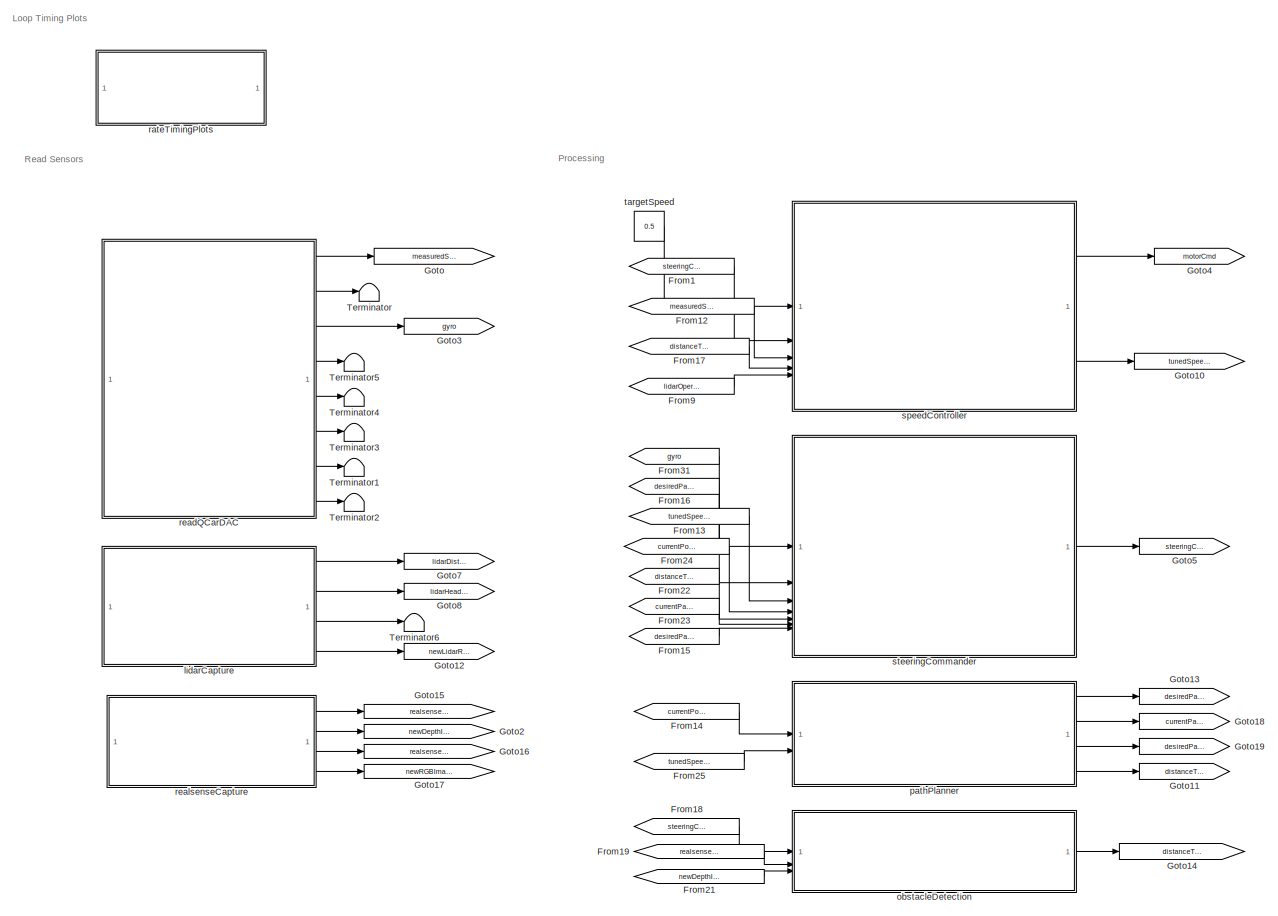
[diagram: root canvas - part 1/2, left side, full height]
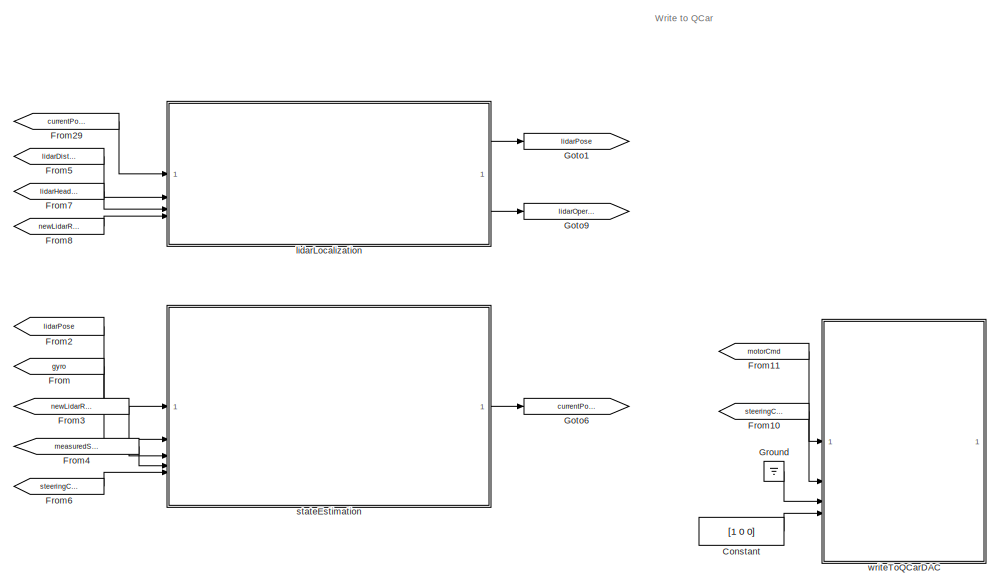
[diagram: root canvas - part 2/2, middle right region]
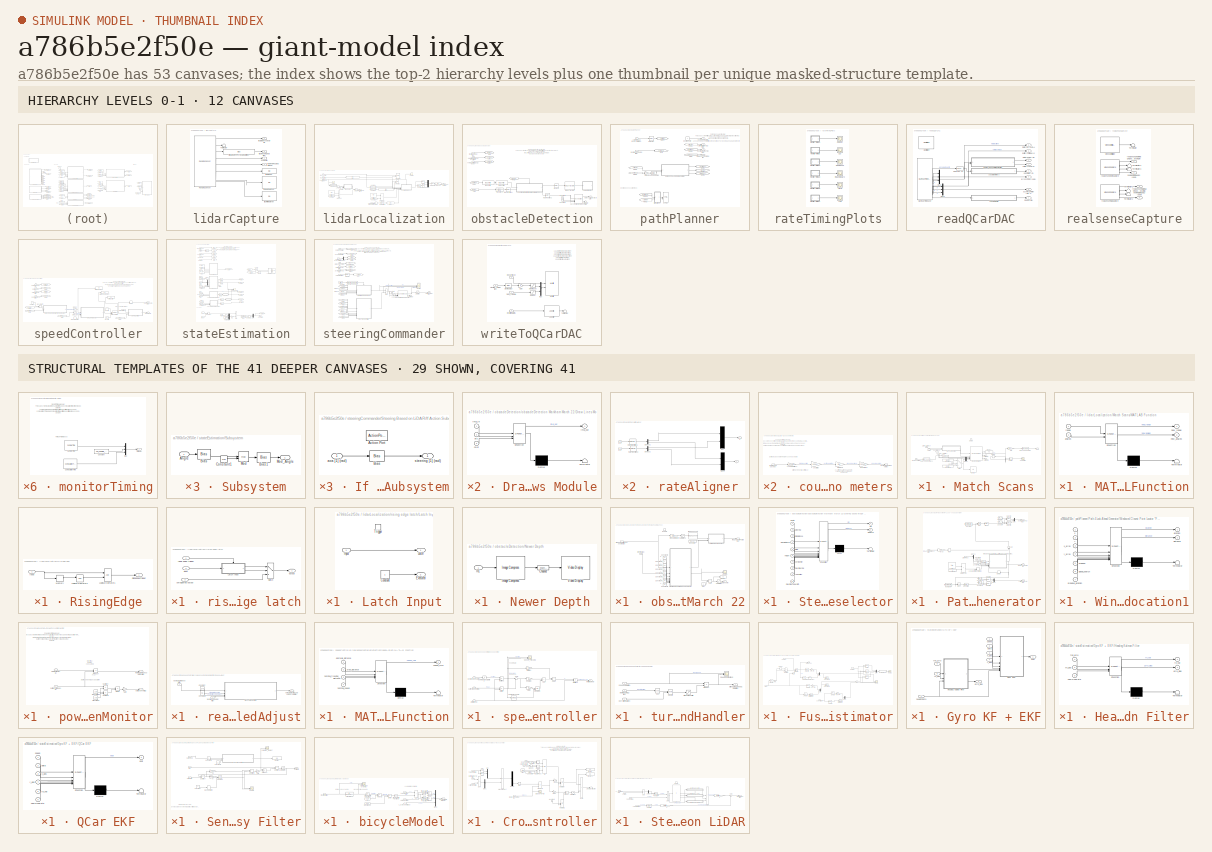
[diagram: thumbnail index - top-2 hierarchy levels (12 canvases) + 29 structural-template representatives of the remaining 41 canvases]
MODEL slx_a786b5e2f50e
KIND model
CONFIG AbsTol = auto
CONFIG EnableMultiTasking = on
CONFIG FixedStep = Controller_Sample_Time
CONFIG MaxStep = auto
CONFIG MinStep = auto
CONFIG RelTol = 1e-3
CONFIG SampleTimeConstraint = Unconstrained
CONFIG SolverName = ode1
CONFIG StartTime = 0.0
CONFIG StopTime = inf
BLOCK [Constant] Constant
  Value = [1 0 0]
BLOCK [From] From
  GotoTag = gyro
BLOCK [From] From1
  GotoTag = steeringCmd
BLOCK [From] From10
  GotoTag = steeringCmd
BLOCK [From] From11
  GotoTag = motorCmd
BLOCK [From] From12
  GotoTag = measuredSpeed
BLOCK [From] From13
  GotoTag = tunedSpeedCmd
BLOCK [From] From14
  GotoTag = currentPose
BLOCK [From] From15
  GotoTag = desiredPathXY
BLOCK [From] From16
  GotoTag = desiredPath
BLOCK [From] From17
  GotoTag = distanceToObstacle
BLOCK [From] From18
  GotoTag = steeringCmd
BLOCK [From] From19
  GotoTag = realsenseDepthImage
BLOCK [From] From2
  CloseFcn = tagdialog Close
  GotoTag = lidarPose
BLOCK [From] From21
  GotoTag = newDepthImage
BLOCK [From] From22
  GotoTag = distanceToPath
BLOCK [From] From23
  GotoTag = currentPathXY
BLOCK [From] From24
  GotoTag = currentPose
BLOCK [From] From25
  GotoTag = tunedSpeedCmd
BLOCK [From] From29
  GotoTag = currentPose
BLOCK [From] From3
  CloseFcn = tagdialog Close
  GotoTag = newLidarReading
BLOCK [From] From31
  GotoTag = gyro
BLOCK [From] From4
  GotoTag = measuredSpeed
BLOCK [From] From5
  GotoTag = lidarDistances
BLOCK [From] From6
  GotoTag = steeringCmd
BLOCK [From] From7
  GotoTag = lidarHeadings
BLOCK [From] From8
  GotoTag = newLidarReading
BLOCK [From] From9
  GotoTag = lidarOperatingFlag
BLOCK [Goto] Goto
  GotoTag = measuredSpeed
BLOCK [Goto] Goto1
  GotoTag = lidarPose
BLOCK [Goto] Goto10
  GotoTag = tunedSpeedCmd
BLOCK [Goto] Goto11
  GotoTag = distanceToPath
BLOCK [Goto] Goto12
  GotoTag = newLidarReading
BLOCK [Goto] Goto13
  GotoTag = desiredPath
BLOCK [Goto] Goto14
  GotoTag = distanceToObstacle
BLOCK [Goto] Goto15
  GotoTag = realsenseDepthImage
BLOCK [Goto] Goto16
  Commented = on
  GotoTag = realsenseRGBImage
BLOCK [Goto] Goto17
  Commented = on
  GotoTag = newRGBImage
BLOCK [Goto] Goto18
  GotoTag = currentPathXY
BLOCK [Goto] Goto19
  GotoTag = desiredPathXY
BLOCK [Goto] Goto2
  GotoTag = newDepthImage
BLOCK [Goto] Goto3
  GotoTag = gyro
BLOCK [Goto] Goto4
  GotoTag = motorCmd
BLOCK [Goto] Goto5
  GotoTag = steeringCmd
BLOCK [Goto] Goto6
  GotoTag = currentPose
BLOCK [Goto] Goto7
  GotoTag = lidarDistances
BLOCK [Goto] Goto8
  GotoTag = lidarHeadings
BLOCK [Goto] Goto9
  GotoTag = lidarOperatingFlag
BLOCK [Ground] Ground
BLOCK [Terminator] Terminator
BLOCK [Terminator] Terminator1
BLOCK [Terminator] Terminator2
BLOCK [Terminator] Terminator3
BLOCK [Terminator] Terminator4
BLOCK [Terminator] Terminator5
BLOCK [Terminator] Terminator6
BLOCK [SubSystem] lidarCapture
BLOCK [Reference] lidarCapture/Ranging Sensor  REF=quarc_library/Devices/Third-Party/Sensors/Ranging Sensor
  SourceBlock = quarc_library/Devices/Third-Party/Sensors/Ranging Sensor
  SourceProductName = QUARC Targets
  SourceType = Ranging Sensor
BLOCK [Terminator] lidarCapture/Terminator
BLOCK [Outport] lidarCapture/lidarDistances [var] (m)
  VectorParamsAs1DForOutWhenUnconnected = off
BLOCK [Display] lidarCapture/lidarFirmwareVer
  Decimation = 100
BLOCK [Display] lidarCapture/lidarHardwareVer
  Decimation = 100
BLOCK [Outport] lidarCapture/lidarHeading [var] (rad)
  Port = 2
  VectorParamsAs1DForOutWhenUnconnected = off
BLOCK [Display] lidarCapture/lidarModel
  Decimation = 100
BLOCK [Outport] lidarCapture/lidarNewReading [1] (bool)
  Port = 4
  VectorParamsAs1DForOutWhenUnconnected = off
BLOCK [Outport] lidarCapture/qual [var] (%)
  Port = 3
  VectorParamsAs1DForOutWhenUnconnected = off
BLOCK [Bias] lidarCapture/virtualLidarToPhysicalLidarOffset
  Bias = qcar2_virtual_to_physical_lidar_rotation
  SaturateOnIntegerOverflow = off
BLOCK [SubSystem] lidarLocalization
BLOCK [Bias] lidarLocalization/Bias
  Bias = qcar2_lidar_to_body_rotation
  SaturateOnIntegerOverflow = off
BLOCK [Bias] lidarLocalization/Bias2
  Bias = qcar2_lidar_to_map_rotation
  SaturateOnIntegerOverflow = off
BLOCK [Bias] lidarLocalization/Bias3
  Bias = -cal_pos
  SaturateOnIntegerOverflow = off
BLOCK [Reference] lidarLocalization/Body Frame  REF=quarc_library/Sinks/Figures/Polar Figure
  SourceBlock = quarc_library/Sinks/Figures/Polar Figure
  SourceProductName = QUARC Targets
  SourceType = Polar Figure
BLOCK [Bias] lidarLocalization/Calibration Bias
  Bias = cal_pos
  SaturateOnIntegerOverflow = off
BLOCK [Constant] lidarLocalization/Constant1
  Value = range_qcar2
BLOCK [Constant] lidarLocalization/Constant10
  Value = Initialization_Time
BLOCK [Constant] lidarLocalization/Constant3
BLOCK [Constant] lidarLocalization/Constant4
  Value = angles_qcar2
BLOCK [Constant] lidarLocalization/Constant5
  Value = 0
BLOCK [Constant] lidarLocalization/Constant6
  Value = Initialization_Time
BLOCK [Reference] lidarLocalization/Fixed Frame  REF=quarc_library/Sinks/Figures/Polar Figure
  SourceBlock = quarc_library/Sinks/Figures/Polar Figure
  SourceProductName = QUARC Targets
  SourceType = Polar Figure
BLOCK [RelationalOperator] lidarLocalization/GreaterThan
  InputSameDT = off
  Operator = >
  OutDataTypeStr = boolean
  RndMeth = Simplest
BLOCK [RelationalOperator] lidarLocalization/GreaterThan1
  InputSameDT = off
  Operator = <
  OutDataTypeStr = boolean
  RndMeth = Simplest
BLOCK [Inport] lidarLocalization/Heading [var] (rad)
  Port = 3
BLOCK [Reference] lidarLocalization/Inverse Modulus1  REF=quarc_library/Discontinuities/Inverse
Modulus
  SourceBlock = quarc_library/Discontinuities/Inverse\nModulus
  SourceProductName = QUARC Targets
  SourceType = Inverse Modulus
BLOCK [Outport] lidarLocalization/LidarOperatingFlag [1] (bool)
  Port = 2
BLOCK [SubSystem] lidarLocalization/Match Scans
BLOCK [Inport] lidarLocalization/Match Scans/Angles
  Port = 2
BLOCK [Constant] lidarLocalization/Match Scans/Constant
  Value = [6 6 2*pi]
BLOCK [Constant] lidarLocalization/Match Scans/Constant1
  Value = [1 1 pi/2]
BLOCK [Inport] lidarLocalization/Match Scans/Current_Distance
BLOCK [DataTypeConversion] lidarLocalization/Match Scans/Data Type Conversion
  RndMeth = Floor
  SaturateOnIntegerOverflow = off
BLOCK [DataTypeConversion] lidarLocalization/Match Scans/Data Type Conversion1
  RndMeth = Floor
  SaturateOnIntegerOverflow = off
BLOCK [Demux] lidarLocalization/Match Scans/Demux
  Outputs = 2
BLOCK [Display] lidarLocalization/Match Scans/Display
  Decimation = 1
BLOCK [Display] lidarLocalization/Match Scans/Display1
  Decimation = 1
BLOCK [EnablePort] lidarLocalization/Match Scans/Enable
  PropagateVarSize = During execution
BLOCK [Gain] lidarLocalization/Match Scans/Gain
  Gain = [1 -1 -1]
BLOCK [Gain] lidarLocalization/Match Scans/Gain1
  Gain = [1 -1 -1]
BLOCK [Reference] lidarLocalization/Match Scans/LIDAR Scan Match  REF=quarc_library/Image Processing/Generic/LIDAR Scan Match
  SourceBlock = quarc_library/Image Processing/Generic/LIDAR Scan Match
  SourceProductName = QUARC Targets
  SourceType = LIDAR Scan Match
BLOCK [SubSystem] lidarLocalization/Match Scans/MATLAB Function
  ErrorFcn = Stateflow.Translate.translate
  PermitHierarchicalResolution = ExplicitOnly
  SFBlockType = MATLAB Function
  TreatAsAtomicUnit = on
BLOCK [Demux] lidarLocalization/Match Scans/MATLAB Function/ Demux 
  Outputs = 1
BLOCK [S-Function] lidarLocalization/Match Scans/MATLAB Function/ SFunction 
  EnableBusSupport = off
  FunctionName = sf_sfun
  PortCounts = [2 3]
  SFcnIsStateOwnerBlock = off
  SFunctionDeploymentMode = off
  Tag = Stateflow S-Function 1
BLOCK [Terminator] lidarLocalization/Match Scans/MATLAB Function/ Terminator 
BLOCK [Inport] lidarLocalization/Match Scans/MATLAB Function/angles
  Port = 2
BLOCK [Outport] lidarLocalization/Match Scans/MATLAB Function/new_angles
  Port = 2
BLOCK [Outport] lidarLocalization/Match Scans/MATLAB Function/new_range
BLOCK [Inport] lidarLocalization/Match Scans/MATLAB Function/range
BLOCK [Memory] lidarLocalization/Match Scans/Memory
  InheritSampleTime = on
  InitialCondition = [0 0 0]
  LinearizeAsDelay = on
  LinearizeMemory = on
  NameLocation = top
BLOCK [Scope] lidarLocalization/Match Scans/Pose Deltas
  Floating = off
  NumInputPorts = 1
  ScopeSpecificationString = Simulink.scopes.TimeScopeBlockCfg('CurrentConfiguration', extmgr.ConfigurationSet(extmgr.Configuration('Core','General UI',true,'DisplayFullSourceName',false,'ShowMainToolbar',true),extmgr.Configuration('Sources','WiredSimulink',true,'DataLogging',false,'DataLoggingVariableName','ScopeData1','DataLoggingLimitDataPoints',true,'DataLoggingMaxPoints','5000','DataLoggingDecimateData',true,'DataLogging...<+1531ch>
BLOCK [Inport] lidarLocalization/Match Scans/Previous Estimate
  Port = 6
BLOCK [Inport] lidarLocalization/Match Scans/Ref_Angles
  Port = 4
BLOCK [Inport] lidarLocalization/Match Scans/Ref_Distance
  Port = 3
BLOCK [Sum] lidarLocalization/Match Scans/Subtract
  IconShape = rectangular
  Inputs = +-
BLOCK [Switch] lidarLocalization/Match Scans/Switch
  Criteria = u2 > Threshold
  InputSameDT = off
  SaturateOnIntegerOverflow = off
  Threshold = .5
BLOCK [Terminator] lidarLocalization/Match Scans/Terminator
BLOCK [Terminator] lidarLocalization/Match Scans/Terminator1
BLOCK [Inport] lidarLocalization/Match Scans/absolute_scan
  Port = 5
BLOCK [Outport] lidarLocalization/Match Scans/pose
BLOCK [Memory] lidarLocalization/Memory
BLOCK [Mux] lidarLocalization/Mux5
  DisplayOption = bar
  Inputs = 2
BLOCK [Product] lidarLocalization/Product
BLOCK [RateTransition] lidarLocalization/Rate Transition
BLOCK [RateTransition] lidarLocalization/Rate Transition1
BLOCK [SubSystem] lidarLocalization/RisingEdge
BLOCK [Inport] lidarLocalization/RisingEdge/Input
BLOCK [Logic] lidarLocalization/RisingEdge/Logical Operator1
  AllPortsSameDT = off
BLOCK [Logic] lidarLocalization/RisingEdge/Logical Operator2
  AllPortsSameDT = off
  Operator = NOT
BLOCK [Memory] lidarLocalization/RisingEdge/Memory
  InheritSampleTime = on
  LinearizeMemory = on
BLOCK [Outport] lidarLocalization/RisingEdge/RisingEdgeTrigger
  VectorParamsAs1DForOutWhenUnconnected = off
BLOCK [Scope] lidarLocalization/Scope
  Floating = off
  NumInputPorts = 1
  ScopeSpecificationString = Simulink.scopes.TimeScopeBlockCfg('CurrentConfiguration', extmgr.ConfigurationSet(extmgr.Configuration('Core','General UI',true,'DisplayFullSourceName',false,'ShowMainToolbar',true),extmgr.Configuration('Sources','WiredSimulink',true,'DataLogging',false,'DataLoggingVariableName','ScopeData4','DataLoggingLimitDataPoints',true,'DataLoggingMaxPoints','5000','DataLoggingDecimateData',true,'DataLogging...<+1531ch>
BLOCK [Selector] lidarLocalization/Selector1
  IndexOptions = Index vector (dialog)
  Indices = 3
  InputPortWidth = 3
  OutputSizes = 1
BLOCK [Selector] lidarLocalization/Selector2
  IndexOptions = Index vector (dialog)
  Indices = 1:2
  InputPortWidth = 3
  OutputSizes = 1
BLOCK [Reference] lidarLocalization/Time  REF=quarc_library/Sources/Time/Time
  SourceBlock = quarc_library/Sources/Time/Time
  SourceProductName = QUARC Targets
  SourceType = Time
BLOCK [Reference] lidarLocalization/Time1  REF=quarc_library/Sources/Time/Time
  SourceBlock = quarc_library/Sources/Time/Time
  SourceProductName = QUARC Targets
  SourceType = Time
BLOCK [Inport] lidarLocalization/distances [var] (m)
  Port = 2
BLOCK [Outport] lidarLocalization/lidarPose [x,y,heading] (m,m,rad)
BLOCK [Scope] lidarLocalization/newLidar
  Floating = off
  NumInputPorts = 1
  ScopeSpecificationString = Simulink.scopes.TimeScopeBlockCfg('CurrentConfiguration', extmgr.ConfigurationSet(extmgr.Configuration('Core','General UI',true,'DisplayFullSourceName',false,'ShowMainToolbar',true),extmgr.Configuration('Sources','WiredSimulink',true,'DataLogging',false,'DataLoggingVariableName','ScopeData','DataLoggingLimitDataPoints',false,'DataLoggingMaxPoints','5000','DataLoggingDecimateData',false,'DataLoggin...<+1534ch>  <repeated x16 — deduplicated; at blocks: newLidar, Scope, CSI, Image Displays, LCD, LiDAR, RealSense, Speed_Tracking, Speed Comparison, Heading, Heading Comparison, Correction_Weight, steering servo dynamics, distanceToPath>
BLOCK [Inport] lidarLocalization/newLidarReading [1] (bool)
  Port = 4
BLOCK [Inport] lidarLocalization/previousEstimate [3] (x,y,heading)
BLOCK [SubSystem] lidarLocalization/rising edge latch
BLOCK [SubSystem] lidarLocalization/rising edge latch/Latch Input
  TreatAsAtomicUnit = on
BLOCK [Constant] lidarLocalization/rising edge latch/Latch Input/Constant
BLOCK [Outport] lidarLocalization/rising edge latch/Latch Input/Executed
  Port = 2
  VectorParamsAs1DForOutWhenUnconnected = off
BLOCK [Inport] lidarLocalization/rising edge latch/Latch Input/Input
BLOCK [Outport] lidarLocalization/rising edge latch/Latch Input/Latch
  VectorParamsAs1DForOutWhenUnconnected = off
BLOCK [TriggerPort] lidarLocalization/rising edge latch/Latch Input/Trigger
  StatesWhenEnabling = held
  VariantControl = (inherit)
BLOCK [Switch] lidarLocalization/rising edge latch/Switch
  InputSameDT = off
  SaturateOnIntegerOverflow = off
  Threshold = 0.5
BLOCK [Inport] lidarLocalization/rising edge latch/input
  Port = 2
BLOCK [Outport] lidarLocalization/rising edge latch/output
  VectorParamsAs1DForOutWhenUnconnected = off
BLOCK [Inport] lidarLocalization/rising edge latch/rising edge trigger
BLOCK [Inport] lidarLocalization/rising edge latch/untriggered output
  Port = 3
BLOCK [SubSystem] obstacleDetection
  Commented = on
BLOCK [Constant] obstacleDetection/Constant8
  Value = 50
BLOCK [Constant] obstacleDetection/Constant9
BLOCK [From] obstacleDetection/From
  GotoTag = steeringCmd
BLOCK [From] obstacleDetection/From1
  GotoTag = newDepthImage
BLOCK [From] obstacleDetection/From2
  GotoTag = depthImage
BLOCK [Goto] obstacleDetection/Goto
  GotoTag = steeringCmd
BLOCK [Goto] obstacleDetection/Goto1
  GotoTag = depthImage
BLOCK [Goto] obstacleDetection/Goto2
  GotoTag = newDepthImage
BLOCK [Reference] obstacleDetection/Image Filter  REF=quarc_library/Image Processing/Generic/Image Filter
  AttributesFormatString = (%<filter_type>)
  SourceBlock = quarc_library/Image Processing/Generic/Image Filter
  SourceProductName = QUARC Targets
  SourceType = Image Filter
BLOCK [Reference] obstacleDetection/Image Filter1  REF=quarc_library/Image Processing/Generic/Image Filter
  AttributesFormatString = (%<filter_type>)
  SourceBlock = quarc_library/Image Processing/Generic/Image Filter
  SourceProductName = QUARC Targets
  SourceType = Image Filter
BLOCK [Reference] obstacleDetection/Image Transform  REF=quarc_library/Image Processing/Generic/Image Transform
  AttributesFormatString = (%<algorithm>)
  SourceBlock = quarc_library/Image Processing/Generic/Image Transform
  SourceProductName = QUARC Targets
  SourceType = Image Transform
BLOCK [SubSystem] obstacleDetection/Newer Depth
  CopyFcn = set_param(gcbh, 'UserData', gcb);\nset_param(gcbh, 'LinkStatus', 'none');
  LoadFcn = set_param(gcbh, 'UserData', gcb);
  NameChangeFcn = video_display_show([get_param(gcbh, 'UserData'), '/Video Display'], 'rename', [gcb, '/Video Display']);\nvideo_display_show([gcb, '/Video Display'], 'add', gcb);\nset_param(gcbh, 'UserData', gcb);
  OpenFcn = video_display_show([gcb, '/Video Display'], 'show', gcb);
  PreDeleteFcn = video_display_show([gcb, '/Video Display'], 'delete');
  StartFcn = video_display_show([gcb, '/Video Display'], 'add', gcb);
  UndoDeleteFcn = set_param(gcbh, 'UserData', gcb);
BLOCK [Reference] obstacleDetection/Newer Depth/Channel  REF=quarc_library/Signal Routing/Channel
  SourceBlock = quarc_library/Signal Routing/Channel
  SourceProductName = QUARC Targets
  SourceType = Channel
BLOCK [Reference] obstacleDetection/Newer Depth/Image Compress  REF=quarc_library/Image Processing/Generic/Image Compress
  AttributesFormatString = (%<algorithm>)
  SourceBlock = quarc_library/Image Processing/Generic/Image Compress
  SourceProductName = QUARC Targets
  SourceType = Image Compress
BLOCK [Inport] obstacleDetection/Newer Depth/In1
BLOCK [Reference] obstacleDetection/Newer Depth/Video Display  REF=quarc_library/Multimedia/Video Display
  SourceBlock = quarc_library/Multimedia/Video Display
  SourceProductName = QUARC Targets
  SourceType = Video Display
  Tag = ACC_VIRTUAL_Self_Driving_v2/obstacleDetection/Newer Depth/Video Display
  UserDataPersistent = on
BLOCK [RateTransition] obstacleDetection/Rate Transition2
BLOCK [RateTransition] obstacleDetection/Rate Transition4
BLOCK [Reference] obstacleDetection/Second-Order Low-Pass Filter2  REF=quarc_library/Continuous/Second-Order
Low-Pass Filter
  SourceBlock = quarc_library/Continuous/Second-Order\nLow-Pass Filter
  SourceProductName = QUARC Targets
  SourceType = Second-Order Low-Pass Filter
BLOCK [Terminator] obstacleDetection/Terminator
BLOCK [TransferFcn] obstacleDetection/Transfer Fcn
  Denominator = [1 10]
  Numerator = [10]
BLOCK [Inport] obstacleDetection/depthImage [360 x 640] (uint8)
  Port = 2
BLOCK [Outport] obstacleDetection/distanceToObstacle [1] (m)
BLOCK [Inport] obstacleDetection/newDepthImage [1] (bool)
  Port = 3
BLOCK [SubSystem] obstacleDetection/obstacleDetection Markham March 22
BLOCK [Sum] obstacleDetection/obstacleDetection Markham March 22/Add
  IconShape = rectangular
BLOCK [Constant] obstacleDetection/obstacleDetection Markham March 22/Bias
  Value = 0
BLOCK [Constant] obstacleDetection/obstacleDetection Markham March 22/Box Color
  Value = [255 0 0]
BLOCK [Constant] obstacleDetection/obstacleDetection Markham March 22/Constant1
  Value = 200
BLOCK [Constant] obstacleDetection/obstacleDetection Markham March 22/Constant2
  Value = .15
BLOCK [Constant] obstacleDetection/obstacleDetection Markham March 22/Constant3
BLOCK [Constant] obstacleDetection/obstacleDetection Markham March 22/Constant4
  Value = 50
BLOCK [Constant] obstacleDetection/obstacleDetection Markham March 22/Constant5
  Value = 0.5
BLOCK [Constant] obstacleDetection/obstacleDetection Markham March 22/Constant6
  Value = 0.5
BLOCK [Constant] obstacleDetection/obstacleDetection Markham March 22/Constant7
  Value = 0.6
BLOCK [Constant] obstacleDetection/obstacleDetection Markham March 22/Constant8
  Value = 0.6
BLOCK [Display] obstacleDetection/obstacleDetection Markham March 22/Display
  Decimation = 1
BLOCK [SubSystem] obstacleDetection/obstacleDetection Markham March 22/Draw Lines Module
  ErrorFcn = Stateflow.Translate.translate
  PermitHierarchicalResolution = ExplicitOnly
  SFBlockType = MATLAB Function
  TreatAsAtomicUnit = on
BLOCK [Demux] obstacleDetection/obstacleDetection Markham March 22/Draw Lines Module/ Demux 
  Outputs = 1
BLOCK [S-Function] obstacleDetection/obstacleDetection Markham March 22/Draw Lines Module/ SFunction 
  EnableBusSupport = off
  FunctionName = sf_sfun
  PortCounts = [3 2]
  SFcnIsStateOwnerBlock = off
  SFunctionDeploymentMode = off
  Tag = Stateflow S-Function 17
BLOCK [Terminator] obstacleDetection/obstacleDetection Markham March 22/Draw Lines Module/ Terminator 
BLOCK [Inport] obstacleDetection/obstacleDetection Markham March 22/Draw Lines Module/color
  Port = 3
BLOCK [Inport] obstacleDetection/obstacleDetection Markham March 22/Draw Lines Module/img_in
BLOCK [Outport] obstacleDetection/obstacleDetection Markham March 22/Draw Lines Module/img_out
  VectorParamsAs1DForOutWhenUnconnected = off
BLOCK [Inport] obstacleDetection/obstacleDetection Markham March 22/Draw Lines Module/pts
  Port = 2
BLOCK [EnablePort] obstacleDetection/obstacleDetection Markham March 22/Enable
  PropagateVarSize = During execution
BLOCK [Reference] obstacleDetection/obstacleDetection Markham March 22/Image Convert  REF=quarc_library/Image Processing/Generic/Image Convert
  AttributesFormatString = (%<input_format>)
  SourceBlock = quarc_library/Image Processing/Generic/Image Convert
  SourceProductName = QUARC Targets
  SourceType = Image Convert
BLOCK [Saturate] obstacleDetection/obstacleDetection Markham March 22/Saturation
  LowerLimit = 0.05
  UpperLimit = 2
BLOCK [Saturate] obstacleDetection/obstacleDetection Markham March 22/Saturation1
  LowerLimit = 0
  UpperLimit = 1
BLOCK [Scope] obstacleDetection/obstacleDetection Markham March 22/Scope
  Floating = off
  NumInputPorts = 1
BLOCK [SubSystem] obstacleDetection/obstacleDetection Markham March 22/Steering based image subselector
  ErrorFcn = Stateflow.Translate.translate
  PermitHierarchicalResolution = ExplicitOnly
  SFBlockType = MATLAB Function
  TreatAsAtomicUnit = on
BLOCK [Demux] obstacleDetection/obstacleDetection Markham March 22/Steering based image subselector/ Demux 
  Outputs = 1
BLOCK [S-Function] obstacleDetection/obstacleDetection Markham March 22/Steering based image subselector/ SFunction 
  EnableBusSupport = off
  FunctionName = sf_sfun
  PortCounts = [10 3]
  SFcnIsStateOwnerBlock = off
  SFunctionDeploymentMode = off
  Tag = Stateflow S-Function 21
BLOCK [Terminator] obstacleDetection/obstacleDetection Markham March 22/Steering based image subselector/ Terminator 
BLOCK [Inport] obstacleDetection/obstacleDetection Markham March 22/Steering based image subselector/depth
BLOCK [Outport] obstacleDetection/obstacleDetection Markham March 22/Steering based image subselector/distance
  Port = 2
  VectorParamsAs1DForOutWhenUnconnected = off
BLOCK [Inport] obstacleDetection/obstacleDetection Markham March 22/Steering based image subselector/height
  Port = 6
BLOCK [Inport] obstacleDetection/obstacleDetection Markham March 22/Steering based image subselector/maxDistance
  Port = 4
BLOCK [Inport] obstacleDetection/obstacleDetection Markham March 22/Steering based image subselector/maxSteering
  Port = 8
BLOCK [Inport] obstacleDetection/obstacleDetection Markham March 22/Steering based image subselector/maxSteeringWidth
  Port = 10
BLOCK [Inport] obstacleDetection/obstacleDetection Markham March 22/Steering based image subselector/minDistance
  Port = 3
BLOCK [Outport] obstacleDetection/obstacleDetection Markham March 22/Steering based image subselector/pts
  VectorParamsAs1DForOutWhenUnconnected = off
BLOCK [Inport] obstacleDetection/obstacleDetection Markham March 22/Steering based image subselector/reduction
  Port = 9
BLOCK [Inport] obstacleDetection/obstacleDetection Markham March 22/Steering based image subselector/steering
  Port = 2
BLOCK [Inport] obstacleDetection/obstacleDetection Markham March 22/Steering based image subselector/vertCenter
  Port = 7
BLOCK [Inport] obstacleDetection/obstacleDetection Markham March 22/Steering based image subselector/width
  Port = 5
BLOCK [Outport] obstacleDetection/obstacleDetection Markham March 22/distance (m)
  Port = 2
  VectorParamsAs1DForOutWhenUnconnected = off
BLOCK [Inport] obstacleDetection/obstacleDetection Markham March 22/imageDepth [640 x 360] (single)
BLOCK [Outport] obstacleDetection/obstacleDetection Markham March 22/imageDepthForDisplay
  VectorParamsAs1DForOutWhenUnconnected = off
BLOCK [Gain] obstacleDetection/obstacleDetection Markham March 22/max white for 8m
  Gain = 1/2.5
  NameLocation = top
BLOCK [Inport] obstacleDetection/obstacleDetection Markham March 22/steering (rad)
  Port = 2
BLOCK [Inport] obstacleDetection/steeringCmd [1] (rad)
BLOCK [RateTransition] obstacleDetection/to 16Hz4
  NameLocation = top
  OutPortSampleTime = ImageDisplay_Sample_Time
BLOCK [SubSystem] pathPlanner
BLOCK [From] pathPlanner/From
  GotoTag = distanceToPath
BLOCK [From] pathPlanner/From1
  GotoTag = currentPathXY
BLOCK [From] pathPlanner/From2
  GotoTag = desiredSpeed
BLOCK [From] pathPlanner/From3
  CloseFcn = tagdialog Close
  GotoTag = currentXY
BLOCK [From] pathPlanner/From4
  GotoTag = desiredPathXY
BLOCK [From] pathPlanner/From45
  CloseFcn = tagdialog Close
  GotoTag = desiredPathXY
BLOCK [From] pathPlanner/From9
  CloseFcn = tagdialog Close
  GotoTag = currentXY
BLOCK [Gain] pathPlanner/Gain2
  Gain = 0.4
BLOCK [Goto] pathPlanner/Goto
  GotoTag = desiredSpeed
BLOCK [Goto] pathPlanner/Goto1
  GotoTag = desiredPathXY
BLOCK [Goto] pathPlanner/Goto2
  GotoTag = currentPathXY
BLOCK [Goto] pathPlanner/Goto3
  GotoTag = distanceToPath
BLOCK [Goto] pathPlanner/Goto4
  GotoTag = currentXY
BLOCK [SubSystem] pathPlanner/Path 4  Look Ahead Generator
BLOCK [Bias] pathPlanner/Path 4  Look Ahead Generator/Bias3
  Bias = 1
  SaturateOnIntegerOverflow = off
BLOCK [Constant] pathPlanner/Path 4  Look Ahead Generator/Constant
  Value = path_x4
BLOCK [Constant] pathPlanner/Path 4  Look Ahead Generator/Constant1
  Value = length(path_x4)
BLOCK [Constant] pathPlanner/Path 4  Look Ahead Generator/Constant10
  Value = 10
BLOCK [Constant] pathPlanner/Path 4  Look Ahead Generator/Constant11
BLOCK [Constant] pathPlanner/Path 4  Look Ahead Generator/Constant2
  Value = path_x4
BLOCK [Constant] pathPlanner/Path 4  Look Ahead Generator/Constant3
  Value = path_y4
BLOCK [Constant] pathPlanner/Path 4  Look Ahead Generator/Constant4
  Value = path_y4
BLOCK [Constant] pathPlanner/Path 4  Look Ahead Generator/Constant5
  Value = 100
BLOCK [Constant] pathPlanner/Path 4  Look Ahead Generator/Constant6
  Value = path_x4
BLOCK [Constant] pathPlanner/Path 4  Look Ahead Generator/Constant7
  Value = length(path_x4)
BLOCK [Constant] pathPlanner/Path 4  Look Ahead Generator/Constant8
  Value = path_y4
BLOCK [Demux] pathPlanner/Path 4  Look Ahead Generator/Demux1
  Outputs = 2
BLOCK [Rounding] pathPlanner/Path 4  Look Ahead Generator/Floor
BLOCK [RelationalOperator] pathPlanner/Path 4  Look Ahead Generator/GreaterThan
  InputSameDT = off
  Operator = <
  OutDataTypeStr = boolean
  RndMeth = Simplest
BLOCK [ManualSwitch] pathPlanner/Path 4  Look Ahead Generator/Manual Switch
  CurrentSetting = 0
BLOCK [Memory] pathPlanner/Path 4  Look Ahead Generator/Memory
  InheritSampleTime = on
  InitialCondition = 1
  LinearizeAsDelay = on
  LinearizeMemory = on
  NameLocation = top
BLOCK [Math] pathPlanner/Path 4  Look Ahead Generator/Mod
  Operator = mod
BLOCK [Math] pathPlanner/Path 4  Look Ahead Generator/Mod1
  Operator = mod
BLOCK [Mux] pathPlanner/Path 4  Look Ahead Generator/Mux
  DisplayOption = bar
  Inputs = 2
BLOCK [Mux] pathPlanner/Path 4  Look Ahead Generator/Mux1
  DisplayOption = bar
  Inputs = 2
BLOCK [Selector] pathPlanner/Path 4  Look Ahead Generator/Selector1
  IndexOptions = Index vector (port)
  Indices = [1 3]
  InputPortWidth = length(path_x4)
  OutputSizes = 1
BLOCK [Selector] pathPlanner/Path 4  Look Ahead Generator/Selector2
  IndexOptions = Index vector (port)
  Indices = [1 3]
  InputPortWidth = length(path_x4)
  OutputSizes = 1
BLOCK [Selector] pathPlanner/Path 4  Look Ahead Generator/Selector3
  IndexOptions = Index vector (port)
  Indices = [1 3]
  InputPortWidth = length(path_x4)
  OutputSizes = 1
BLOCK [Selector] pathPlanner/Path 4  Look Ahead Generator/Selector4
  IndexOptions = Index vector (port)
  Indices = [1 3]
  InputPortWidth = length(path_x4)
  OutputSizes = 1
BLOCK [Sum] pathPlanner/Path 4  Look Ahead Generator/Sum
  IconShape = rectangular
  NameLocation = right
BLOCK [Reference] pathPlanner/Path 4  Look Ahead Generator/Time  REF=quarc_library/Sources/Time/Time
  SourceBlock = quarc_library/Sources/Time/Time
  SourceProductName = QUARC Targets
  SourceType = Time
BLOCK [SubSystem] pathPlanner/Path 4  Look Ahead Generator/Windowed Closest Point Locator *Feedback the location1
  ErrorFcn = Stateflow.Translate.translate
  PermitHierarchicalResolution = ExplicitOnly
  SFBlockType = MATLAB Function
  TreatAsAtomicUnit = on
BLOCK [Demux] pathPlanner/Path 4  Look Ahead Generator/Windowed Closest Point Locator *Feedback the location1/ Demux 
  Outputs = 1
BLOCK [S-Function] pathPlanner/Path 4  Look Ahead Generator/Windowed Closest Point Locator *Feedback the location1/ SFunction 
  EnableBusSupport = off
  FunctionName = sf_sfun
  PortCounts = [7 3]
  SFcnIsStateOwnerBlock = off
  SFunctionDeploymentMode = off
  Tag = Stateflow S-Function 3
BLOCK [Terminator] pathPlanner/Path 4  Look Ahead Generator/Windowed Closest Point Locator *Feedback the location1/ Terminator 
BLOCK [Outport] pathPlanner/Path 4  Look Ahead Generator/Windowed Closest Point Locator *Feedback the location1/distance
  Port = 2
  VectorParamsAs1DForOutWhenUnconnected = off
BLOCK [Inport] pathPlanner/Path 4  Look Ahead Generator/Windowed Closest Point Locator *Feedback the location1/global_search
  Port = 6
BLOCK [Outport] pathPlanner/Path 4  Look Ahead Generator/Windowed Closest Point Locator *Feedback the location1/location
  VectorParamsAs1DForOutWhenUnconnected = off
BLOCK [Inport] pathPlanner/Path 4  Look Ahead Generator/Windowed Closest Point Locator *Feedback the location1/previous_location
  Port = 7
BLOCK [Inport] pathPlanner/Path 4  Look Ahead Generator/Windowed Closest Point Locator *Feedback the location1/window
  Port = 5
BLOCK [Inport] pathPlanner/Path 4  Look Ahead Generator/Windowed Closest Point Locator *Feedback the location1/x
BLOCK [Inport] pathPlanner/Path 4  Look Ahead Generator/Windowed Closest Point Locator *Feedback the location1/x_array
  Port = 3
BLOCK [Inport] pathPlanner/Path 4  Look Ahead Generator/Windowed Closest Point Locator *Feedback the location1/y
  Port = 2
BLOCK [Inport] pathPlanner/Path 4  Look Ahead Generator/Windowed Closest Point Locator *Feedback the location1/y_array
  Port = 4
BLOCK [Outport] pathPlanner/Path 4  Look Ahead Generator/currentPathXY [2] (m,m)
  Port = 2
BLOCK [Inport] pathPlanner/Path 4  Look Ahead Generator/currentPose
BLOCK [Outport] pathPlanner/Path 4  Look Ahead Generator/desiredPathXY [2] (m,m)
BLOCK [Outport] pathPlanner/Path 4  Look Ahead Generator/distanceToPath [1] (m)
  Port = 3
BLOCK [Bias] pathPlanner/Path 4  Look Ahead Generator/indexBias
  Bias = 1
  SaturateOnIntegerOverflow = off
BLOCK [Inport] pathPlanner/Path 4  Look Ahead Generator/lookAheadDistance [1] (m)
  Port = 2
BLOCK [Gain] pathPlanner/Path 4  Look Ahead Generator/m->cm
  Gain = 100
BLOCK [Selector] pathPlanner/Selector
  IndexOptions = Index vector (dialog)
  Indices = [1 2]
  InputPortWidth = 3
  OutputSizes = 1
BLOCK [Reference] pathPlanner/XY Plot  REF=quarc_library/Sinks/Figures/XY Figure
  SourceBlock = quarc_library/Sinks/Figures/XY Figure
  SourceProductName = QUARC Targets
  SourceType = XY Figure
BLOCK [Outport] pathPlanner/currentPathXY [2] (m,m)
  Port = 2
BLOCK [Inport] pathPlanner/currentPose [x,y,heading] (m,m,rad)
BLOCK [Constant] pathPlanner/desiredPath
  Value = 4
BLOCK [Outport] pathPlanner/desiredPath [1] (int)
BLOCK [Outport] pathPlanner/desiredPathXY [2] (m,m)
  Port = 3
BLOCK [Inport] pathPlanner/desiredSpeed [1] (m//s)
  Port = 2
BLOCK [Outport] pathPlanner/distanceToPath [1] (m)
  Port = 4
BLOCK [Bias] pathPlanner/look ahead bias
  Bias = 0.3
  SaturateOnIntegerOverflow = off
BLOCK [SubSystem] pathPlanner/rateAligner
BLOCK [Demux] pathPlanner/rateAligner/Demux1
  Outputs = 2
BLOCK [Demux] pathPlanner/rateAligner/Demux2
  Outputs = 2
BLOCK [Mux] pathPlanner/rateAligner/Mux
  DisplayOption = bar
  Inputs = 2
BLOCK [Mux] pathPlanner/rateAligner/Mux1
  DisplayOption = bar
  Inputs = 2
BLOCK [RateTransition] pathPlanner/rateAligner/Rate Transition1
  OutPortSampleTime = ImageDisplay_Sample_Time
BLOCK [RateTransition] pathPlanner/rateAligner/Rate Transition2
  OutPortSampleTime = ImageDisplay_Sample_Time
BLOCK [Outport] pathPlanner/rateAligner/x
BLOCK [Inport] pathPlanner/rateAligner/xy 1
BLOCK [Inport] pathPlanner/rateAligner/xy 2
  Port = 2
BLOCK [Outport] pathPlanner/rateAligner/y
  Port = 2
BLOCK [SubSystem] rateTimingPlots
BLOCK [Scope] rateTimingPlots/CSI
  Floating = off
  NumInputPorts = 1
BLOCK [Scope] rateTimingPlots/Control
  Floating = off
  NumInputPorts = 1
  ScopeSpecificationString = Simulink.scopes.TimeScopeBlockCfg('CurrentConfiguration', extmgr.ConfigurationSet(extmgr.Configuration('Core','General UI',true,'DisplayFullSourceName',false,'ShowMainToolbar',true,'FigureColor',[0.129411764705882 0.129411764705882 0.129411764705882]),extmgr.Configuration('Sources','WiredSimulink',true,'DataLogging',false,'DataLoggingVariableName','ScopeData','DataLoggingLimitDataPoints',false,'Da...<+2574ch>
BLOCK [Scope] rateTimingPlots/Image Displays
  Floating = off
  NumInputPorts = 1
BLOCK [Scope] rateTimingPlots/LCD
  Floating = off
  NumInputPorts = 1
BLOCK [Scope] rateTimingPlots/LiDAR
  Floating = off
  NumInputPorts = 1
BLOCK [Scope] rateTimingPlots/RealSense
  Floating = off
  NumInputPorts = 1
BLOCK [SubSystem] rateTimingPlots/monitorTiming
BLOCK [Reference] rateTimingPlots/monitorTiming/Computation Time  REF=quarc_library/Sources/Time/Computation Time
  SourceBlock = quarc_library/Sources/Time/Computation Time
  SourceProductName = QUARC Targets
  SourceType = Computation Time
BLOCK [Constant] rateTimingPlots/monitorTiming/Constant
  SampleTime = -1
  Value = CSI_Sample_Time
BLOCK [Mux] rateTimingPlots/monitorTiming/Mux
  DisplayOption = bar
  Inputs = 3
BLOCK [Reference] rateTimingPlots/monitorTiming/Sample Time  REF=quarc_library/Sources/Time/Sample Time
  Priority = -99
  SourceBlock = quarc_library/Sources/Time/Sample Time
  SourceProductName = QUARC Targets
  SourceType = Sample Time
BLOCK [Outport] rateTimingPlots/monitorTiming/Timing (s)
  VectorParamsAs1DForOutWhenUnconnected = off
BLOCK [SubSystem] rateTimingPlots/monitorTiming1
BLOCK [Reference] rateTimingPlots/monitorTiming1/Computation Time  REF=quarc_library/Sources/Time/Computation Time
  SourceBlock = quarc_library/Sources/Time/Computation Time
  SourceProductName = QUARC Targets
  SourceType = Computation Time
BLOCK [Constant] rateTimingPlots/monitorTiming1/Constant
  SampleTime = -1
  Value = qc_get_step_size
BLOCK [Mux] rateTimingPlots/monitorTiming1/Mux
  DisplayOption = bar
  Inputs = 3
BLOCK [Reference] rateTimingPlots/monitorTiming1/Sample Time  REF=quarc_library/Sources/Time/Sample Time
  Priority = -99
  SourceBlock = quarc_library/Sources/Time/Sample Time
  SourceProductName = QUARC Targets
  SourceType = Sample Time
BLOCK [Outport] rateTimingPlots/monitorTiming1/Timing (s)
  VectorParamsAs1DForOutWhenUnconnected = off
BLOCK [SubSystem] rateTimingPlots/monitorTiming2
BLOCK [Reference] rateTimingPlots/monitorTiming2/Computation Time  REF=quarc_library/Sources/Time/Computation Time
  SourceBlock = quarc_library/Sources/Time/Computation Time
  SourceProductName = QUARC Targets
  SourceType = Computation Time
BLOCK [Constant] rateTimingPlots/monitorTiming2/Constant
  SampleTime = -1
  Value = RealSense_Sample_Time
BLOCK [Mux] rateTimingPlots/monitorTiming2/Mux
  DisplayOption = bar
  Inputs = 3
BLOCK [Reference] rateTimingPlots/monitorTiming2/Sample Time  REF=quarc_library/Sources/Time/Sample Time
  Priority = -99
  SourceBlock = quarc_library/Sources/Time/Sample Time
  SourceProductName = QUARC Targets
  SourceType = Sample Time
BLOCK [Outport] rateTimingPlots/monitorTiming2/Timing (s)
  VectorParamsAs1DForOutWhenUnconnected = off
BLOCK [SubSystem] rateTimingPlots/monitorTiming3
BLOCK [Reference] rateTimingPlots/monitorTiming3/Computation Time  REF=quarc_library/Sources/Time/Computation Time
  SourceBlock = quarc_library/Sources/Time/Computation Time
  SourceProductName = QUARC Targets
  SourceType = Computation Time
BLOCK [Constant] rateTimingPlots/monitorTiming3/Constant
  SampleTime = -1
  Value = ImageDisplay_Sample_Time
BLOCK [Mux] rateTimingPlots/monitorTiming3/Mux
  DisplayOption = bar
  Inputs = 3
BLOCK [Reference] rateTimingPlots/monitorTiming3/Sample Time  REF=quarc_library/Sources/Time/Sample Time
  Priority = -99
  SourceBlock = quarc_library/Sources/Time/Sample Time
  SourceProductName = QUARC Targets
  SourceType = Sample Time
BLOCK [Outport] rateTimingPlots/monitorTiming3/Timing (s)
  VectorParamsAs1DForOutWhenUnconnected = off
BLOCK [SubSystem] rateTimingPlots/monitorTiming5
BLOCK [Reference] rateTimingPlots/monitorTiming5/Computation Time  REF=quarc_library/Sources/Time/Computation Time
  SourceBlock = quarc_library/Sources/Time/Computation Time
  SourceProductName = QUARC Targets
  SourceType = Computation Time
BLOCK [Constant] rateTimingPlots/monitorTiming5/Constant
  SampleTime = -1
  Value = LiDAR_Sample_Time
BLOCK [Mux] rateTimingPlots/monitorTiming5/Mux
  DisplayOption = bar
  Inputs = 3
BLOCK [Reference] rateTimingPlots/monitorTiming5/Sample Time  REF=quarc_library/Sources/Time/Sample Time
  Priority = -99
  SourceBlock = quarc_library/Sources/Time/Sample Time
  SourceProductName = QUARC Targets
  SourceType = Sample Time
BLOCK [Outport] rateTimingPlots/monitorTiming5/Timing (s)
  VectorParamsAs1DForOutWhenUnconnected = off
BLOCK [SubSystem] rateTimingPlots/monitorTiming7
BLOCK [Reference] rateTimingPlots/monitorTiming7/Computation Time  REF=quarc_library/Sources/Time/Computation Time
  SourceBlock = quarc_library/Sources/Time/Computation Time
  SourceProductName = QUARC Targets
  SourceType = Computation Time
BLOCK [Constant] rateTimingPlots/monitorTiming7/Constant
  SampleTime = -1
BLOCK [Mux] rateTimingPlots/monitorTiming7/Mux
  DisplayOption = bar
  Inputs = 3
BLOCK [Reference] rateTimingPlots/monitorTiming7/Sample Time  REF=quarc_library/Sources/Time/Sample Time
  Priority = -99
  SourceBlock = quarc_library/Sources/Time/Sample Time
  SourceProductName = QUARC Targets
  SourceType = Sample Time
BLOCK [Outport] rateTimingPlots/monitorTiming7/Timing (s)
  VectorParamsAs1DForOutWhenUnconnected = off
BLOCK [SubSystem] readQCarDAC
BLOCK [Reference] readQCarDAC/HIL Initialize  REF=quarc_library/Data Acquisition/Generic/Configuration/HIL Initialize
  AttributesFormatString = %<object_name> (%<board_type>-%<board_number>)
  SourceBlock = quarc_library/Data Acquisition/Generic/Configuration/HIL Initialize
  SourceProductName = QUARC Targets
  SourceType = HIL Initialize
  UserDataPersistent = on
BLOCK [Reference] readQCarDAC/HIL Read Timebase  REF=quarc_library/Data Acquisition/Generic/Timebases/HIL Read
Timebase
  AttributesFormatString = (%<object_name>)
  SourceBlock = quarc_library/Data Acquisition/Generic/Timebases/HIL Read\nTimebase
  SourceProductName = QUARC Targets
  SourceType = HIL Read Timebase
  UserDataPersistent = on
BLOCK [Mux] readQCarDAC/Mux1
  DisplayOption = bar
  Inputs = 3
BLOCK [Mux] readQCarDAC/Mux2
  DisplayOption = bar
  Inputs = 3
BLOCK [Outport] readQCarDAC/Speed (m//s)
  VectorParamsAs1DForOutWhenUnconnected = off
BLOCK [Reference] readQCarDAC/Unwrap 2^24  REF=quarc_library/Discontinuities/Inverse
Modulus
  SourceBlock = quarc_library/Discontinuities/Inverse\nModulus
  SourceProductName = QUARC Targets
  SourceType = Inverse Modulus
BLOCK [Outport] readQCarDAC/accelerometer (m//s^2)
  Port = 2
  VectorParamsAs1DForOutWhenUnconnected = off
BLOCK [Outport] readQCarDAC/batteryLevel (%)
  Port = 7
BLOCK [Outport] readQCarDAC/batteryVoltage (V)
  Port = 5
BLOCK [SubSystem] readQCarDAC/counts to meters
BLOCK [Gain] readQCarDAC/counts to meters/counts to rotations
  Gain = 1/720/4
BLOCK [Gain] readQCarDAC/counts to meters/gear ratios
  Gain = (13*19)/(70*37)
BLOCK [Outport] readQCarDAC/counts to meters/longitudinalCarSpeed (m//s)
  VectorParamsAs1DForOutWhenUnconnected = off
BLOCK [Inport] readQCarDAC/counts to meters/motorSpeed (counts//s)
BLOCK [Gain] readQCarDAC/counts to meters/rot//s to rad//s
  Gain = 2*pi
BLOCK [Gain] readQCarDAC/counts to meters/wheel radius
  Gain = 0.0342
BLOCK [SubSystem] readQCarDAC/counts//s to m//s
BLOCK [Gain] readQCarDAC/counts//s to m//s/counts to rotations
  Gain = 1/720/4
BLOCK [Gain] readQCarDAC/counts//s to m//s/gear ratios
  Gain = (13*19)/(70*37)
BLOCK [Outport] readQCarDAC/counts//s to m//s/longitudinalCarSpeed (m//s)
  VectorParamsAs1DForOutWhenUnconnected = off
BLOCK [Inport] readQCarDAC/counts//s to m//s/motorSpeed (counts//s)
BLOCK [Gain] readQCarDAC/counts//s to m//s/rot//s to rad//s
  Gain = 2*pi
BLOCK [Gain] readQCarDAC/counts//s to m//s/wheel radius
  Gain = 0.0342
BLOCK [Outport] readQCarDAC/gyroscope (rad//s)
  Port = 3
  VectorParamsAs1DForOutWhenUnconnected = off
BLOCK [Outport] readQCarDAC/motorCurrent (A)
  Port = 6
BLOCK [Outport] readQCarDAC/motorPower (W)
  Port = 8
BLOCK [Outport] readQCarDAC/odometer (m)
  Port = 4
  VectorParamsAs1DForOutWhenUnconnected = off
BLOCK [SubSystem] readQCarDAC/powerConsumptionMonitor
  NameLocation = top
BLOCK [Product] readQCarDAC/powerConsumptionMonitor/Divide
  Inputs = */
BLOCK [Gain] readQCarDAC/powerConsumptionMonitor/Gain
  Gain = 100
BLOCK [Product] readQCarDAC/powerConsumptionMonitor/Product
BLOCK [Sum] readQCarDAC/powerConsumptionMonitor/Subtract
  IconShape = rectangular
  Inputs = +-
BLOCK [Sum] readQCarDAC/powerConsumptionMonitor/Subtract1
  IconShape = rectangular
  Inputs = +-
BLOCK [Outport] readQCarDAC/powerConsumptionMonitor/batteryLevel (%) [1]
  Port = 2
  VectorParamsAs1DForOutWhenUnconnected = off
BLOCK [Inport] readQCarDAC/powerConsumptionMonitor/batteryVoltage (V) [1]
  Port = 2
BLOCK [Constant] readQCarDAC/powerConsumptionMonitor/max voltage
  Value = 12.6
BLOCK [Constant] readQCarDAC/powerConsumptionMonitor/min voltage
  Value = 10.5
BLOCK [Inport] readQCarDAC/powerConsumptionMonitor/motorCurrent (A) [1]
BLOCK [Outport] readQCarDAC/powerConsumptionMonitor/motorPowerConsumption (W) [1]
  VectorParamsAs1DForOutWhenUnconnected = off
BLOCK [SubSystem] realsenseCapture
  Commented = on
BLOCK [Terminator] realsenseCapture/Terminator
BLOCK [Terminator] realsenseCapture/Terminator1
  Commented = on
BLOCK [Terminator] realsenseCapture/Terminator2
  Commented = on
BLOCK [Terminator] realsenseCapture/Terminator3
BLOCK [Terminator] realsenseCapture/Terminator4
BLOCK [Reference] realsenseCapture/Video3D Initialize  REF=quarc_library/Multimedia/Video3D Initialize
  SourceBlock = quarc_library/Multimedia/Video3D Initialize
  SourceProductName = QUARC Targets
  SourceType = Video3D Initialize
BLOCK [Outport] realsenseCapture/newDepthImage [1] (bool)
  Port = 2
BLOCK [Outport] realsenseCapture/newRGBImage [1] (bool)
  Port = 4
BLOCK [Reference] realsenseCapture/realsenseDepthCapture  REF=quarc_library/Multimedia/Video3D Capture
  SourceBlock = quarc_library/Multimedia/Video3D Capture
  SourceProductName = QUARC Targets
  SourceType = Video3D Capture
  UserDataPersistent = on
BLOCK [Outport] realsenseCapture/realsenseDepthImage [360 x 640] (single)
BLOCK [Reference] realsenseCapture/realsenseRGBCapture  REF=quarc_library/Multimedia/Video3D Capture
  Commented = on
  SourceBlock = quarc_library/Multimedia/Video3D Capture
  SourceProductName = QUARC Targets
  SourceType = Video3D Capture
  UserDataPersistent = on
BLOCK [Outport] realsenseCapture/realsenseRGBImage [480 x 640] (uint8) 
  Port = 3
BLOCK [SubSystem] speedController
BLOCK [Constant] speedController/-accLimit
  Value = -inf
BLOCK [Constant] speedController/Constant
BLOCK [From] speedController/From
  GotoTag = steeringCmd
BLOCK [From] speedController/From1
  GotoTag = currentSpeed
BLOCK [From] speedController/From2
  GotoTag = obstacleDistance
BLOCK [From] speedController/From3
  GotoTag = desiredSpeed
BLOCK [Goto] speedController/Goto1
  GotoTag = steeringCmd
BLOCK [Goto] speedController/Goto2
  GotoTag = currentSpeed
BLOCK [Goto] speedController/Goto3
  GotoTag = obstacleDistance
BLOCK [Goto] speedController/Goto4
  GotoTag = desiredSpeed
BLOCK [ManualSwitch] speedController/Manual Switch
BLOCK [Memory] speedController/Memory
BLOCK [Constant] speedController/accLimit
  Value = 10
BLOCK [Display] speedController/after acc limit
  Decimation = 1
BLOCK [Display] speedController/after obstacle det.
  Decimation = 1
BLOCK [Display] speedController/after turn speed adjust
  Decimation = 1
BLOCK [Inport] speedController/armQCar [1] (bool)
  Port = 5
BLOCK [Inport] speedController/currentSpeed [1] (m//s)
  Port = 3
BLOCK [Inport] speedController/desiredSpeed [1] (m//s)
BLOCK [Reference] speedController/limitAcceleration  REF=simulink/Discontinuities/Rate Limiter
Dynamic
  SourceBlock = simulink/Discontinuities/Rate Limiter\nDynamic
  SourceType = Rate Limiter Dynamic
BLOCK [Saturate] speedController/motorSat
  LowerLimit = -3
  UpperLimit = 3
BLOCK [Inport] speedController/obstacleDistance [1] (m//s)
  Port = 4
BLOCK [Outport] speedController/pwmCmd [1] (%)
BLOCK [SubSystem] speedController/realsenseObstacleDetectionSpeedAdjust
BLOCK [Constant] speedController/realsenseObstacleDetectionSpeedAdjust/Constant
  Value = 0.375
BLOCK [Constant] speedController/realsenseObstacleDetectionSpeedAdjust/Constant2
  Value = 0.6
BLOCK [SubSystem] speedController/realsenseObstacleDetectionSpeedAdjust/MATLAB Function
  ErrorFcn = Stateflow.Translate.translate
  PermitHierarchicalResolution = ExplicitOnly
  SFBlockType = MATLAB Function
  TreatAsAtomicUnit = on
BLOCK [Demux] speedController/realsenseObstacleDetectionSpeedAdjust/MATLAB Function/ Demux 
  Outputs = 1
BLOCK [S-Function] speedController/realsenseObstacleDetectionSpeedAdjust/MATLAB Function/ SFunction 
  EnableBusSupport = off
  FunctionName = sf_sfun
  PortCounts = [4 2]
  SFcnIsStateOwnerBlock = off
  SFunctionDeploymentMode = off
  Tag = Stateflow S-Function 10
BLOCK [Terminator] speedController/realsenseObstacleDetectionSpeedAdjust/MATLAB Function/ Terminator 
BLOCK [Inport] speedController/realsenseObstacleDetectionSpeedAdjust/MATLAB Function/nominal_speed
  Port = 4
BLOCK [Inport] speedController/realsenseObstacleDetectionSpeedAdjust/MATLAB Function/nominal_tracking_distance
  Port = 3
BLOCK [Inport] speedController/realsenseObstacleDetectionSpeedAdjust/MATLAB Function/obstacle_distance
BLOCK [Outport] speedController/realsenseObstacleDetectionSpeedAdjust/MATLAB Function/speed_cmd
  VectorParamsAs1DForOutWhenUnconnected = off
BLOCK [Inport] speedController/realsenseObstacleDetectionSpeedAdjust/MATLAB Function/stop_distance
  Port = 2
BLOCK [Inport] speedController/realsenseObstacleDetectionSpeedAdjust/desiredSpeed [1] (m//s)
  Port = 2
BLOCK [Outport] speedController/realsenseObstacleDetectionSpeedAdjust/objectDetectionAdjustedSpeed [1] (m//s)
  VectorParamsAs1DForOutWhenUnconnected = off
BLOCK [Inport] speedController/realsenseObstacleDetectionSpeedAdjust/obstacleDistance [1] (m)
BLOCK [SubSystem] speedController/speedController
BLOCK [Sum] speedController/speedController/Add
  IconShape = rectangular
BLOCK [Sum] speedController/speedController/Add1
  IconShape = rectangular
BLOCK [Reference] speedController/speedController/Compare To Zero  REF=simulink/Logic and Bit
Operations/Compare
To Zero
  SourceBlock = simulink/Logic and Bit\nOperations/Compare\nTo Zero
  SourceType = Compare To Zero
BLOCK [Integrator] speedController/speedController/Integrator1
  ExternalReset = either
  LimitOutput = on
  LowerSaturationLimit = -0.4
  UpperSaturationLimit = 0.4
BLOCK [Gain] speedController/speedController/Kff (% // m//s)
  Gain = 0.1
BLOCK [Gain] speedController/speedController/Ki (% // m) 
BLOCK [Gain] speedController/speedController/Kp (% // m//s)
  Gain = .3
BLOCK [Product] speedController/speedController/Multiply
BLOCK [Product] speedController/speedController/Multiply1
BLOCK [Product] speedController/speedController/Multiply2
BLOCK [Scope] speedController/speedController/Speed_Tracking
  Floating = off
  NumInputPorts = 2
BLOCK [Sum] speedController/speedController/Sum
  Inputs = |+-
BLOCK [Inport] speedController/speedController/arm [1] (bool)
BLOCK [Saturate] speedController/speedController/command saturation
  LowerLimit = -5
  UpperLimit = 5
BLOCK [Inport] speedController/speedController/currentSpeed (m//s)
  Port = 3
BLOCK [Inport] speedController/speedController/desiredSpeed (m//s)
  Port = 2
BLOCK [Outport] speedController/speedController/throttleCmd (%)
  VectorParamsAs1DForOutWhenUnconnected = off
BLOCK [Inport] speedController/steeringCmd [1] (rad)
  Port = 2
BLOCK [Saturate] speedController/steeringSat
  LowerLimit = -0.6
  UpperLimit = 0.6
BLOCK [Outport] speedController/tunedSpeedCmd [1] (m//s)
  Port = 2
BLOCK [SubSystem] speedController/turnSpeedHandler
BLOCK [Trigonometry] speedController/turnSpeedHandler/Cos
  Operator = cos
BLOCK [Inport] speedController/turnSpeedHandler/Cos ^ (attentuation)
  Port = 3
BLOCK [Product] speedController/turnSpeedHandler/Product
BLOCK [Scope] speedController/turnSpeedHandler/Speed Comparison
  Floating = off
  NumInputPorts = 2
BLOCK [Math] speedController/turnSpeedHandler/Square
  Operator = pow
  SignedPower = on
BLOCK [Outport] speedController/turnSpeedHandler/attenuatedSpeedCmd [1] (m//s)
  VectorParamsAs1DForOutWhenUnconnected = off
BLOCK [Saturate] speedController/turnSpeedHandler/attenuationLimits
  LowerLimit = .3
  UpperLimit = 1
BLOCK [Inport] speedController/turnSpeedHandler/speedCmd [1] (m//s)
BLOCK [Inport] speedController/turnSpeedHandler/steeringCmd [1] (rad)
  Port = 2
BLOCK [Constant] speedController/turningAttenuation
  Value = 5
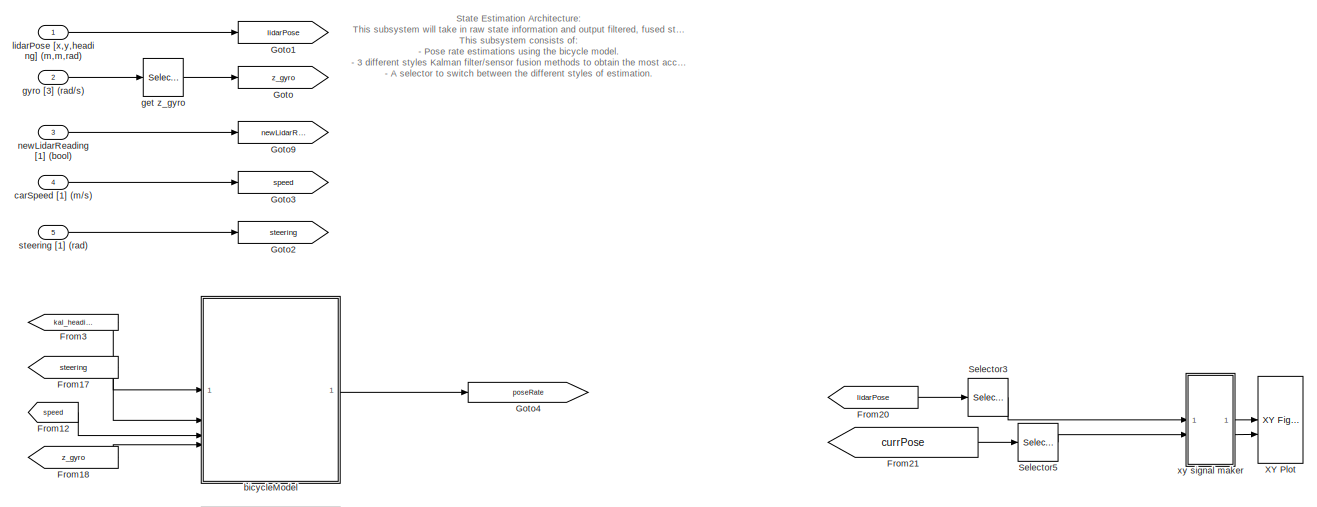
[diagram: stateEstimation - part 1/2, full width, top band]
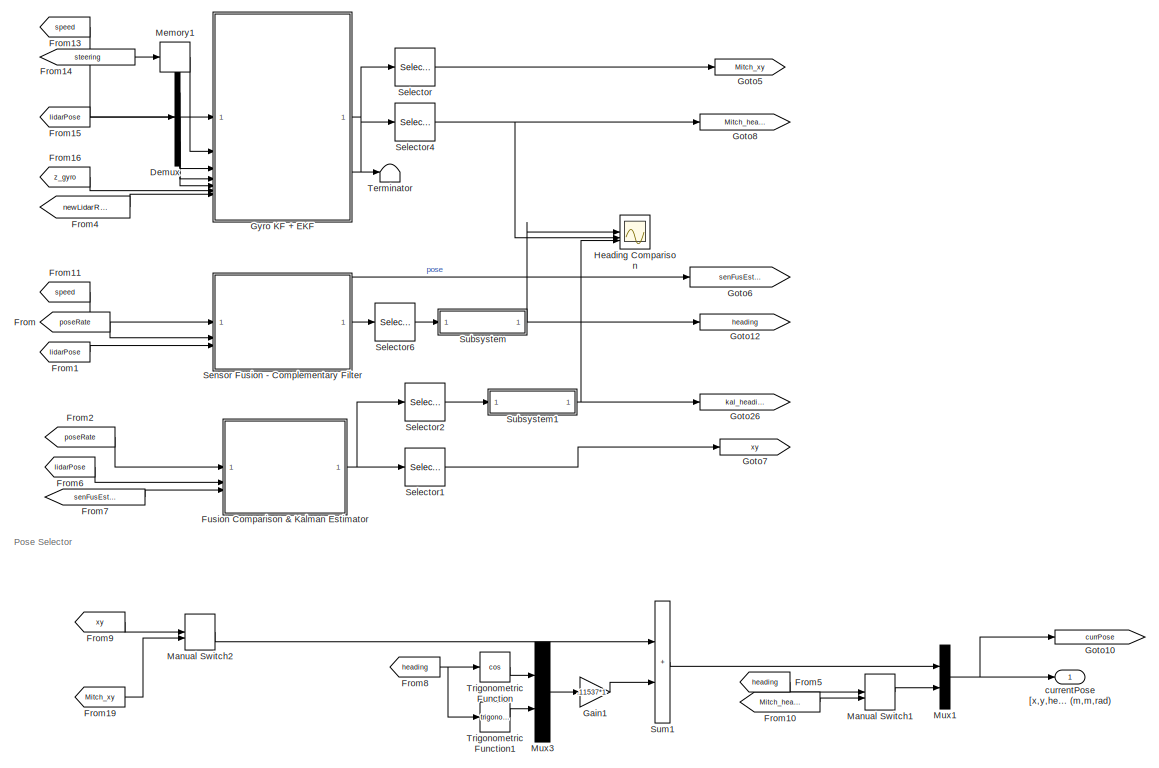
[diagram: stateEstimation - part 2/2, full width, bottom band]
BLOCK [SubSystem] stateEstimation
BLOCK [Demux] stateEstimation/Demux
  Outputs = 3
BLOCK [From] stateEstimation/From
  GotoTag = poseRate
BLOCK [From] stateEstimation/From1
  CloseFcn = tagdialog Close
  GotoTag = lidarPose
BLOCK [From] stateEstimation/From10
  CloseFcn = tagdialog Close
  GotoTag = Mitch_heading
BLOCK [From] stateEstimation/From11
  CloseFcn = tagdialog Close
  GotoTag = speed
BLOCK [From] stateEstimation/From12
  CloseFcn = tagdialog Close
  GotoTag = speed
BLOCK [From] stateEstimation/From13
  CloseFcn = tagdialog Close
  GotoTag = speed
BLOCK [From] stateEstimation/From14
  CloseFcn = tagdialog Close
  GotoTag = steering
BLOCK [From] stateEstimation/From15
  CloseFcn = tagdialog Close
  GotoTag = lidarPose
BLOCK [From] stateEstimation/From16
  CloseFcn = tagdialog Close
  GotoTag = z_gyro
BLOCK [From] stateEstimation/From17
  GotoTag = steering
BLOCK [From] stateEstimation/From18
  GotoTag = z_gyro
BLOCK [From] stateEstimation/From19
  CloseFcn = tagdialog Close
  GotoTag = Mitch_xy
BLOCK [From] stateEstimation/From2
  GotoTag = poseRate
BLOCK [From] stateEstimation/From20
  GotoTag = lidarPose
BLOCK [From] stateEstimation/From21
  GotoTag = currPose
BLOCK [From] stateEstimation/From3
  GotoTag = kal_heading
BLOCK [From] stateEstimation/From4
  GotoTag = newLidarReading
BLOCK [From] stateEstimation/From5
  CloseFcn = tagdialog Close
  GotoTag = heading
BLOCK [From] stateEstimation/From6
  CloseFcn = tagdialog Close
  GotoTag = lidarPose
BLOCK [From] stateEstimation/From7
  CloseFcn = tagdialog Close
  GotoTag = senFusEstimate
BLOCK [From] stateEstimation/From8
  CloseFcn = tagdialog Close
  GotoTag = heading
BLOCK [From] stateEstimation/From9
  CloseFcn = tagdialog Close
  GotoTag = xy
BLOCK [SubSystem] stateEstimation/Fusion Comparison & Kalman Estimator
BLOCK [SubSystem] stateEstimation/Fusion Comparison & Kalman Estimator/Angle mod1
BLOCK [Inport] stateEstimation/Fusion Comparison & Kalman Estimator/Angle mod1/Angle
BLOCK [Bias] stateEstimation/Fusion Comparison & Kalman Estimator/Angle mod1/Bias
  Bias = 180
  SaturateOnIntegerOverflow = off
BLOCK [Bias] stateEstimation/Fusion Comparison & Kalman Estimator/Angle mod1/Bias1
  Bias = -180
  SaturateOnIntegerOverflow = off
BLOCK [Constant] stateEstimation/Fusion Comparison & Kalman Estimator/Angle mod1/Constant1
  Value = 360
BLOCK [Math] stateEstimation/Fusion Comparison & Kalman Estimator/Angle mod1/Mod
  Operator = mod
BLOCK [Outport] stateEstimation/Fusion Comparison & Kalman Estimator/Angle mod1/Mod_Angle
BLOCK [Constant] stateEstimation/Fusion Comparison & Kalman Estimator/Constant
  Value = 3
BLOCK [DataTypeConversion] stateEstimation/Fusion Comparison & Kalman Estimator/Data Type Conversion1
  NameLocation = top
  OutDataTypeStr = int32
  RndMeth = Round
  SaturateOnIntegerOverflow = off
BLOCK [DataTypeConversion] stateEstimation/Fusion Comparison & Kalman Estimator/Data Type Conversion2
  NameLocation = top
  OutDataTypeStr = int32
  RndMeth = Round
  SaturateOnIntegerOverflow = off
BLOCK [Scope] stateEstimation/Fusion Comparison & Kalman Estimator/Heading
  Floating = off
  NumInputPorts = 1
BLOCK [Integrator] stateEstimation/Fusion Comparison & Kalman Estimator/Integrator
  ExternalReset = level
  InitialConditionSource = external
  WrappedStateLowerValue = -[20 20 pi]
  WrappedStateUpperValue = [20 20 pi]
BLOCK [Selector] stateEstimation/Fusion Comparison & Kalman Estimator/Kalman
  IndexOptions = Index vector (port)
  Indices = [1 3]
  InputPortWidth = 3
  OutputSizes = 1
BLOCK [Outport] stateEstimation/Fusion Comparison & Kalman Estimator/Kalman Pose
BLOCK [Selector] stateEstimation/Fusion Comparison & Kalman Estimator/LiDAR
  IndexOptions = Index vector (port)
  Indices = [1 3]
  InputPortWidth = 3
  OutputSizes = 1
BLOCK [Selector] stateEstimation/Fusion Comparison & Kalman Estimator/LiDAR1
  IndexOptions = Index vector (port)
  Indices = [1 3]
  InputPortWidth = 3
  OutputSizes = 1
BLOCK [Memory] stateEstimation/Fusion Comparison & Kalman Estimator/Memory2
  InheritSampleTime = on
  LinearizeAsDelay = on
  LinearizeMemory = on
BLOCK [Mux] stateEstimation/Fusion Comparison & Kalman Estimator/Mux
  DisplayOption = bar
  Inputs = 2
BLOCK [Mux] stateEstimation/Fusion Comparison & Kalman Estimator/Mux1
  DisplayOption = bar
  Inputs = 2
BLOCK [Mux] stateEstimation/Fusion Comparison & Kalman Estimator/Mux2
  DisplayOption = bar
  Inputs = 2
BLOCK [Mux] stateEstimation/Fusion Comparison & Kalman Estimator/Mux4
  DisplayOption = bar
  Inputs = 3
BLOCK [Inport] stateEstimation/Fusion Comparison & Kalman Estimator/Pose dot
BLOCK [RateTransition] stateEstimation/Fusion Comparison & Kalman Estimator/RT
  OutPortSampleTime = qc_get_step_size
BLOCK [RateTransition] stateEstimation/Fusion Comparison & Kalman Estimator/RT1
  OutPortSampleTime = qc_get_step_size
BLOCK [RateTransition] stateEstimation/Fusion Comparison & Kalman Estimator/RT2
  OutPortSampleTime = qc_get_step_size
BLOCK [Reference] stateEstimation/Fusion Comparison & Kalman Estimator/Radians to Degrees  REF=simulink_extras/Transformations/Radians
to Degrees
  SourceBlock = simulink_extras/Transformations/Radians\nto Degrees
  SourceType = RadiansToDegrees
BLOCK [Reference] stateEstimation/Fusion Comparison & Kalman Estimator/Radians to Degrees2  REF=simulink_extras/Transformations/Radians
to Degrees
  SourceBlock = simulink_extras/Transformations/Radians\nto Degrees
  SourceType = RadiansToDegrees
BLOCK [Reference] stateEstimation/Fusion Comparison & Kalman Estimator/Radians to Degrees3  REF=simulink_extras/Transformations/Radians
to Degrees
  SourceBlock = simulink_extras/Transformations/Radians\nto Degrees
  SourceType = RadiansToDegrees
BLOCK [RelationalOperator] stateEstimation/Fusion Comparison & Kalman Estimator/Relational Operator1
  InputSameDT = off
  Operator = ~=
  OutDataTypeStr = boolean
  RndMeth = Simplest
BLOCK [Scope] stateEstimation/Fusion Comparison & Kalman Estimator/Scope
  Floating = off
  NumInputPorts = 3
BLOCK [Selector] stateEstimation/Fusion Comparison & Kalman Estimator/Selector1
  IndexOptions = Index vector (dialog)
  Indices = 1:2
  InputPortWidth = 3
  OutputSizes = 1
BLOCK [Selector] stateEstimation/Fusion Comparison & Kalman Estimator/Selector2
  IndexOptions = Index vector (dialog)
  Indices = 3
  InputPortWidth = 3
  OutputSizes = 1
BLOCK [Selector] stateEstimation/Fusion Comparison & Kalman Estimator/Selector3
  IndexOptions = Index vector (dialog)
  Indices = 1:2
  InputPortWidth = 3
  OutputSizes = 1
BLOCK [Selector] stateEstimation/Fusion Comparison & Kalman Estimator/Selector4
  IndexOptions = Index vector (dialog)
  Indices = 3
  InputPortWidth = 3
  OutputSizes = 1
BLOCK [Selector] stateEstimation/Fusion Comparison & Kalman Estimator/Selector5
  IndexOptions = Index vector (dialog)
  Indices = 1:2
  InputPortWidth = 3
  OutputSizes = 1
BLOCK [Selector] stateEstimation/Fusion Comparison & Kalman Estimator/Selector6
  IndexOptions = Index vector (dialog)
  Indices = 3
  InputPortWidth = 3
  OutputSizes = 1
BLOCK [Selector] stateEstimation/Fusion Comparison & Kalman Estimator/Selector7
  IndexOptions = Index vector (dialog)
  Indices = 1
  InputPortWidth = 3
  OutputSizes = 1
BLOCK [Gain] stateEstimation/Fusion Comparison & Kalman Estimator/m_to_mm
  Gain = 1e3
BLOCK [Gain] stateEstimation/Fusion Comparison & Kalman Estimator/m_to_mm1
  Gain = 1e3
BLOCK [Gain] stateEstimation/Fusion Comparison & Kalman Estimator/m_to_mm2
  Gain = 1e3
BLOCK [Inport] stateEstimation/Fusion Comparison & Kalman Estimator/pose
  Port = 2
BLOCK [Inport] stateEstimation/Fusion Comparison & Kalman Estimator/pose estimate
  Port = 3
BLOCK [Gain] stateEstimation/Gain1
  Gain = .11537*1
BLOCK [Goto] stateEstimation/Goto
  GotoTag = z_gyro
BLOCK [Goto] stateEstimation/Goto1
  GotoTag = lidarPose
BLOCK [Goto] stateEstimation/Goto10
  GotoTag = currPose
BLOCK [Goto] stateEstimation/Goto12
  GotoTag = heading
BLOCK [Goto] stateEstimation/Goto2
  GotoTag = steering
BLOCK [Goto] stateEstimation/Goto26
  GotoTag = kal_heading
BLOCK [Goto] stateEstimation/Goto3
  GotoTag = speed
BLOCK [Goto] stateEstimation/Goto4
  GotoTag = poseRate
BLOCK [Goto] stateEstimation/Goto5
  GotoTag = Mitch_xy
BLOCK [Goto] stateEstimation/Goto6
  GotoTag = senFusEstimate
BLOCK [Goto] stateEstimation/Goto7
  GotoTag = xy
BLOCK [Goto] stateEstimation/Goto8
  GotoTag = Mitch_heading
BLOCK [Goto] stateEstimation/Goto9
  GotoTag = newLidarReading
BLOCK [SubSystem] stateEstimation/Gyro KF + EKF
BLOCK [SubSystem] stateEstimation/Gyro KF + EKF/Heading Kalman Filter
  ErrorFcn = Stateflow.Translate.translate
  PermitHierarchicalResolution = ExplicitOnly
  SFBlockType = MATLAB Function
  TreatAsAtomicUnit = on
BLOCK [Demux] stateEstimation/Gyro KF + EKF/Heading Kalman Filter/ Demux 
  Outputs = 1
BLOCK [S-Function] stateEstimation/Gyro KF + EKF/Heading Kalman Filter/ SFunction 
  EnableBusSupport = off
  FunctionName = sf_sfun
  Parameters = Controller_Sample_Time,GyroKF_P0,GyroKF_Q,GyroKF_R,GyroKF_X0
  PortCounts = [3 3]
  SFcnIsStateOwnerBlock = off
  SFunctionDeploymentMode = off
  Tag = Stateflow S-Function 30
BLOCK [Terminator] stateEstimation/Gyro KF + EKF/Heading Kalman Filter/ Terminator 
BLOCK [Outport] stateEstimation/Gyro KF + EKF/Heading Kalman Filter/gyro_bias
  Port = 2
BLOCK [Inport] stateEstimation/Gyro KF + EKF/Heading Kalman Filter/newGPSData
  Port = 3
BLOCK [Inport] stateEstimation/Gyro KF + EKF/Heading Kalman Filter/th_gps
  Port = 2
BLOCK [Outport] stateEstimation/Gyro KF + EKF/Heading Kalman Filter/th_hat
BLOCK [Inport] stateEstimation/Gyro KF + EKF/Heading Kalman Filter/thd_gyro
BLOCK [SubSystem] stateEstimation/Gyro KF + EKF/QCar EKF
  ErrorFcn = Stateflow.Translate.translate
  PermitHierarchicalResolution = ExplicitOnly
  SFBlockType = MATLAB Function
  TreatAsAtomicUnit = on
BLOCK [Demux] stateEstimation/Gyro KF + EKF/QCar EKF/ Demux 
  Outputs = 1
BLOCK [S-Function] stateEstimation/Gyro KF + EKF/QCar EKF/ SFunction 
  EnableBusSupport = off
  FunctionName = sf_sfun
  Parameters = Controller_Sample_Time,QCarEKF_L,QCarEKF_P0,QCarEKF_Q,QCarEKF_R_combined,QCarEKF_R_heading,QcarKF_X0
  PortCounts = [6 2]
  SFcnIsStateOwnerBlock = off
  SFunctionDeploymentMode = off
  Tag = Stateflow S-Function 31
BLOCK [Terminator] stateEstimation/Gyro KF + EKF/QCar EKF/ Terminator 
BLOCK [Outport] stateEstimation/Gyro KF + EKF/QCar EKF/Xhat
BLOCK [Inport] stateEstimation/Gyro KF + EKF/QCar EKF/delta
  Port = 2
BLOCK [Inport] stateEstimation/Gyro KF + EKF/QCar EKF/newGPSData
  Port = 6
BLOCK [Inport] stateEstimation/Gyro KF + EKF/QCar EKF/speed
BLOCK [Inport] stateEstimation/Gyro KF + EKF/QCar EKF/th_hat
  Port = 5
BLOCK [Inport] stateEstimation/Gyro KF + EKF/QCar EKF/x_gps
  Port = 3
BLOCK [Inport] stateEstimation/Gyro KF + EKF/QCar EKF/y_gps
  Port = 4
BLOCK [Outport] stateEstimation/Gyro KF + EKF/Xhat
BLOCK [Inport] stateEstimation/Gyro KF + EKF/delta
  Port = 2
BLOCK [Outport] stateEstimation/Gyro KF + EKF/gyro_bias
  Port = 2
BLOCK [Inport] stateEstimation/Gyro KF + EKF/newGPSData
  Port = 7
BLOCK [Inport] stateEstimation/Gyro KF + EKF/speed
BLOCK [Inport] stateEstimation/Gyro KF + EKF/th_gps
  Port = 5
BLOCK [Inport] stateEstimation/Gyro KF + EKF/thd_gyro
  Port = 6
BLOCK [Inport] stateEstimation/Gyro KF + EKF/x_gps
  Port = 3
BLOCK [Inport] stateEstimation/Gyro KF + EKF/y_gps
  Port = 4
BLOCK [Scope] stateEstimation/Heading Comparison
  Floating = off
  NumInputPorts = 3
BLOCK [ManualSwitch] stateEstimation/Manual Switch1
  CurrentSetting = 0
BLOCK [ManualSwitch] stateEstimation/Manual Switch2
  CurrentSetting = 0
BLOCK [Memory] stateEstimation/Memory1
BLOCK [Mux] stateEstimation/Mux1
  DisplayOption = bar
  Inputs = 2
BLOCK [Mux] stateEstimation/Mux3
  DisplayOption = bar
  Inputs = 2
BLOCK [Selector] stateEstimation/Selector
  IndexOptions = Index vector (dialog)
  Indices = 1:2
  InputPortWidth = 3
  OutputSizes = 1
BLOCK [Selector] stateEstimation/Selector1
  IndexOptions = Index vector (dialog)
  Indices = 1:2
  InputPortWidth = 3
  OutputSizes = 1
BLOCK [Selector] stateEstimation/Selector2
  IndexOptions = Index vector (dialog)
  Indices = 3
  InputPortWidth = 3
  OutputSizes = 1
BLOCK [Selector] stateEstimation/Selector3
  IndexOptions = Index vector (dialog)
  Indices = [1 2]
  InputPortWidth = 3
  OutputSizes = 1
BLOCK [Selector] stateEstimation/Selector4
  IndexOptions = Index vector (dialog)
  Indices = 3
  InputPortWidth = 3
  OutputSizes = 1
BLOCK [Selector] stateEstimation/Selector5
  IndexOptions = Index vector (dialog)
  Indices = [1 2]
  InputPortWidth = 3
  OutputSizes = 1
BLOCK [Selector] stateEstimation/Selector6
  IndexOptions = Index vector (dialog)
  Indices = 3
  InputPortWidth = 3
  OutputSizes = 1
BLOCK [SubSystem] stateEstimation/Sensor Fusion - Complementary Filter
BLOCK [Constant] stateEstimation/Sensor Fusion - Complementary Filter/Constant
BLOCK [Constant] stateEstimation/Sensor Fusion - Complementary Filter/Constant1
  Value = 5
BLOCK [Constant] stateEstimation/Sensor Fusion - Complementary Filter/Constant2
  Value = .1
BLOCK [Scope] stateEstimation/Sensor Fusion - Complementary Filter/Correction_Weight
  Floating = off
  NumInputPorts = 1
BLOCK [Display] stateEstimation/Sensor Fusion - Complementary Filter/Display
BLOCK [Gain] stateEstimation/Sensor Fusion - Complementary Filter/Gain
  Gain = [100 100 1]
BLOCK [Integrator] stateEstimation/Sensor Fusion - Complementary Filter/Integrator
  WrappedStateLowerValue = -[20 20 pi]
  WrappedStateUpperValue = [20 20 pi]
BLOCK [Integrator] stateEstimation/Sensor Fusion - Complementary Filter/Integrator1
  ExternalReset = level
  LimitOutput = on
  LowerSaturationLimit = -.05*[1 1 1]*1
  UpperSaturationLimit = .05*[1 1 1]*1
BLOCK [SubSystem] stateEstimation/Sensor Fusion - Complementary Filter/MATLAB Function
  ErrorFcn = Stateflow.Translate.translate
  PermitHierarchicalResolution = ExplicitOnly
  SFBlockType = MATLAB Function
  TreatAsAtomicUnit = on
BLOCK [Demux] stateEstimation/Sensor Fusion - Complementary Filter/MATLAB Function/ Demux 
  Outputs = 1
BLOCK [S-Function] stateEstimation/Sensor Fusion - Complementary Filter/MATLAB Function/ SFunction 
  EnableBusSupport = off
  FunctionName = sf_sfun
  PortCounts = [3 2]
  SFcnIsStateOwnerBlock = off
  SFunctionDeploymentMode = off
  Tag = Stateflow S-Function 6
BLOCK [Terminator] stateEstimation/Sensor Fusion - Complementary Filter/MATLAB Function/ Terminator 
BLOCK [Inport] stateEstimation/Sensor Fusion - Complementary Filter/MATLAB Function/car_speed
BLOCK [Outport] stateEstimation/Sensor Fusion - Complementary Filter/MATLAB Function/correction_weight
BLOCK [Inport] stateEstimation/Sensor Fusion - Complementary Filter/MATLAB Function/min_weight
  Port = 3
BLOCK [Inport] stateEstimation/Sensor Fusion - Complementary Filter/MATLAB Function/slope
  Port = 2
BLOCK [ManualSwitch] stateEstimation/Sensor Fusion - Complementary Filter/Manual Switch
  CurrentSetting = 0
BLOCK [Product] stateEstimation/Sensor Fusion - Complementary Filter/Product
BLOCK [Scope] stateEstimation/Sensor Fusion - Complementary Filter/Scope
  Floating = off
  NumInputPorts = 2
BLOCK [Sum] stateEstimation/Sensor Fusion - Complementary Filter/Subtract
  IconShape = rectangular
  Inputs = +-
BLOCK [Sum] stateEstimation/Sensor Fusion - Complementary Filter/Subtract1
  IconShape = rectangular
  Inputs = +-
BLOCK [Sum] stateEstimation/Sensor Fusion - Complementary Filter/Subtract2
  IconShape = rectangular
BLOCK [Inport] stateEstimation/Sensor Fusion - Complementary Filter/car speed
BLOCK [Inport] stateEstimation/Sensor Fusion - Complementary Filter/correction
  Port = 3
BLOCK [Outport] stateEstimation/Sensor Fusion - Complementary Filter/estimate
  VectorParamsAs1DForOutWhenUnconnected = off
BLOCK [Gain] stateEstimation/Sensor Fusion - Complementary Filter/ki
  Gain = [4 4 4]*1
BLOCK [Gain] stateEstimation/Sensor Fusion - Complementary Filter/kp
  Gain = [1 1 1]*.400*1
BLOCK [Inport] stateEstimation/Sensor Fusion - Complementary Filter/rate
  Port = 2
BLOCK [SubSystem] stateEstimation/Subsystem
BLOCK [Inport] stateEstimation/Subsystem/Angle
BLOCK [Bias] stateEstimation/Subsystem/Bias
  Bias = pi
  SaturateOnIntegerOverflow = off
BLOCK [Bias] stateEstimation/Subsystem/Bias1
  Bias = -pi
  SaturateOnIntegerOverflow = off
BLOCK [Constant] stateEstimation/Subsystem/Constant1
  Value = 2*pi
BLOCK [Math] stateEstimation/Subsystem/Mod
  Operator = mod
BLOCK [Outport] stateEstimation/Subsystem/Mod_Angle
BLOCK [SubSystem] stateEstimation/Subsystem1
BLOCK [Inport] stateEstimation/Subsystem1/Angle
BLOCK [Bias] stateEstimation/Subsystem1/Bias
  Bias = pi
  SaturateOnIntegerOverflow = off
BLOCK [Bias] stateEstimation/Subsystem1/Bias1
  Bias = -pi
  SaturateOnIntegerOverflow = off
BLOCK [Constant] stateEstimation/Subsystem1/Constant1
  Value = 2*pi
BLOCK [Math] stateEstimation/Subsystem1/Mod
  Operator = mod
BLOCK [Outport] stateEstimation/Subsystem1/Mod_Angle
BLOCK [Sum] stateEstimation/Sum1
  IconShape = rectangular
BLOCK [Terminator] stateEstimation/Terminator
BLOCK [Trigonometry] stateEstimation/Trigonometric Function
  Operator = cos
BLOCK [Trigonometry] stateEstimation/Trigonometric Function1
BLOCK [Reference] stateEstimation/XY Plot  REF=quarc_library/Sinks/Figures/XY Figure
  SourceBlock = quarc_library/Sinks/Figures/XY Figure
  SourceProductName = QUARC Targets
  SourceType = XY Figure
BLOCK [SubSystem] stateEstimation/bicycleModel
BLOCK [Sum] stateEstimation/bicycleModel/Add
  IconShape = rectangular
BLOCK [Product] stateEstimation/bicycleModel/Divide
  Inputs = */
BLOCK [Constant] stateEstimation/bicycleModel/Lr
  Value = 0.128
BLOCK [Mux] stateEstimation/bicycleModel/Mux3
  DisplayOption = bar
  Inputs = 3
BLOCK [Product] stateEstimation/bicycleModel/Product
BLOCK [Product] stateEstimation/bicycleModel/Product1
BLOCK [Product] stateEstimation/bicycleModel/Product2
BLOCK [TransferFcn] stateEstimation/bicycleModel/Transfer Fcn
  Denominator = [0.1026 1]
BLOCK [Trigonometry] stateEstimation/bicycleModel/Trigonometric Function
BLOCK [Trigonometry] stateEstimation/bicycleModel/Trigonometric Function1
  Operator = cos
BLOCK [Trigonometry] stateEstimation/bicycleModel/Trigonometric Function2
  Operator = tan
BLOCK [Trigonometry] stateEstimation/bicycleModel/Trigonometric Function3
  Operator = atan
BLOCK [Inport] stateEstimation/bicycleModel/carSpeed (m//s)
  NameLocation = top
  Port = 3
BLOCK [Inport] stateEstimation/bicycleModel/heading (rad)
  NameLocation = top
BLOCK [Outport] stateEstimation/bicycleModel/poseRate (m//s, m//s, rad//s)
  VectorParamsAs1DForOutWhenUnconnected = off
BLOCK [Inport] stateEstimation/bicycleModel/steering [1] (rad)
  Port = 2
BLOCK [Scope] stateEstimation/bicycleModel/steering servo dynamics
  Floating = off
  NameLocation = top
  NumInputPorts = 2
BLOCK [Constant] stateEstimation/bicycleModel/wheelbase
  Value = 0.256
BLOCK [Inport] stateEstimation/bicycleModel/z_gyroscope (rad//s)
  Port = 4
BLOCK [Inport] stateEstimation/carSpeed [1] (m//s)
  Port = 4
BLOCK [Outport] stateEstimation/currentPose [x,y,heading] (m,m,rad)
BLOCK [Selector] stateEstimation/get z_gyro
  IndexOptions = Index vector (dialog)
  Indices = [3]
  InputPortWidth = 3
  OutputSizes = 1
BLOCK [Inport] stateEstimation/gyro [3] (rad//s)
  Port = 2
BLOCK [Inport] stateEstimation/lidarPose [x,y,heading] (m,m,rad)
BLOCK [Inport] stateEstimation/newLidarReading [1] (bool)
  Port = 3
BLOCK [Inport] stateEstimation/steering [1] (rad)
  Port = 5
BLOCK [SubSystem] stateEstimation/xy signal maker
BLOCK [Demux] stateEstimation/xy signal maker/Demux1
  Outputs = 2
BLOCK [Demux] stateEstimation/xy signal maker/Demux2
  Outputs = 2
BLOCK [Mux] stateEstimation/xy signal maker/Mux
  DisplayOption = bar
  Inputs = 2
BLOCK [Mux] stateEstimation/xy signal maker/Mux1
  DisplayOption = bar
  Inputs = 2
BLOCK [RateTransition] stateEstimation/xy signal maker/Rate Transition1
  OutPortSampleTime = ImageDisplay_Sample_Time
BLOCK [RateTransition] stateEstimation/xy signal maker/Rate Transition2
  OutPortSampleTime = ImageDisplay_Sample_Time
BLOCK [Outport] stateEstimation/xy signal maker/x
BLOCK [Inport] stateEstimation/xy signal maker/xy 1
BLOCK [Inport] stateEstimation/xy signal maker/xy 2
  Port = 2
BLOCK [Outport] stateEstimation/xy signal maker/y
  Port = 2
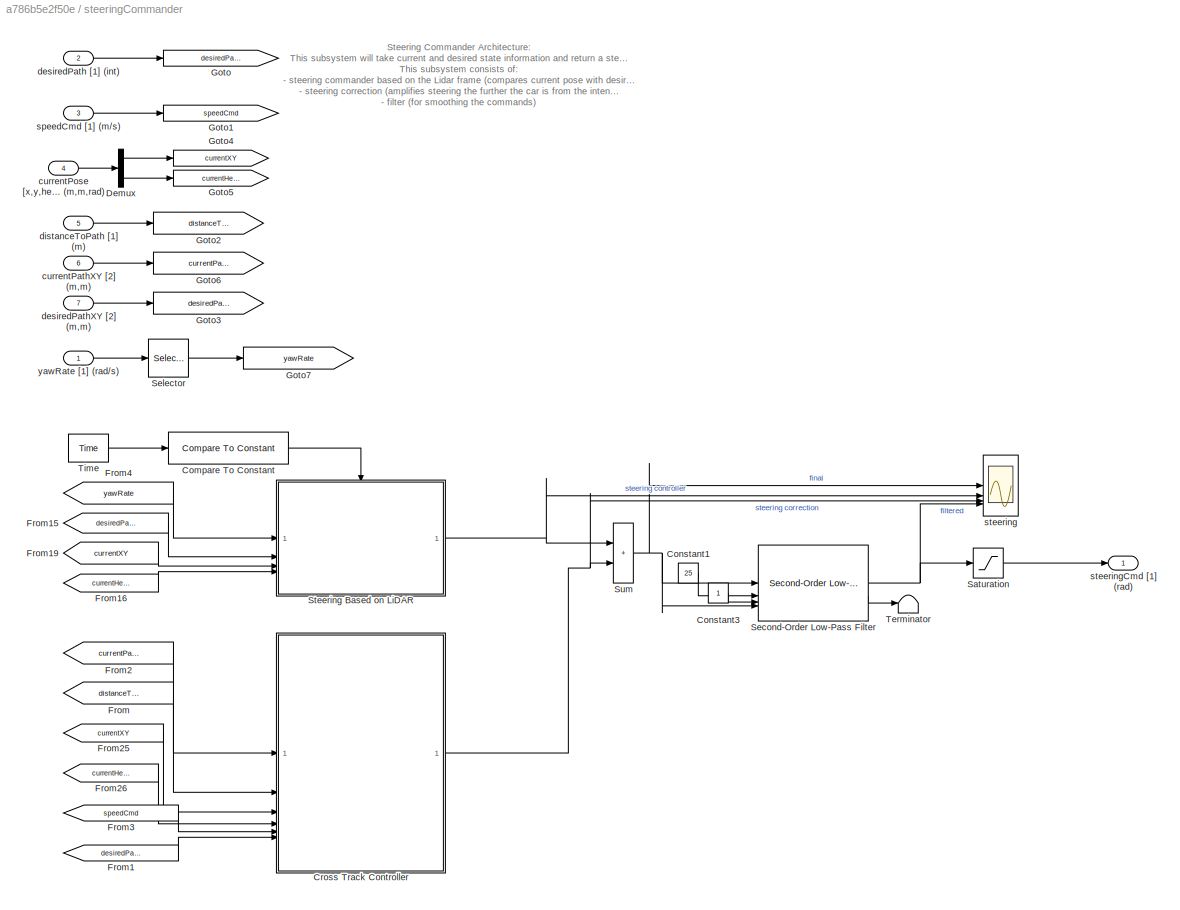
BLOCK [SubSystem] steeringCommander
BLOCK [Reference] steeringCommander/Compare To Constant  REF=simulink/Logic and Bit
Operations/Compare
To Constant
  SourceBlock = simulink/Logic and Bit\nOperations/Compare\nTo Constant
  SourceType = Compare To Constant
BLOCK [Constant] steeringCommander/Constant1
  Value = 25
BLOCK [Constant] steeringCommander/Constant3
BLOCK [SubSystem] steeringCommander/Cross Track Controller
BLOCK [Constant] steeringCommander/Cross Track Controller/Constant
  Value = 0
BLOCK [Constant] steeringCommander/Cross Track Controller/Constant1
BLOCK [Constant] steeringCommander/Cross Track Controller/Constant6
  Value = Initialization_Time +1
BLOCK [Trigonometry] steeringCommander/Cross Track Controller/Cos
  Operator = cos
BLOCK [Trigonometry] steeringCommander/Cross Track Controller/Cos1
BLOCK [Reference] steeringCommander/Cross Track Controller/Cross Product  REF=quarc_library/Math Operations/Vectors/Cross Product
  SourceBlock = quarc_library/Math Operations/Vectors/Cross Product
  SourceProductName = QUARC Targets
  SourceType = Cross Product
BLOCK [Demux] steeringCommander/Cross Track Controller/Demux
  Outputs = 3
BLOCK [Display] steeringCommander/Cross Track Controller/Display
  Decimation = 1
BLOCK [Display] steeringCommander/Cross Track Controller/Display1
  Decimation = 1
BLOCK [RelationalOperator] steeringCommander/Cross Track Controller/Equal
  InputSameDT = off
  Operator = ==
  OutDataTypeStr = boolean
  RndMeth = Simplest
BLOCK [RelationalOperator] steeringCommander/Cross Track Controller/Equal1
  InputSameDT = off
  Operator = ~=
  OutDataTypeStr = boolean
  RndMeth = Simplest
BLOCK [Gain] steeringCommander/Cross Track Controller/Gain3
BLOCK [Gain] steeringCommander/Cross Track Controller/Gain6
  Gain = 3
BLOCK [RelationalOperator] steeringCommander/Cross Track Controller/GreaterThan
  InputSameDT = off
  Operator = <
  OutDataTypeStr = boolean
  RndMeth = Simplest
BLOCK [Integrator] steeringCommander/Cross Track Controller/Integrator
  ExternalReset = level
  LimitOutput = on
  LowerSaturationLimit = -.2
  UpperSaturationLimit = .2
BLOCK [Integrator] steeringCommander/Cross Track Controller/Integrator1
  ExternalReset = level
  LimitOutput = on
  LowerSaturationLimit = 0
  UpperSaturationLimit = 1
BLOCK [Memory] steeringCommander/Cross Track Controller/Memory1
  InheritSampleTime = on
  InitialCondition = 6
  LinearizeAsDelay = on
  LinearizeMemory = on
BLOCK [Mux] steeringCommander/Cross Track Controller/Mux
  DisplayOption = bar
  Inputs = 3
BLOCK [Mux] steeringCommander/Cross Track Controller/Mux1
  DisplayOption = bar
  Inputs = 2
BLOCK [Logic] steeringCommander/Cross Track Controller/OR
  AllPortsSameDT = off
  IconShape = distinctive
  Inputs = 3
  Operator = OR
  OutDataTypeStr = boolean
BLOCK [Product] steeringCommander/Cross Track Controller/Product
BLOCK [Product] steeringCommander/Cross Track Controller/Product3
BLOCK [Saturate] steeringCommander/Cross Track Controller/Saturation1
  LowerLimit = -.2
  UpperLimit = .2
BLOCK [Signum] steeringCommander/Cross Track Controller/Sign
BLOCK [Sum] steeringCommander/Cross Track Controller/Sum
  IconShape = rectangular
  Inputs = +-
BLOCK [Sum] steeringCommander/Cross Track Controller/Sum2
  IconShape = rectangular
BLOCK [Reference] steeringCommander/Cross Track Controller/Time1  REF=quarc_library/Sources/Time/Time
  SourceBlock = quarc_library/Sources/Time/Time
  SourceProductName = QUARC Targets
  SourceType = Time
BLOCK [Inport] steeringCommander/Cross Track Controller/currentPath [1] (int)
  Port = 6
BLOCK [Inport] steeringCommander/Cross Track Controller/currentPathXY [2] (m,m)
BLOCK [Inport] steeringCommander/Cross Track Controller/currentXY [2] (m,m)
  Port = 3
BLOCK [Scope] steeringCommander/Cross Track Controller/distanceToPath
  ContainerLayout = {"WindowBounds":[320,156,1280,768],"gridDimensions":{"w":1,"h":1},"tileCount":1,"tileCoverage":1,"columnWeights":1,"rowWeights":1,"tileOccupancy":{"children":[{"id":"/steeringCommander/Cross Track Controller/distanceToPath"},{"id":"/steeringCommander/steering"}]}}
  Floating = off
  NumInputPorts = 1
BLOCK [Inport] steeringCommander/Cross Track Controller/distanceToPath [1] (m)
  Port = 2
BLOCK [Inport] steeringCommander/Cross Track Controller/heading [1] (rad)
  Port = 4
BLOCK [Inport] steeringCommander/Cross Track Controller/speedCmd [1] (m//s)
  Port = 5
BLOCK [Outport] steeringCommander/Cross Track Controller/steering correction
BLOCK [Demux] steeringCommander/Demux
  Outputs = 2
BLOCK [From] steeringCommander/From
  GotoTag = distanceToPath
BLOCK [From] steeringCommander/From1
  GotoTag = desiredPath
BLOCK [From] steeringCommander/From15
  CloseFcn = tagdialog Close
  GotoTag = desiredPathXY
BLOCK [From] steeringCommander/From16
  CloseFcn = tagdialog Close
  GotoTag = currentHeading
BLOCK [From] steeringCommander/From19
  CloseFcn = tagdialog Close
  GotoTag = currentXY
BLOCK [From] steeringCommander/From2
  GotoTag = currentPathXY
BLOCK [From] steeringCommander/From25
  CloseFcn = tagdialog Close
  GotoTag = currentXY
BLOCK [From] steeringCommander/From26
  CloseFcn = tagdialog Close
  GotoTag = currentHeading
BLOCK [From] steeringCommander/From3
  GotoTag = speedCmd
BLOCK [From] steeringCommander/From4
  GotoTag = yawRate
BLOCK [Goto] steeringCommander/Goto
  GotoTag = desiredPath
BLOCK [Goto] steeringCommander/Goto1
  GotoTag = speedCmd
BLOCK [Goto] steeringCommander/Goto2
  GotoTag = distanceToPath
BLOCK [Goto] steeringCommander/Goto3
  GotoTag = desiredPathXY
BLOCK [Goto] steeringCommander/Goto4
  GotoTag = currentXY
BLOCK [Goto] steeringCommander/Goto5
  GotoTag = currentHeading
BLOCK [Goto] steeringCommander/Goto6
  GotoTag = currentPathXY
BLOCK [Goto] steeringCommander/Goto7
  GotoTag = yawRate
BLOCK [Saturate] steeringCommander/Saturation
BLOCK [Reference] steeringCommander/Second-Order Low-Pass Filter  REF=quarc_library/Continuous/Second-Order
Low-Pass Filter
  SourceBlock = quarc_library/Continuous/Second-Order\nLow-Pass Filter
  SourceProductName = QUARC Targets
  SourceType = Second-Order Low-Pass Filter
BLOCK [Selector] steeringCommander/Selector
  IndexOptions = Index vector (dialog)
  Indices = [3]
  InputPortWidth = 3
  OutputSizes = 1
BLOCK [SubSystem] steeringCommander/Steering Based on LiDAR
BLOCK [Gain] steeringCommander/Steering Based on LiDAR/D
  Gain = steering_Kd
BLOCK [Demux] steeringCommander/Steering Based on LiDAR/Demux
  Outputs = 2
BLOCK [EnablePort] steeringCommander/Steering Based on LiDAR/Enable
  PropagateVarSize = During execution
BLOCK [TransferFcn] steeringCommander/Steering Based on LiDAR/Gyro Filter
  Denominator = [1 25]
  Numerator = [25]
BLOCK [If] steeringCommander/Steering Based on LiDAR/If
  ElseIfExpressions = u1 > pi
  IfExpression = u1 < -pi
BLOCK [SubSystem] steeringCommander/Steering Based on LiDAR/If Action Subsystem
  TreatAsAtomicUnit = on
BLOCK [ActionPort] steeringCommander/Steering Based on LiDAR/If Action Subsystem/Action Port
  ActionPortLabel = if(u1 < -pi)
BLOCK [Bias] steeringCommander/Steering Based on LiDAR/If Action Subsystem/Bias
  Bias = 2*pi
  SaturateOnIntegerOverflow = off
BLOCK [Inport] steeringCommander/Steering Based on LiDAR/If Action Subsystem/aoa [1] (rad)
BLOCK [Outport] steeringCommander/Steering Based on LiDAR/If Action Subsystem/steering [1] (rad)
BLOCK [SubSystem] steeringCommander/Steering Based on LiDAR/If Action Subsystem1
  TreatAsAtomicUnit = on
BLOCK [ActionPort] steeringCommander/Steering Based on LiDAR/If Action Subsystem1/Action Port
  ActionPortLabel = elseif(u1 > pi)
BLOCK [Bias] steeringCommander/Steering Based on LiDAR/If Action Subsystem1/Bias
  Bias = -2*pi
  SaturateOnIntegerOverflow = off
BLOCK [Inport] steeringCommander/Steering Based on LiDAR/If Action Subsystem1/aoa [1] (rad)
BLOCK [Outport] steeringCommander/Steering Based on LiDAR/If Action Subsystem1/steering [1] (rad)
BLOCK [SubSystem] steeringCommander/Steering Based on LiDAR/If Action Subsystem2
  TreatAsAtomicUnit = on
BLOCK [ActionPort] steeringCommander/Steering Based on LiDAR/If Action Subsystem2/Action Port
  ActionPortLabel = else
BLOCK [Bias] steeringCommander/Steering Based on LiDAR/If Action Subsystem2/Bias
  SaturateOnIntegerOverflow = off
BLOCK [Inport] steeringCommander/Steering Based on LiDAR/If Action Subsystem2/aoa [1] (rad)
BLOCK [Outport] steeringCommander/Steering Based on LiDAR/If Action Subsystem2/steering [1] (rad)
BLOCK [Merge] steeringCommander/Steering Based on LiDAR/Merge
  Inputs = 3
BLOCK [Gain] steeringCommander/Steering Based on LiDAR/P
  Gain = steering_Kp
BLOCK [Sum] steeringCommander/Steering Based on LiDAR/Sum
  IconShape = rectangular
  Inputs = +-
BLOCK [Sum] steeringCommander/Steering Based on LiDAR/Sum1
  Inputs = |+-
BLOCK [Sum] steeringCommander/Steering Based on LiDAR/Sum3
  IconShape = rectangular
  Inputs = +-
BLOCK [Trigonometry] steeringCommander/Steering Based on LiDAR/Trigonometric Function
  Operator = atan2
BLOCK [Inport] steeringCommander/Steering Based on LiDAR/heading [1] (rad)
  Port = 4
BLOCK [Outport] steeringCommander/Steering Based on LiDAR/lidarSteering [1] (rad)
BLOCK [Inport] steeringCommander/Steering Based on LiDAR/xy [2] (m,m)
  Port = 3
BLOCK [Inport] steeringCommander/Steering Based on LiDAR/xy_desired [2] (m,m)
  Port = 2
BLOCK [Inport] steeringCommander/Steering Based on LiDAR/yawRate [1] (rad//s)
BLOCK [Sum] steeringCommander/Sum
  IconShape = rectangular
BLOCK [Terminator] steeringCommander/Terminator
BLOCK [Reference] steeringCommander/Time  REF=quarc_library/Sources/Time/Time
  SourceBlock = quarc_library/Sources/Time/Time
  SourceProductName = QUARC Targets
  SourceType = Time
BLOCK [Inport] steeringCommander/currentPathXY [2] (m,m)
  Port = 6
BLOCK [Inport] steeringCommander/currentPose [x,y,heading] (m,m,rad)
  Port = 4
BLOCK [Inport] steeringCommander/desiredPath [1] (int)
  Port = 2
BLOCK [Inport] steeringCommander/desiredPathXY [2] (m,m)
  Port = 7
BLOCK [Inport] steeringCommander/distanceToPath [1] (m)
  Port = 5
BLOCK [Inport] steeringCommander/speedCmd [1] (m//s)
  Port = 3
BLOCK [Scope] steeringCommander/steering
  ContainerLayout = {"WindowBounds":[320,156,1280,768],"gridDimensions":{"w":1,"h":1},"tileCount":1,"tileCoverage":1,"columnWeights":1,"rowWeights":1,"tileOccupancy":{"children":[{"id":"/steeringCommander/Cross Track Controller/distanceToPath"},{"id":"/steeringCommander/steering"}]}}
  Floating = off
  NumInputPorts = 4
  ScopeSpecificationString = Simulink.scopes.TimeScopeBlockCfg('CurrentConfiguration', extmgr.ConfigurationSet(extmgr.Configuration('Core','General UI',true,'DisplayFullSourceName',false,'ShowMainToolbar',true,'FigureColor',[0.129411764705882 0.129411764705882 0.129411764705882]),extmgr.Configuration('Sources','WiredSimulink',true,'DataLogging',false,'DataLoggingVariableName','ScopeData','DataLoggingLimitDataPoints',false,'Da...<+3093ch>
BLOCK [Outport] steeringCommander/steeringCmd [1] (rad)
BLOCK [Inport] steeringCommander/yawRate [1] (rad//s)
BLOCK [Constant] targetSpeed
  Value = 0.5
BLOCK [SubSystem] writeToQCarDAC
BLOCK [Gain] writeToQCarDAC/Gain
BLOCK [Reference] writeToQCarDAC/HIL Write  REF=quarc_library/Data Acquisition/Generic/Immediate I//O/HIL Write
  AttributesFormatString = (%<object_name>)
  SourceBlock = quarc_library/Data Acquisition/Generic/Immediate I//O/HIL Write
  SourceProductName = QUARC Targets
  SourceType = HIL Write
  UserDataPersistent = on
BLOCK [Reference] writeToQCarDAC/LED Strip  REF=quarc_library/Devices/Third-Party/Displays/LED Strip
  SourceBlock = quarc_library/Devices/Third-Party/Displays/LED Strip
  SourceProductName = QUARC Targets
  SourceType = LED Strip
BLOCK [Mux] writeToQCarDAC/Mux
  DisplayOption = bar
  Inputs = 2
BLOCK [Bias] writeToQCarDAC/Steering Bias
  Bias = -0.05
  SaturateOnIntegerOverflow = off
BLOCK [Terminator] writeToQCarDAC/Terminator
BLOCK [Inport] writeToQCarDAC/ledStrip [R,G,B] (%)
  Port = 4
BLOCK [Inport] writeToQCarDAC/leds [14] (bool)
  Port = 3
BLOCK [Saturate] writeToQCarDAC/motor sat
  LowerLimit = -0.6
  UpperLimit = .6
BLOCK [Inport] writeToQCarDAC/motor_cmd [1] (%)
BLOCK [Saturate] writeToQCarDAC/steering sat
  NameLocation = top
BLOCK [Inport] writeToQCarDAC/steering_cmd [1] (rad)
  Port = 2
ANNOTATION (root): Loop Timing Plots
ANNOTATION (root): Processing
ANNOTATION (root): Read Sensors
ANNOTATION (root): Write to QCar
ANNOTATION obstacleDetection: Obstacle Detection Architecture: This subsystem takes in depth images, performs filtering and detects an object in a region of interest. This region is defined based on the current steering. This subsystem consists of: - Image filters to make depth information more reliable - Obstacle detection function
ANNOTATION obstacleDetection/obstacleDetection Markham March 22: %
ANNOTATION obstacleDetection/obstacleDetection Markham March 22: m
ANNOTATION obstacleDetection/obstacleDetection Markham March 22: px
ANNOTATION pathPlanner: Path Planner Architecture: This subsystem will take the current state and generate a target position to go to. It also contains a plotter that displays the current location and desired location. This subsystem consists of: - Manual setting of the desired path - Look ahead generator (finds the desired XY by looking ahead along the pre-generated path)
ANNOTATION pathPlanner: desired pos vs current pos
ANNOTATION rateTimingPlots/monitorTiming: moniorTiming Module: This subsystem outputs the sample time and computation time of the model. Outputs: sampleTime (s) n/a : Sample time (unfiltered and filtered) in seconds. computationTime (s) n/a : Computation time (unfiltered and filtered) in seconds. Usage: Compare the Sample Time (s) output to a constant (qc_get_step_size) to monitor whether or not the desired sample time is being achieved. ...<+145ch>
ANNOTATION rateTimingPlots/monitorTiming: Timing Performance
ANNOTATION rateTimingPlots/monitorTiming1: moniorTiming Module: This subsystem outputs the sample time and computation time of the model. Outputs: sampleTime (s) n/a : Sample time (unfiltered and filtered) in seconds. computationTime (s) n/a : Computation time (unfiltered and filtered) in seconds. Usage: Compare the Sample Time (s) output to a constant (qc_get_step_size) to monitor whether or not the desired sample time is being achieved. ...<+145ch>
ANNOTATION rateTimingPlots/monitorTiming1: Timing Performance
ANNOTATION rateTimingPlots/monitorTiming2: moniorTiming Module: This subsystem outputs the sample time and computation time of the model. Outputs: sampleTime (s) n/a : Sample time (unfiltered and filtered) in seconds. computationTime (s) n/a : Computation time (unfiltered and filtered) in seconds. Usage: Compare the Sample Time (s) output to a constant (qc_get_step_size) to monitor whether or not the desired sample time is being achieved. ...<+145ch>
ANNOTATION rateTimingPlots/monitorTiming2: Timing Performance
ANNOTATION rateTimingPlots/monitorTiming3: moniorTiming Module: This subsystem outputs the sample time and computation time of the model. Outputs: sampleTime (s) n/a : Sample time (unfiltered and filtered) in seconds. computationTime (s) n/a : Computation time (unfiltered and filtered) in seconds. Usage: Compare the Sample Time (s) output to a constant (qc_get_step_size) to monitor whether or not the desired sample time is being achieved. ...<+145ch>
ANNOTATION rateTimingPlots/monitorTiming3: Timing Performance
ANNOTATION rateTimingPlots/monitorTiming5: moniorTiming Module: This subsystem outputs the sample time and computation time of the model. Outputs: sampleTime (s) n/a : Sample time (unfiltered and filtered) in seconds. computationTime (s) n/a : Computation time (unfiltered and filtered) in seconds. Usage: Compare the Sample Time (s) output to a constant (qc_get_step_size) to monitor whether or not the desired sample time is being achieved. ...<+145ch>
ANNOTATION rateTimingPlots/monitorTiming5: Timing Performance
ANNOTATION rateTimingPlots/monitorTiming7: moniorTiming Module: This subsystem outputs the sample time and computation time of the model. Outputs: sampleTime (s) n/a : Sample time (unfiltered and filtered) in seconds. computationTime (s) n/a : Computation time (unfiltered and filtered) in seconds. Usage: Compare the Sample Time (s) output to a constant (qc_get_step_size) to monitor whether or not the desired sample time is being achieved. ...<+145ch>
ANNOTATION rateTimingPlots/monitorTiming7: Timing Performance
ANNOTATION readQCarDAC/counts to meters: (Diff. pinion*pinion)/(Spur*Diff. spur)
ANNOTATION readQCarDAC/counts to meters: speedEstimation Module: This subsystem converts the motor speed measurements in counts/s to a useful longitudinal car speed in m/s. Inputs: motorSpeed (counts/s) n/a : Drive motor speed measured using an encoder Outputs: longitudinalCarSpeed (m/s) n/a : The platform's longitudinal speed (along the front-rear axis direction)
ANNOTATION readQCarDAC/counts to meters: Estimate car speed from motor encoder counts rate
ANNOTATION readQCarDAC/counts to meters: v = 2*pi*r * omega (if omega is in rot/s) v = r * omega (if omega is in rad/s) r = 0.0342 m
ANNOTATION readQCarDAC/counts//s to m//s: (Diff. pinion*pinion)/(Spur*Diff. spur)
ANNOTATION readQCarDAC/counts//s to m//s: speedEstimation Module: This subsystem converts the motor speed measurements in counts/s to a useful longitudinal car speed in m/s. Inputs: motorSpeed (counts/s) n/a : Drive motor speed measured using an encoder Outputs: longitudinalCarSpeed (m/s) n/a : The platform's longitudinal speed (along the front-rear axis direction)
ANNOTATION readQCarDAC/counts//s to m//s: Estimate car speed from motor encoder counts rate
ANNOTATION readQCarDAC/counts//s to m//s: v = 2*pi*r * omega (if omega is in rot/s) v = r * omega (if omega is in rad/s) r = 0.0342 m
ANNOTATION readQCarDAC/powerConsumptionMonitor: Power Monitoring Module: This subsystem monitors power consumption and provides a percentage battery remaining indicator. Inputs: motorCurrent (A) n/a : Motor current being pulled by the main drive motor batteryVoltage (V) {0, 12.6} : Current battery voltage reading Outputs: motorPowerConsumption (W) n/a : Current power in Watts being pulled by the main drive motor batteryLevel (%) {0,1} : Percent...<+144ch>
ANNOTATION readQCarDAC/powerConsumptionMonitor: Battery percentage calculation
ANNOTATION readQCarDAC/powerConsumptionMonitor: Electrical power consumed
ANNOTATION readQCarDAC/powerConsumptionMonitor: P = VI
ANNOTATION speedController: Speed Controller Architecture: This subsystem will take a desired speed in (m/s) and convert it into a PWM command for the motor. It goes through 4 filters: - Obstacle Detection (based on obstacle detection subsystem) - Turn Speed Handler (reduces speed to perform turns) - Acceleration Limiter (smooths speed commands) - PI + FF speed controller (also converts to PWM
ANNOTATION speedController: armed by lidar getting initialized
ANNOTATION speedController/speedController: Feedback
ANNOTATION speedController/speedController: Feedforward
ANNOTATION stateEstimation: State Estimation Architecture: This subsystem will take in raw state information and output filtered, fused state information that is more accurate than the individual sensors. This subsystem consists of: - Pose rate estimations using the bicycle model. - 3 different styles Kalman filter/sensor fusion methods to obtain the most accurate estimation. - A selector to switch between the different styl...<+17ch>
ANNOTATION stateEstimation: Pose Selector
ANNOTATION stateEstimation/Sensor Fusion - Complementary Filter: One idead is to have the integrator reset if rate is high...
ANNOTATION stateEstimation/Sensor Fusion - Complementary Filter: stable gains Kp = 0.4*.4
ANNOTATION stateEstimation/bicycleModel: Model side slip angle beta
ANNOTATION stateEstimation/bicycleModel: coordinate transformation
ANNOTATION stateEstimation/bicycleModel: steering servo dynamics
ANNOTATION steeringCommander: Steering Commander Architecture: This subsystem will take current and desired state information and return a steering command. This subsystem consists of: - steering commander based on the Lidar frame (compares current pose with desired pose and generates a vector to the desired location) - steering correction (amplifies steering the further the car is from the intended path) - filter (for smoothi...<+16ch>
ANNOTATION steeringCommander/Cross Track Controller: Steering Correction This subsystem finds which side of the path the car is on (using the cross product) and uses an integral controller to determine the magnitude of the steering correction This subsystem consists of: - logic to find the direction of the steering correction - controller that scales with distance from path
ANNOTATION writeToQCarDAC: 11: LED left outside brake light 12: LED left inside brake light 12: LED right inside brake light 13: LED right outside brake fight 14: LED left reverse light 15: LED right reverse light 16: LED left rear signal 17: LED right rear signal 18: LED left outside headlight 19: LED left middle headlight 20: LED left inside headlight 21: LED right inside headlight 22: LED right middle headlight 23: LED r...<+75ch>
LINE Constant:1 -> writeToQCarDAC:4
LINE From10:1 -> writeToQCarDAC:2
LINE From11:1 -> writeToQCarDAC:1
LINE From12:1 -> speedController:3
LINE From13:1 -> steeringCommander:3
LINE From14:1 -> pathPlanner:1
LINE From15:1 -> steeringCommander:7
LINE From16:1 -> steeringCommander:2
LINE From17:1 -> speedController:4
LINE From18:1 -> obstacleDetection:1
LINE From19:1 -> obstacleDetection:2
LINE From1:1 -> speedController:2
LINE From21:1 -> obstacleDetection:3
LINE From22:1 -> steeringCommander:5
LINE From23:1 -> steeringCommander:6
LINE From24:1 -> steeringCommander:4
LINE From25:1 -> pathPlanner:2
LINE From29:1 -> lidarLocalization:1
LINE From2:1 -> stateEstimation:1
LINE From31:1 -> steeringCommander:1
LINE From3:1 -> stateEstimation:3
LINE From4:1 -> stateEstimation:4
LINE From5:1 -> lidarLocalization:2
LINE From6:1 -> stateEstimation:5
LINE From7:1 -> lidarLocalization:3
LINE From8:1 -> lidarLocalization:4
LINE From9:1 -> speedController:5
LINE From:1 -> stateEstimation:2
LINE Ground:1 -> writeToQCarDAC:3
LINE lidarCapture/Ranging Sensor:1 -> lidarCapture/lidarDistances [var] (m):1
LINE lidarCapture/Ranging Sensor:2 -> lidarCapture/Terminator:1
LINE lidarCapture/Ranging Sensor:3 -> lidarCapture/virtualLidarToPhysicalLidarOffset:1
LINE lidarCapture/Ranging Sensor:4 -> lidarCapture/qual [var] (%):1
LINE lidarCapture/Ranging Sensor:5 -> lidarCapture/lidarNewReading [1] (bool):1
LINE lidarCapture/Ranging Sensor:6 -> lidarCapture/lidarModel:1
LINE lidarCapture/Ranging Sensor:7 -> lidarCapture/lidarHardwareVer:1
LINE lidarCapture/Ranging Sensor:8 -> lidarCapture/lidarFirmwareVer:1
LINE lidarCapture/virtualLidarToPhysicalLidarOffset:1 -> lidarCapture/lidarHeading [var] (rad):1
LINE lidarCapture:1 -> Goto7:1
LINE lidarCapture:2 -> Goto8:1
LINE lidarCapture:3 -> Terminator6:1
LINE lidarCapture:4 -> Goto12:1
NET lidarLocalization/Bias2:1 -> lidarLocalization/Fixed Frame:2, lidarLocalization/Match Scans:4
LINE lidarLocalization/Bias3:1 -> lidarLocalization/Match Scans:6
NET lidarLocalization/Bias:1 -> lidarLocalization/Body Frame:2, lidarLocalization/Match Scans:2
LINE lidarLocalization/Calibration Bias:1 -> lidarLocalization/lidarPose [x,y,heading] (m,m,rad):1
LINE lidarLocalization/Constant10:1 -> lidarLocalization/GreaterThan1:2
NET lidarLocalization/Constant1:1 -> lidarLocalization/Fixed Frame:1, lidarLocalization/Match Scans:3
LINE lidarLocalization/Constant3:1 -> lidarLocalization/rising edge latch:2
LINE lidarLocalization/Constant4:1 -> lidarLocalization/Bias2:1
LINE lidarLocalization/Constant5:1 -> lidarLocalization/rising edge latch:3
LINE lidarLocalization/Constant6:1 -> lidarLocalization/GreaterThan:2
LINE lidarLocalization/GreaterThan1:1 -> lidarLocalization/Match Scans:5
LINE lidarLocalization/GreaterThan:1 -> lidarLocalization/Product:2
LINE lidarLocalization/Heading [var] (rad):1 -> lidarLocalization/Bias:1
LINE lidarLocalization/Inverse Modulus1:1 -> lidarLocalization/Mux5:2
LINE lidarLocalization/Match Scans/Angles:1 -> lidarLocalization/Match Scans/MATLAB Function:2
LINE lidarLocalization/Match Scans/Constant1:1 -> lidarLocalization/Match Scans/Switch:3
LINE lidarLocalization/Match Scans/Constant:1 -> lidarLocalization/Match Scans/Switch:1
LINE lidarLocalization/Match Scans/Current_Distance:1 -> lidarLocalization/Match Scans/MATLAB Function:1
LINE lidarLocalization/Match Scans/Data Type Conversion1:1 -> lidarLocalization/Match Scans/Gain1:1
LINE lidarLocalization/Match Scans/Data Type Conversion:1 -> lidarLocalization/Match Scans/pose:1
LINE lidarLocalization/Match Scans/Demux:1 -> lidarLocalization/Match Scans/LIDAR Scan Match:6
LINE lidarLocalization/Match Scans/Demux:2 -> lidarLocalization/Match Scans/LIDAR Scan Match:7
LINE lidarLocalization/Match Scans/Gain1:1 -> lidarLocalization/Match Scans/LIDAR Scan Match:5
LINE lidarLocalization/Match Scans/Gain:1 -> lidarLocalization/Match Scans/Data Type Conversion:1
NET lidarLocalization/Match Scans/LIDAR Scan Match:1 -> lidarLocalization/Match Scans/Gain:1, lidarLocalization/Match Scans/Memory:1, lidarLocalization/Match Scans/Subtract:1
LINE lidarLocalization/Match Scans/LIDAR Scan Match:2 -> lidarLocalization/Match Scans/Display1:1
LINE lidarLocalization/Match Scans/LIDAR Scan Match:3 -> lidarLocalization/Match Scans/Terminator:1
LINE lidarLocalization/Match Scans/LIDAR Scan Match:4 -> lidarLocalization/Match Scans/Terminator1:1
LINE lidarLocalization/Match Scans/MATLAB Function:1 -> lidarLocalization/Match Scans/LIDAR Scan Match:1
LINE lidarLocalization/Match Scans/MATLAB Function:2 -> lidarLocalization/Match Scans/LIDAR Scan Match:2
LINE lidarLocalization/Match Scans/Memory:1 -> lidarLocalization/Match Scans/Subtract:2
LINE lidarLocalization/Match Scans/Previous Estimate:1 -> lidarLocalization/Match Scans/Data Type Conversion1:1
LINE lidarLocalization/Match Scans/Ref_Angles:1 -> lidarLocalization/Match Scans/LIDAR Scan Match:4
LINE lidarLocalization/Match Scans/Ref_Distance:1 -> lidarLocalization/Match Scans/LIDAR Scan Match:3
LINE lidarLocalization/Match Scans/Subtract:1 -> lidarLocalization/Match Scans/Pose Deltas:1
NET lidarLocalization/Match Scans/Switch:1 -> lidarLocalization/Match Scans/Demux:1, lidarLocalization/Match Scans/Display:1
LINE lidarLocalization/Match Scans/absolute_scan:1 -> lidarLocalization/Match Scans/Switch:2
NET lidarLocalization/Match Scans:1 -> lidarLocalization/Selector1:1, lidarLocalization/Selector2:1
LINE lidarLocalization/Memory:1 -> lidarLocalization/Rate Transition1:1
LINE lidarLocalization/Mux5:1 -> lidarLocalization/Rate Transition:1
LINE lidarLocalization/Product:1 -> lidarLocalization/LidarOperatingFlag [1] (bool):1
LINE lidarLocalization/Rate Transition1:1 -> lidarLocalization/Bias3:1
LINE lidarLocalization/Rate Transition:1 -> lidarLocalization/Calibration Bias:1
NET lidarLocalization/RisingEdge/Input:1 -> lidarLocalization/RisingEdge/Logical Operator1:1, lidarLocalization/RisingEdge/Memory:1
LINE lidarLocalization/RisingEdge/Logical Operator1:1 -> lidarLocalization/RisingEdge/RisingEdgeTrigger:1
LINE lidarLocalization/RisingEdge/Logical Operator2:1 -> lidarLocalization/RisingEdge/Logical Operator1:2
LINE lidarLocalization/RisingEdge/Memory:1 -> lidarLocalization/RisingEdge/Logical Operator2:1
LINE lidarLocalization/RisingEdge:1 -> lidarLocalization/rising edge latch:1
LINE lidarLocalization/Selector1:1 -> lidarLocalization/Inverse Modulus1:1
LINE lidarLocalization/Selector2:1 -> lidarLocalization/Mux5:1
LINE lidarLocalization/Time1:1 -> lidarLocalization/GreaterThan:1
LINE lidarLocalization/Time:1 -> lidarLocalization/GreaterThan1:1
NET lidarLocalization/distances [var] (m):1 -> lidarLocalization/Body Frame:1, lidarLocalization/Match Scans:1
NET lidarLocalization/newLidarReading [1] (bool):1 -> lidarLocalization/Match Scans:enable, lidarLocalization/RisingEdge:1, lidarLocalization/Scope:1, lidarLocalization/newLidar:1
LINE lidarLocalization/previousEstimate [3] (x,y,heading):1 -> lidarLocalization/Memory:1
LINE lidarLocalization/rising edge latch/Latch Input/Constant:1 -> lidarLocalization/rising edge latch/Latch Input/Executed:1
LINE lidarLocalization/rising edge latch/Latch Input/Input:1 -> lidarLocalization/rising edge latch/Latch Input/Latch:1
LINE lidarLocalization/rising edge latch/Latch Input:1 -> lidarLocalization/rising edge latch/Switch:1
LINE lidarLocalization/rising edge latch/Latch Input:2 -> lidarLocalization/rising edge latch/Switch:2
LINE lidarLocalization/rising edge latch/Switch:1 -> lidarLocalization/rising edge latch/output:1
LINE lidarLocalization/rising edge latch/input:1 -> lidarLocalization/rising edge latch/Latch Input:1
LINE lidarLocalization/rising edge latch/rising edge trigger:1 -> lidarLocalization/rising edge latch/Latch Input:trigger
LINE lidarLocalization/rising edge latch/untriggered output:1 -> lidarLocalization/rising edge latch/Switch:3
LINE lidarLocalization/rising edge latch:1 -> lidarLocalization/Product:1
LINE lidarLocalization:1 -> Goto1:1
LINE lidarLocalization:2 -> Goto9:1
LINE obstacleDetection/Constant8:1 -> obstacleDetection/Second-Order Low-Pass Filter2:2
LINE obstacleDetection/Constant9:1 -> obstacleDetection/Second-Order Low-Pass Filter2:3
LINE obstacleDetection/From1:1 -> obstacleDetection/obstacleDetection Markham March 22:enable
LINE obstacleDetection/From2:1 -> obstacleDetection/Image Filter:1
LINE obstacleDetection/From:1 -> obstacleDetection/Transfer Fcn:1
LINE obstacleDetection/Image Filter1:1 -> obstacleDetection/obstacleDetection Markham March 22:1
LINE obstacleDetection/Image Filter:1 -> obstacleDetection/Image Filter1:1
LINE obstacleDetection/Image Transform:1 -> obstacleDetection/Newer Depth:1
NET obstacleDetection/Rate Transition2:1 -> obstacleDetection/Second-Order Low-Pass Filter2:1, obstacleDetection/Second-Order Low-Pass Filter2:4
LINE obstacleDetection/Rate Transition4:1 -> obstacleDetection/obstacleDetection Markham March 22:2
LINE obstacleDetection/Second-Order Low-Pass Filter2:1 -> obstacleDetection/distanceToObstacle [1] (m):1
LINE obstacleDetection/Second-Order Low-Pass Filter2:2 -> obstacleDetection/Terminator:1
LINE obstacleDetection/Transfer Fcn:1 -> obstacleDetection/Rate Transition4:1
LINE obstacleDetection/depthImage [360 x 640] (uint8):1 -> obstacleDetection/Goto1:1
LINE obstacleDetection/newDepthImage [1] (bool):1 -> obstacleDetection/Goto2:1
NET obstacleDetection/obstacleDetection Markham March 22/Add:1 -> obstacleDetection/obstacleDetection Markham March 22/Display:1, obstacleDetection/obstacleDetection Markham March 22/Saturation:1
LINE obstacleDetection/obstacleDetection Markham March 22/Bias:1 -> obstacleDetection/obstacleDetection Markham March 22/Add:2
LINE obstacleDetection/obstacleDetection Markham March 22/Box Color:1 -> obstacleDetection/obstacleDetection Markham March 22/Draw Lines Module:3
LINE obstacleDetection/obstacleDetection Markham March 22/Constant1:1 -> obstacleDetection/obstacleDetection Markham March 22/Steering based image subselector:5
LINE obstacleDetection/obstacleDetection Markham March 22/Constant2:1 -> obstacleDetection/obstacleDetection Markham March 22/Steering based image subselector:3
LINE obstacleDetection/obstacleDetection Markham March 22/Constant3:1 -> obstacleDetection/obstacleDetection Markham March 22/Steering based image subselector:4
LINE obstacleDetection/obstacleDetection Markham March 22/Constant4:1 -> obstacleDetection/obstacleDetection Markham March 22/Steering based image subselector:6
LINE obstacleDetection/obstacleDetection Markham March 22/Constant5:1 -> obstacleDetection/obstacleDetection Markham March 22/Steering based image subselector:7
LINE obstacleDetection/obstacleDetection Markham March 22/Constant6:1 -> obstacleDetection/obstacleDetection Markham March 22/Steering based image subselector:8
LINE obstacleDetection/obstacleDetection Markham March 22/Constant7:1 -> obstacleDetection/obstacleDetection Markham March 22/Steering based image subselector:9
LINE obstacleDetection/obstacleDetection Markham March 22/Constant8:1 -> obstacleDetection/obstacleDetection Markham March 22/Steering based image subselector:10
LINE obstacleDetection/obstacleDetection Markham March 22/Draw Lines Module:1 -> obstacleDetection/obstacleDetection Markham March 22/imageDepthForDisplay:1
LINE obstacleDetection/obstacleDetection Markham March 22/Image Convert:1 -> obstacleDetection/obstacleDetection Markham March 22/Draw Lines Module:1
LINE obstacleDetection/obstacleDetection Markham March 22/Saturation1:1 -> obstacleDetection/obstacleDetection Markham March 22/Image Convert:1
LINE obstacleDetection/obstacleDetection Markham March 22/Saturation:1 -> obstacleDetection/obstacleDetection Markham March 22/distance (m):1
LINE obstacleDetection/obstacleDetection Markham March 22/Steering based image subselector:1 -> obstacleDetection/obstacleDetection Markham March 22/Draw Lines Module:2
NET obstacleDetection/obstacleDetection Markham March 22/Steering based image subselector:2 -> obstacleDetection/obstacleDetection Markham March 22/Add:1, obstacleDetection/obstacleDetection Markham March 22/Scope:1
NET obstacleDetection/obstacleDetection Markham March 22/imageDepth [640 x 360] (single):1 -> obstacleDetection/obstacleDetection Markham March 22/Steering based image subselector:1, obstacleDetection/obstacleDetection Markham March 22/max white for 8m:1
LINE obstacleDetection/obstacleDetection Markham March 22/max white for 8m:1 -> obstacleDetection/obstacleDetection Markham March 22/Saturation1:1
LINE obstacleDetection/obstacleDetection Markham March 22/steering (rad):1 -> obstacleDetection/obstacleDetection Markham March 22/Steering based image subselector:2
LINE obstacleDetection/obstacleDetection Markham March 22:1 -> obstacleDetection/to 16Hz4:1
LINE obstacleDetection/obstacleDetection Markham March 22:2 -> obstacleDetection/Rate Transition2:1
LINE obstacleDetection/steeringCmd [1] (rad):1 -> obstacleDetection/Goto:1
LINE obstacleDetection/to 16Hz4:1 -> obstacleDetection/Image Transform:1
LINE obstacleDetection:1 -> Goto14:1
LINE pathPlanner/From1:1 -> pathPlanner/currentPathXY [2] (m,m):1
LINE pathPlanner/From2:1 -> pathPlanner/Gain2:1
LINE pathPlanner/From3:1 -> pathPlanner/rateAligner:2
LINE pathPlanner/From45:1 -> pathPlanner/rateAligner:1
LINE pathPlanner/From4:1 -> pathPlanner/desiredPathXY [2] (m,m):1
LINE pathPlanner/From9:1 -> pathPlanner/Path 4  Look Ahead Generator:1
LINE pathPlanner/From:1 -> pathPlanner/distanceToPath [1] (m):1
LINE pathPlanner/Gain2:1 -> pathPlanner/look ahead bias:1
NET pathPlanner/Path 4  Look Ahead Generator/Bias3:1 -> pathPlanner/Path 4  Look Ahead Generator/Selector1:2, pathPlanner/Path 4  Look Ahead Generator/Selector2:2
LINE pathPlanner/Path 4  Look Ahead Generator/Constant10:1 -> pathPlanner/Path 4  Look Ahead Generator/GreaterThan:2
LINE pathPlanner/Path 4  Look Ahead Generator/Constant11:1 -> pathPlanner/Path 4  Look Ahead Generator/Manual Switch:2
LINE pathPlanner/Path 4  Look Ahead Generator/Constant1:1 -> pathPlanner/Path 4  Look Ahead Generator/Mod:2
LINE pathPlanner/Path 4  Look Ahead Generator/Constant2:1 -> pathPlanner/Path 4  Look Ahead Generator/Windowed Closest Point Locator *Feedback the location1:3
LINE pathPlanner/Path 4  Look Ahead Generator/Constant3:1 -> pathPlanner/Path 4  Look Ahead Generator/Windowed Closest Point Locator *Feedback the location1:4
LINE pathPlanner/Path 4  Look Ahead Generator/Constant4:1 -> pathPlanner/Path 4  Look Ahead Generator/Selector2:1
LINE pathPlanner/Path 4  Look Ahead Generator/Constant5:1 -> pathPlanner/Path 4  Look Ahead Generator/Windowed Closest Point Locator *Feedback the location1:5
LINE pathPlanner/Path 4  Look Ahead Generator/Constant6:1 -> pathPlanner/Path 4  Look Ahead Generator/Selector3:1
LINE pathPlanner/Path 4  Look Ahead Generator/Constant7:1 -> pathPlanner/Path 4  Look Ahead Generator/Mod1:2
LINE pathPlanner/Path 4  Look Ahead Generator/Constant8:1 -> pathPlanner/Path 4  Look Ahead Generator/Selector4:1
LINE pathPlanner/Path 4  Look Ahead Generator/Constant:1 -> pathPlanner/Path 4  Look Ahead Generator/Selector1:1
LINE pathPlanner/Path 4  Look Ahead Generator/Demux1:1 -> pathPlanner/Path 4  Look Ahead Generator/Windowed Closest Point Locator *Feedback the location1:1
LINE pathPlanner/Path 4  Look Ahead Generator/Demux1:2 -> pathPlanner/Path 4  Look Ahead Generator/Windowed Closest Point Locator *Feedback the location1:2
LINE pathPlanner/Path 4  Look Ahead Generator/Floor:1 -> pathPlanner/Path 4  Look Ahead Generator/Sum:1
LINE pathPlanner/Path 4  Look Ahead Generator/GreaterThan:1 -> pathPlanner/Path 4  Look Ahead Generator/Manual Switch:1
LINE pathPlanner/Path 4  Look Ahead Generator/Manual Switch:1 -> pathPlanner/Path 4  Look Ahead Generator/Windowed Closest Point Locator *Feedback the location1:6
LINE pathPlanner/Path 4  Look Ahead Generator/Memory:1 -> pathPlanner/Path 4  Look Ahead Generator/Windowed Closest Point Locator *Feedback the location1:7
LINE pathPlanner/Path 4  Look Ahead Generator/Mod1:1 -> pathPlanner/Path 4  Look Ahead Generator/indexBias:1
LINE pathPlanner/Path 4  Look Ahead Generator/Mod:1 -> pathPlanner/Path 4  Look Ahead Generator/Bias3:1
LINE pathPlanner/Path 4  Look Ahead Generator/Mux1:1 -> pathPlanner/Path 4  Look Ahead Generator/currentPathXY [2] (m,m):1
LINE pathPlanner/Path 4  Look Ahead Generator/Mux:1 -> pathPlanner/Path 4  Look Ahead Generator/desiredPathXY [2] (m,m):1
LINE pathPlanner/Path 4  Look Ahead Generator/Selector1:1 -> pathPlanner/Path 4  Look Ahead Generator/Mux:1
LINE pathPlanner/Path 4  Look Ahead Generator/Selector2:1 -> pathPlanner/Path 4  Look Ahead Generator/Mux:2
LINE pathPlanner/Path 4  Look Ahead Generator/Selector3:1 -> pathPlanner/Path 4  Look Ahead Generator/Mux1:1
LINE pathPlanner/Path 4  Look Ahead Generator/Selector4:1 -> pathPlanner/Path 4  Look Ahead Generator/Mux1:2
LINE pathPlanner/Path 4  Look Ahead Generator/Sum:1 -> pathPlanner/Path 4  Look Ahead Generator/Mod:1
LINE pathPlanner/Path 4  Look Ahead Generator/Time:1 -> pathPlanner/Path 4  Look Ahead Generator/GreaterThan:1
NET pathPlanner/Path 4  Look Ahead Generator/Windowed Closest Point Locator *Feedback the location1:1 -> pathPlanner/Path 4  Look Ahead Generator/Memory:1, pathPlanner/Path 4  Look Ahead Generator/Mod1:1, pathPlanner/Path 4  Look Ahead Generator/Sum:2
LINE pathPlanner/Path 4  Look Ahead Generator/Windowed Closest Point Locator *Feedback the location1:2 -> pathPlanner/Path 4  Look Ahead Generator/distanceToPath [1] (m):1
LINE pathPlanner/Path 4  Look Ahead Generator/currentPose:1 -> pathPlanner/Path 4  Look Ahead Generator/Demux1:1
NET pathPlanner/Path 4  Look Ahead Generator/indexBias:1 -> pathPlanner/Path 4  Look Ahead Generator/Selector3:2, pathPlanner/Path 4  Look Ahead Generator/Selector4:2
LINE pathPlanner/Path 4  Look Ahead Generator/lookAheadDistance [1] (m):1 -> pathPlanner/Path 4  Look Ahead Generator/m->cm:1
LINE pathPlanner/Path 4  Look Ahead Generator/m->cm:1 -> pathPlanner/Path 4  Look Ahead Generator/Floor:1
LINE pathPlanner/Path 4  Look Ahead Generator:1 -> pathPlanner/Goto1:1
LINE pathPlanner/Path 4  Look Ahead Generator:2 -> pathPlanner/Goto2:1
LINE pathPlanner/Path 4  Look Ahead Generator:3 -> pathPlanner/Goto3:1
LINE pathPlanner/Selector:1 -> pathPlanner/Goto4:1
LINE pathPlanner/currentPose [x,y,heading] (m,m,rad):1 -> pathPlanner/Selector:1
LINE pathPlanner/desiredPath:1 -> pathPlanner/desiredPath [1] (int):1
LINE pathPlanner/desiredSpeed [1] (m//s):1 -> pathPlanner/Goto:1
LINE pathPlanner/look ahead bias:1 -> pathPlanner/Path 4  Look Ahead Generator:2
LINE pathPlanner/rateAligner/Demux1:1 -> pathPlanner/rateAligner/Mux:1
LINE pathPlanner/rateAligner/Demux1:2 -> pathPlanner/rateAligner/Mux1:1
LINE pathPlanner/rateAligner/Demux2:1 -> pathPlanner/rateAligner/Mux:2
LINE pathPlanner/rateAligner/Demux2:2 -> pathPlanner/rateAligner/Mux1:2
LINE pathPlanner/rateAligner/Mux1:1 -> pathPlanner/rateAligner/y:1
LINE pathPlanner/rateAligner/Mux:1 -> pathPlanner/rateAligner/x:1
LINE pathPlanner/rateAligner/Rate Transition1:1 -> pathPlanner/rateAligner/Demux1:1
LINE pathPlanner/rateAligner/Rate Transition2:1 -> pathPlanner/rateAligner/Demux2:1
LINE pathPlanner/rateAligner/xy 1:1 -> pathPlanner/rateAligner/Rate Transition1:1
LINE pathPlanner/rateAligner/xy 2:1 -> pathPlanner/rateAligner/Rate Transition2:1
LINE pathPlanner/rateAligner:1 -> pathPlanner/XY Plot:1
LINE pathPlanner/rateAligner:2 -> pathPlanner/XY Plot:2
LINE pathPlanner:1 -> Goto13:1
LINE pathPlanner:2 -> Goto18:1
LINE pathPlanner:3 -> Goto19:1
LINE pathPlanner:4 -> Goto11:1
LINE rateTimingPlots/monitorTiming/Computation Time:1 -> rateTimingPlots/monitorTiming/Mux:3
LINE rateTimingPlots/monitorTiming/Constant:1 -> rateTimingPlots/monitorTiming/Mux:2
LINE rateTimingPlots/monitorTiming/Mux:1 -> rateTimingPlots/monitorTiming/Timing (s):1
LINE rateTimingPlots/monitorTiming/Sample Time:1 -> rateTimingPlots/monitorTiming/Mux:1
LINE rateTimingPlots/monitorTiming1/Computation Time:1 -> rateTimingPlots/monitorTiming1/Mux:3
LINE rateTimingPlots/monitorTiming1/Constant:1 -> rateTimingPlots/monitorTiming1/Mux:2
LINE rateTimingPlots/monitorTiming1/Mux:1 -> rateTimingPlots/monitorTiming1/Timing (s):1
LINE rateTimingPlots/monitorTiming1/Sample Time:1 -> rateTimingPlots/monitorTiming1/Mux:1
LINE rateTimingPlots/monitorTiming1:1 -> rateTimingPlots/Control:1
LINE rateTimingPlots/monitorTiming2/Computation Time:1 -> rateTimingPlots/monitorTiming2/Mux:3
LINE rateTimingPlots/monitorTiming2/Constant:1 -> rateTimingPlots/monitorTiming2/Mux:2
LINE rateTimingPlots/monitorTiming2/Mux:1 -> rateTimingPlots/monitorTiming2/Timing (s):1
LINE rateTimingPlots/monitorTiming2/Sample Time:1 -> rateTimingPlots/monitorTiming2/Mux:1
LINE rateTimingPlots/monitorTiming2:1 -> rateTimingPlots/RealSense:1
LINE rateTimingPlots/monitorTiming3/Computation Time:1 -> rateTimingPlots/monitorTiming3/Mux:3
LINE rateTimingPlots/monitorTiming3/Constant:1 -> rateTimingPlots/monitorTiming3/Mux:2
LINE rateTimingPlots/monitorTiming3/Mux:1 -> rateTimingPlots/monitorTiming3/Timing (s):1
LINE rateTimingPlots/monitorTiming3/Sample Time:1 -> rateTimingPlots/monitorTiming3/Mux:1
LINE rateTimingPlots/monitorTiming3:1 -> rateTimingPlots/Image Displays:1
LINE rateTimingPlots/monitorTiming5/Computation Time:1 -> rateTimingPlots/monitorTiming5/Mux:3
LINE rateTimingPlots/monitorTiming5/Constant:1 -> rateTimingPlots/monitorTiming5/Mux:2
LINE rateTimingPlots/monitorTiming5/Mux:1 -> rateTimingPlots/monitorTiming5/Timing (s):1
LINE rateTimingPlots/monitorTiming5/Sample Time:1 -> rateTimingPlots/monitorTiming5/Mux:1
LINE rateTimingPlots/monitorTiming5:1 -> rateTimingPlots/LiDAR:1
LINE rateTimingPlots/monitorTiming7/Computation Time:1 -> rateTimingPlots/monitorTiming7/Mux:3
LINE rateTimingPlots/monitorTiming7/Constant:1 -> rateTimingPlots/monitorTiming7/Mux:2
LINE rateTimingPlots/monitorTiming7/Mux:1 -> rateTimingPlots/monitorTiming7/Timing (s):1
LINE rateTimingPlots/monitorTiming7/Sample Time:1 -> rateTimingPlots/monitorTiming7/Mux:1
LINE rateTimingPlots/monitorTiming7:1 -> rateTimingPlots/LCD:1
LINE rateTimingPlots/monitorTiming:1 -> rateTimingPlots/CSI:1
NET readQCarDAC/HIL Read Timebase:1 -> readQCarDAC/motorCurrent (A):1, readQCarDAC/powerConsumptionMonitor:1
LINE readQCarDAC/HIL Read Timebase:10 -> readQCarDAC/counts//s to m//s:1
NET readQCarDAC/HIL Read Timebase:2 -> readQCarDAC/batteryVoltage (V):1, readQCarDAC/powerConsumptionMonitor:2
LINE readQCarDAC/HIL Read Timebase:3 -> readQCarDAC/Unwrap 2^24:1
LINE readQCarDAC/HIL Read Timebase:4 -> readQCarDAC/Mux1:1
LINE readQCarDAC/HIL Read Timebase:5 -> readQCarDAC/Mux1:2
LINE readQCarDAC/HIL Read Timebase:6 -> readQCarDAC/Mux1:3
LINE readQCarDAC/HIL Read Timebase:7 -> readQCarDAC/Mux2:1
LINE readQCarDAC/HIL Read Timebase:8 -> readQCarDAC/Mux2:2
LINE readQCarDAC/HIL Read Timebase:9 -> readQCarDAC/Mux2:3
LINE readQCarDAC/Mux1:1 -> readQCarDAC/gyroscope (rad//s):1
LINE readQCarDAC/Mux2:1 -> readQCarDAC/accelerometer (m//s^2):1
LINE readQCarDAC/Unwrap 2^24:1 -> readQCarDAC/counts to meters:1
LINE readQCarDAC/counts to meters/counts to rotations:1 -> readQCarDAC/counts to meters/gear ratios:1
LINE readQCarDAC/counts to meters/gear ratios:1 -> readQCarDAC/counts to meters/rot//s to rad//s:1
LINE readQCarDAC/counts to meters/motorSpeed (counts//s):1 -> readQCarDAC/counts to meters/counts to rotations:1
LINE readQCarDAC/counts to meters/rot//s to rad//s:1 -> readQCarDAC/counts to meters/wheel radius:1
LINE readQCarDAC/counts to meters/wheel radius:1 -> readQCarDAC/counts to meters/longitudinalCarSpeed (m//s):1
LINE readQCarDAC/counts to meters:1 -> readQCarDAC/odometer (m):1
LINE readQCarDAC/counts//s to m//s/counts to rotations:1 -> readQCarDAC/counts//s to m//s/gear ratios:1
LINE readQCarDAC/counts//s to m//s/gear ratios:1 -> readQCarDAC/counts//s to m//s/rot//s to rad//s:1
LINE readQCarDAC/counts//s to m//s/motorSpeed (counts//s):1 -> readQCarDAC/counts//s to m//s/counts to rotations:1
LINE readQCarDAC/counts//s to m//s/rot//s to rad//s:1 -> readQCarDAC/counts//s to m//s/wheel radius:1
LINE readQCarDAC/counts//s to m//s/wheel radius:1 -> readQCarDAC/counts//s to m//s/longitudinalCarSpeed (m//s):1
LINE readQCarDAC/counts//s to m//s:1 -> readQCarDAC/Speed (m//s):1
LINE readQCarDAC/powerConsumptionMonitor/Divide:1 -> readQCarDAC/powerConsumptionMonitor/Gain:1
LINE readQCarDAC/powerConsumptionMonitor/Gain:1 -> readQCarDAC/powerConsumptionMonitor/batteryLevel (%) [1]:1
LINE readQCarDAC/powerConsumptionMonitor/Product:1 -> readQCarDAC/powerConsumptionMonitor/motorPowerConsumption (W) [1]:1
LINE readQCarDAC/powerConsumptionMonitor/Subtract1:1 -> readQCarDAC/powerConsumptionMonitor/Divide:2
LINE readQCarDAC/powerConsumptionMonitor/Subtract:1 -> readQCarDAC/powerConsumptionMonitor/Divide:1
NET readQCarDAC/powerConsumptionMonitor/batteryVoltage (V) [1]:1 -> readQCarDAC/powerConsumptionMonitor/Product:2, readQCarDAC/powerConsumptionMonitor/Subtract:1
LINE readQCarDAC/powerConsumptionMonitor/max voltage:1 -> readQCarDAC/powerConsumptionMonitor/Subtract1:1
NET readQCarDAC/powerConsumptionMonitor/min voltage:1 -> readQCarDAC/powerConsumptionMonitor/Subtract1:2, readQCarDAC/powerConsumptionMonitor/Subtract:2
LINE readQCarDAC/powerConsumptionMonitor/motorCurrent (A) [1]:1 -> readQCarDAC/powerConsumptionMonitor/Product:1
LINE readQCarDAC/powerConsumptionMonitor:1 -> readQCarDAC/motorPower (W):1
LINE readQCarDAC/powerConsumptionMonitor:2 -> readQCarDAC/batteryLevel (%):1
LINE readQCarDAC:1 -> Goto:1
LINE readQCarDAC:2 -> Terminator:1
LINE readQCarDAC:3 -> Goto3:1
LINE readQCarDAC:4 -> Terminator5:1
LINE readQCarDAC:5 -> Terminator4:1
LINE readQCarDAC:6 -> Terminator3:1
LINE readQCarDAC:7 -> Terminator1:1
LINE readQCarDAC:8 -> Terminator2:1
LINE realsenseCapture/Video3D Initialize:1 -> realsenseCapture/Terminator:1
LINE realsenseCapture/realsenseDepthCapture:1 -> realsenseCapture/realsenseDepthImage [360 x 640] (single):1
LINE realsenseCapture/realsenseDepthCapture:2 -> realsenseCapture/Terminator4:1
LINE realsenseCapture/realsenseDepthCapture:3 -> realsenseCapture/Terminator3:1
LINE realsenseCapture/realsenseDepthCapture:4 -> realsenseCapture/newDepthImage [1] (bool):1
LINE realsenseCapture/realsenseRGBCapture:1 -> realsenseCapture/realsenseRGBImage [480 x 640] (uint8) :1
LINE realsenseCapture/realsenseRGBCapture:2 -> realsenseCapture/Terminator1:1
LINE realsenseCapture/realsenseRGBCapture:3 -> realsenseCapture/Terminator2:1
LINE realsenseCapture/realsenseRGBCapture:4 -> realsenseCapture/newRGBImage [1] (bool):1
LINE realsenseCapture:1 -> Goto15:1
LINE realsenseCapture:2 -> Goto2:1
LINE realsenseCapture:3 -> Goto16:1
LINE realsenseCapture:4 -> Goto17:1
LINE speedController/-accLimit:1 -> speedController/limitAcceleration:3
LINE speedController/Constant:1 -> speedController/Manual Switch:1
LINE speedController/From1:1 -> speedController/speedController:3
LINE speedController/From2:1 -> speedController/Manual Switch:2
LINE speedController/From3:1 -> speedController/realsenseObstacleDetectionSpeedAdjust:2
LINE speedController/From:1 -> speedController/steeringSat:1
LINE speedController/Manual Switch:1 -> speedController/realsenseObstacleDetectionSpeedAdjust:1
LINE speedController/Memory:1 -> speedController/tunedSpeedCmd [1] (m//s):1
LINE speedController/accLimit:1 -> speedController/limitAcceleration:1
LINE speedController/armQCar [1] (bool):1 -> speedController/speedController:1
LINE speedController/currentSpeed [1] (m//s):1 -> speedController/Goto2:1
LINE speedController/desiredSpeed [1] (m//s):1 -> speedController/Goto4:1
NET speedController/limitAcceleration:1 -> speedController/Memory:1, speedController/after acc limit:1, speedController/speedController:2
NET speedController/motorSat:1 -> speedController/after obstacle det.:1, speedController/turnSpeedHandler:1
LINE speedController/obstacleDistance [1] (m//s):1 -> speedController/Goto3:1
LINE speedController/realsenseObstacleDetectionSpeedAdjust/Constant2:1 -> speedController/realsenseObstacleDetectionSpeedAdjust/MATLAB Function:3
LINE speedController/realsenseObstacleDetectionSpeedAdjust/Constant:1 -> speedController/realsenseObstacleDetectionSpeedAdjust/MATLAB Function:2
LINE speedController/realsenseObstacleDetectionSpeedAdjust/MATLAB Function:1 -> speedController/realsenseObstacleDetectionSpeedAdjust/objectDetectionAdjustedSpeed [1] (m//s):1
LINE speedController/realsenseObstacleDetectionSpeedAdjust/desiredSpeed [1] (m//s):1 -> speedController/realsenseObstacleDetectionSpeedAdjust/MATLAB Function:4
LINE speedController/realsenseObstacleDetectionSpeedAdjust/obstacleDistance [1] (m):1 -> speedController/realsenseObstacleDetectionSpeedAdjust/MATLAB Function:1
LINE speedController/realsenseObstacleDetectionSpeedAdjust:1 -> speedController/motorSat:1
LINE speedController/speedController/Add1:1 -> speedController/speedController/Multiply2:1
LINE speedController/speedController/Add:1 -> speedController/speedController/Add1:2
LINE speedController/speedController/Compare To Zero:1 -> speedController/speedController/Integrator1:2
LINE speedController/speedController/Integrator1:1 -> speedController/speedController/Add:2
LINE speedController/speedController/Kff (% // m//s):1 -> speedController/speedController/Add1:1
LINE speedController/speedController/Ki (% // m) :1 -> speedController/speedController/Integrator1:1
LINE speedController/speedController/Kp (% // m//s):1 -> speedController/speedController/Add:1
NET speedController/speedController/Multiply1:1 -> speedController/speedController/Compare To Zero:1, speedController/speedController/Kff (% // m//s):1, speedController/speedController/Speed_Tracking:1, speedController/speedController/Sum:1
LINE speedController/speedController/Multiply2:1 -> speedController/speedController/throttleCmd (%):1
NET speedController/speedController/Multiply:1 -> speedController/speedController/Speed_Tracking:2, speedController/speedController/Sum:2
NET speedController/speedController/Sum:1 -> speedController/speedController/Ki (% // m) :1, speedController/speedController/Kp (% // m//s):1
NET speedController/speedController/arm [1] (bool):1 -> speedController/speedController/Multiply1:2, speedController/speedController/Multiply2:2, speedController/speedController/Multiply:2
LINE speedController/speedController/command saturation:1 -> speedController/speedController/Multiply1:1
LINE speedController/speedController/currentSpeed (m//s):1 -> speedController/speedController/Multiply:1
LINE speedController/speedController/desiredSpeed (m//s):1 -> speedController/speedController/command saturation:1
LINE speedController/speedController:1 -> speedController/pwmCmd [1] (%):1
LINE speedController/steeringCmd [1] (rad):1 -> speedController/Goto1:1
LINE speedController/steeringSat:1 -> speedController/turnSpeedHandler:2
LINE speedController/turnSpeedHandler/Cos ^ (attentuation):1 -> speedController/turnSpeedHandler/Square:2
LINE speedController/turnSpeedHandler/Cos:1 -> speedController/turnSpeedHandler/Square:1
NET speedController/turnSpeedHandler/Product:1 -> speedController/turnSpeedHandler/Speed Comparison:2, speedController/turnSpeedHandler/attenuatedSpeedCmd [1] (m//s):1
LINE speedController/turnSpeedHandler/Square:1 -> speedController/turnSpeedHandler/attenuationLimits:1
LINE speedController/turnSpeedHandler/attenuationLimits:1 -> speedController/turnSpeedHandler/Product:2
NET speedController/turnSpeedHandler/speedCmd [1] (m//s):1 -> speedController/turnSpeedHandler/Product:1, speedController/turnSpeedHandler/Speed Comparison:1
LINE speedController/turnSpeedHandler/steeringCmd [1] (rad):1 -> speedController/turnSpeedHandler/Cos:1
NET speedController/turnSpeedHandler:1 -> speedController/after turn speed adjust:1, speedController/limitAcceleration:2
LINE speedController/turningAttenuation:1 -> speedController/turnSpeedHandler:3
LINE speedController:1 -> Goto4:1
LINE speedController:2 -> Goto10:1
LINE stateEstimation/Demux:1 -> stateEstimation/Gyro KF + EKF:3
LINE stateEstimation/Demux:2 -> stateEstimation/Gyro KF + EKF:4
LINE stateEstimation/Demux:3 -> stateEstimation/Gyro KF + EKF:5
LINE stateEstimation/From10:1 -> stateEstimation/Manual Switch1:2
LINE stateEstimation/From11:1 -> stateEstimation/Sensor Fusion - Complementary Filter:1
LINE stateEstimation/From12:1 -> stateEstimation/bicycleModel:3
LINE stateEstimation/From13:1 -> stateEstimation/Gyro KF + EKF:1
LINE stateEstimation/From14:1 -> stateEstimation/Memory1:1
LINE stateEstimation/From15:1 -> stateEstimation/Demux:1
LINE stateEstimation/From16:1 -> stateEstimation/Gyro KF + EKF:6
LINE stateEstimation/From17:1 -> stateEstimation/bicycleModel:2
LINE stateEstimation/From18:1 -> stateEstimation/bicycleModel:4
LINE stateEstimation/From19:1 -> stateEstimation/Manual Switch2:2
LINE stateEstimation/From1:1 -> stateEstimation/Sensor Fusion - Complementary Filter:3
LINE stateEstimation/From20:1 -> stateEstimation/Selector3:1
LINE stateEstimation/From21:1 -> stateEstimation/Selector5:1
LINE stateEstimation/From2:1 -> stateEstimation/Fusion Comparison & Kalman Estimator:1
LINE stateEstimation/From3:1 -> stateEstimation/bicycleModel:1
LINE stateEstimation/From4:1 -> stateEstimation/Gyro KF + EKF:7
LINE stateEstimation/From5:1 -> stateEstimation/Manual Switch1:1
LINE stateEstimation/From6:1 -> stateEstimation/Fusion Comparison & Kalman Estimator:2
LINE stateEstimation/From7:1 -> stateEstimation/Fusion Comparison & Kalman Estimator:3
NET stateEstimation/From8:1 -> stateEstimation/Trigonometric Function1:1, stateEstimation/Trigonometric Function:1
LINE stateEstimation/From9:1 -> stateEstimation/Manual Switch2:1
LINE stateEstimation/From:1 -> stateEstimation/Sensor Fusion - Complementary Filter:2
LINE stateEstimation/Fusion Comparison & Kalman Estimator/Angle mod1/Angle:1 -> stateEstimation/Fusion Comparison & Kalman Estimator/Angle mod1/Bias:1
LINE stateEstimation/Fusion Comparison & Kalman Estimator/Angle mod1/Bias1:1 -> stateEstimation/Fusion Comparison & Kalman Estimator/Angle mod1/Mod_Angle:1
LINE stateEstimation/Fusion Comparison & Kalman Estimator/Angle mod1/Bias:1 -> stateEstimation/Fusion Comparison & Kalman Estimator/Angle mod1/Mod:1
LINE stateEstimation/Fusion Comparison & Kalman Estimator/Angle mod1/Constant1:1 -> stateEstimation/Fusion Comparison & Kalman Estimator/Angle mod1/Mod:2
LINE stateEstimation/Fusion Comparison & Kalman Estimator/Angle mod1/Mod:1 -> stateEstimation/Fusion Comparison & Kalman Estimator/Angle mod1/Bias1:1
LINE stateEstimation/Fusion Comparison & Kalman Estimator/Angle mod1:1 -> stateEstimation/Fusion Comparison & Kalman Estimator/Heading:1
NET stateEstimation/Fusion Comparison & Kalman Estimator/Constant:1 -> stateEstimation/Fusion Comparison & Kalman Estimator/Kalman:2, stateEstimation/Fusion Comparison & Kalman Estimator/LiDAR1:2, stateEstimation/Fusion Comparison & Kalman Estimator/LiDAR:2
NET stateEstimation/Fusion Comparison & Kalman Estimator/Integrator:1 -> stateEstimation/Fusion Comparison & Kalman Estimator/Kalman Pose:1, stateEstimation/Fusion Comparison & Kalman Estimator/Selector1:1, stateEstimation/Fusion Comparison & Kalman Estimator/Selector2:1
LINE stateEstimation/Fusion Comparison & Kalman Estimator/Kalman:1 -> stateEstimation/Fusion Comparison & Kalman Estimator/Mux4:1
LINE stateEstimation/Fusion Comparison & Kalman Estimator/LiDAR1:1 -> stateEstimation/Fusion Comparison & Kalman Estimator/Mux4:3
LINE stateEstimation/Fusion Comparison & Kalman Estimator/LiDAR:1 -> stateEstimation/Fusion Comparison & Kalman Estimator/Mux4:2
LINE stateEstimation/Fusion Comparison & Kalman Estimator/Memory2:1 -> stateEstimation/Fusion Comparison & Kalman Estimator/Relational Operator1:1
NET stateEstimation/Fusion Comparison & Kalman Estimator/Mux1:1 -> stateEstimation/Fusion Comparison & Kalman Estimator/Data Type Conversion1:1, stateEstimation/Fusion Comparison & Kalman Estimator/RT:1
NET stateEstimation/Fusion Comparison & Kalman Estimator/Mux2:1 -> stateEstimation/Fusion Comparison & Kalman Estimator/LiDAR1:1, stateEstimation/Fusion Comparison & Kalman Estimator/Scope:3
LINE stateEstimation/Fusion Comparison & Kalman Estimator/Mux4:1 -> stateEstimation/Fusion Comparison & Kalman Estimator/Angle mod1:1
NET stateEstimation/Fusion Comparison & Kalman Estimator/Mux:1 -> stateEstimation/Fusion Comparison & Kalman Estimator/Data Type Conversion2:1, stateEstimation/Fusion Comparison & Kalman Estimator/Kalman:1, stateEstimation/Fusion Comparison & Kalman Estimator/Scope:1
LINE stateEstimation/Fusion Comparison & Kalman Estimator/Pose dot:1 -> stateEstimation/Fusion Comparison & Kalman Estimator/Integrator:1
NET stateEstimation/Fusion Comparison & Kalman Estimator/RT1:1 -> stateEstimation/Fusion Comparison & Kalman Estimator/Memory2:1, stateEstimation/Fusion Comparison & Kalman Estimator/Relational Operator1:2
LINE stateEstimation/Fusion Comparison & Kalman Estimator/RT2:1 -> stateEstimation/Fusion Comparison & Kalman Estimator/Integrator:3
NET stateEstimation/Fusion Comparison & Kalman Estimator/RT:1 -> stateEstimation/Fusion Comparison & Kalman Estimator/LiDAR:1, stateEstimation/Fusion Comparison & Kalman Estimator/Scope:2
LINE stateEstimation/Fusion Comparison & Kalman Estimator/Radians to Degrees2:1 -> stateEstimation/Fusion Comparison & Kalman Estimator/Mux1:2
LINE stateEstimation/Fusion Comparison & Kalman Estimator/Radians to Degrees3:1 -> stateEstimation/Fusion Comparison & Kalman Estimator/Mux2:2
LINE stateEstimation/Fusion Comparison & Kalman Estimator/Radians to Degrees:1 -> stateEstimation/Fusion Comparison & Kalman Estimator/Mux:2
LINE stateEstimation/Fusion Comparison & Kalman Estimator/Relational Operator1:1 -> stateEstimation/Fusion Comparison & Kalman Estimator/Integrator:2
LINE stateEstimation/Fusion Comparison & Kalman Estimator/Selector1:1 -> stateEstimation/Fusion Comparison & Kalman Estimator/m_to_mm:1
LINE stateEstimation/Fusion Comparison & Kalman Estimator/Selector2:1 -> stateEstimation/Fusion Comparison & Kalman Estimator/Radians to Degrees:1
LINE stateEstimation/Fusion Comparison & Kalman Estimator/Selector3:1 -> stateEstimation/Fusion Comparison & Kalman Estimator/m_to_mm1:1
LINE stateEstimation/Fusion Comparison & Kalman Estimator/Selector4:1 -> stateEstimation/Fusion Comparison & Kalman Estimator/Radians to Degrees2:1
LINE stateEstimation/Fusion Comparison & Kalman Estimator/Selector5:1 -> stateEstimation/Fusion Comparison & Kalman Estimator/m_to_mm2:1
LINE stateEstimation/Fusion Comparison & Kalman Estimator/Selector6:1 -> stateEstimation/Fusion Comparison & Kalman Estimator/Radians to Degrees3:1
LINE stateEstimation/Fusion Comparison & Kalman Estimator/Selector7:1 -> stateEstimation/Fusion Comparison & Kalman Estimator/RT1:1
LINE stateEstimation/Fusion Comparison & Kalman Estimator/m_to_mm1:1 -> stateEstimation/Fusion Comparison & Kalman Estimator/Mux1:1
LINE stateEstimation/Fusion Comparison & Kalman Estimator/m_to_mm2:1 -> stateEstimation/Fusion Comparison & Kalman Estimator/Mux2:1
LINE stateEstimation/Fusion Comparison & Kalman Estimator/m_to_mm:1 -> stateEstimation/Fusion Comparison & Kalman Estimator/Mux:1
NET stateEstimation/Fusion Comparison & Kalman Estimator/pose estimate:1 -> stateEstimation/Fusion Comparison & Kalman Estimator/Selector5:1, stateEstimation/Fusion Comparison & Kalman Estimator/Selector6:1
NET stateEstimation/Fusion Comparison & Kalman Estimator/pose:1 -> stateEstimation/Fusion Comparison & Kalman Estimator/RT2:1, stateEstimation/Fusion Comparison & Kalman Estimator/Selector3:1, stateEstimation/Fusion Comparison & Kalman Estimator/Selector4:1, stateEstimation/Fusion Comparison & Kalman Estimator/Selector7:1
NET stateEstimation/Fusion Comparison & Kalman Estimator:1 -> stateEstimation/Selector1:1, stateEstimation/Selector2:1
LINE stateEstimation/Gain1:1 -> stateEstimation/Sum1:2
LINE stateEstimation/Gyro KF + EKF/Heading Kalman Filter:1 -> stateEstimation/Gyro KF + EKF/QCar EKF:5
LINE stateEstimation/Gyro KF + EKF/Heading Kalman Filter:2 -> stateEstimation/Gyro KF + EKF/gyro_bias:1
LINE stateEstimation/Gyro KF + EKF/QCar EKF:1 -> stateEstimation/Gyro KF + EKF/Xhat:1
LINE stateEstimation/Gyro KF + EKF/delta:1 -> stateEstimation/Gyro KF + EKF/QCar EKF:2
NET stateEstimation/Gyro KF + EKF/newGPSData:1 -> stateEstimation/Gyro KF + EKF/Heading Kalman Filter:3, stateEstimation/Gyro KF + EKF/QCar EKF:6
LINE stateEstimation/Gyro KF + EKF/speed:1 -> stateEstimation/Gyro KF + EKF/QCar EKF:1
LINE stateEstimation/Gyro KF + EKF/th_gps:1 -> stateEstimation/Gyro KF + EKF/Heading Kalman Filter:2
LINE stateEstimation/Gyro KF + EKF/thd_gyro:1 -> stateEstimation/Gyro KF + EKF/Heading Kalman Filter:1
LINE stateEstimation/Gyro KF + EKF/x_gps:1 -> stateEstimation/Gyro KF + EKF/QCar EKF:3
LINE stateEstimation/Gyro KF + EKF/y_gps:1 -> stateEstimation/Gyro KF + EKF/QCar EKF:4
NET stateEstimation/Gyro KF + EKF:1 -> stateEstimation/Selector4:1, stateEstimation/Selector:1
LINE stateEstimation/Gyro KF + EKF:2 -> stateEstimation/Terminator:1
LINE stateEstimation/Manual Switch1:1 -> stateEstimation/Mux1:2
LINE stateEstimation/Manual Switch2:1 -> stateEstimation/Sum1:1
LINE stateEstimation/Memory1:1 -> stateEstimation/Gyro KF + EKF:2
NET stateEstimation/Mux1:1 -> stateEstimation/Goto10:1, stateEstimation/currentPose [x,y,heading] (m,m,rad):1
LINE stateEstimation/Mux3:1 -> stateEstimation/Gain1:1
LINE stateEstimation/Selector1:1 -> stateEstimation/Goto7:1
LINE stateEstimation/Selector2:1 -> stateEstimation/Subsystem1:1
LINE stateEstimation/Selector3:1 -> stateEstimation/xy signal maker:1
NET stateEstimation/Selector4:1 -> stateEstimation/Goto8:1, stateEstimation/Heading Comparison:2
LINE stateEstimation/Selector5:1 -> stateEstimation/xy signal maker:2
LINE stateEstimation/Selector6:1 -> stateEstimation/Subsystem:1
LINE stateEstimation/Selector:1 -> stateEstimation/Goto5:1
LINE stateEstimation/Sensor Fusion - Complementary Filter/Constant1:1 -> stateEstimation/Sensor Fusion - Complementary Filter/MATLAB Function:2
LINE stateEstimation/Sensor Fusion - Complementary Filter/Constant2:1 -> stateEstimation/Sensor Fusion - Complementary Filter/MATLAB Function:3
LINE stateEstimation/Sensor Fusion - Complementary Filter/Constant:1 -> stateEstimation/Sensor Fusion - Complementary Filter/Manual Switch:1
LINE stateEstimation/Sensor Fusion - Complementary Filter/Gain:1 -> stateEstimation/Sensor Fusion - Complementary Filter/Product:2
NET stateEstimation/Sensor Fusion - Complementary Filter/Integrator1:1 -> stateEstimation/Sensor Fusion - Complementary Filter/Scope:1, stateEstimation/Sensor Fusion - Complementary Filter/Subtract2:2
NET stateEstimation/Sensor Fusion - Complementary Filter/Integrator:1 -> stateEstimation/Sensor Fusion - Complementary Filter/Subtract:1, stateEstimation/Sensor Fusion - Complementary Filter/estimate:1
NET stateEstimation/Sensor Fusion - Complementary Filter/MATLAB Function:1 -> stateEstimation/Sensor Fusion - Complementary Filter/Correction_Weight:1, stateEstimation/Sensor Fusion - Complementary Filter/Display:1, stateEstimation/Sensor Fusion - Complementary Filter/Product:1
LINE stateEstimation/Sensor Fusion - Complementary Filter/Manual Switch:1 -> stateEstimation/Sensor Fusion - Complementary Filter/Integrator1:2
LINE stateEstimation/Sensor Fusion - Complementary Filter/Product:1 -> stateEstimation/Sensor Fusion - Complementary Filter/Subtract1:2
LINE stateEstimation/Sensor Fusion - Complementary Filter/Subtract1:1 -> stateEstimation/Sensor Fusion - Complementary Filter/Integrator:1
LINE stateEstimation/Sensor Fusion - Complementary Filter/Subtract2:1 -> stateEstimation/Sensor Fusion - Complementary Filter/Gain:1
NET stateEstimation/Sensor Fusion - Complementary Filter/Subtract:1 -> stateEstimation/Sensor Fusion - Complementary Filter/ki:1, stateEstimation/Sensor Fusion - Complementary Filter/kp:1
LINE stateEstimation/Sensor Fusion - Complementary Filter/car speed:1 -> stateEstimation/Sensor Fusion - Complementary Filter/MATLAB Function:1
LINE stateEstimation/Sensor Fusion - Complementary Filter/correction:1 -> stateEstimation/Sensor Fusion - Complementary Filter/Subtract:2
LINE stateEstimation/Sensor Fusion - Complementary Filter/ki:1 -> stateEstimation/Sensor Fusion - Complementary Filter/Integrator1:1
NET stateEstimation/Sensor Fusion - Complementary Filter/kp:1 -> stateEstimation/Sensor Fusion - Complementary Filter/Scope:2, stateEstimation/Sensor Fusion - Complementary Filter/Subtract2:1
LINE stateEstimation/Sensor Fusion - Complementary Filter/rate:1 -> stateEstimation/Sensor Fusion - Complementary Filter/Subtract1:1
NET stateEstimation/Sensor Fusion - Complementary Filter:1 -> stateEstimation/Goto6:1, stateEstimation/Selector6:1
LINE stateEstimation/Subsystem/Angle:1 -> stateEstimation/Subsystem/Bias:1
LINE stateEstimation/Subsystem/Bias1:1 -> stateEstimation/Subsystem/Mod_Angle:1
LINE stateEstimation/Subsystem/Bias:1 -> stateEstimation/Subsystem/Mod:1
LINE stateEstimation/Subsystem/Constant1:1 -> stateEstimation/Subsystem/Mod:2
LINE stateEstimation/Subsystem/Mod:1 -> stateEstimation/Subsystem/Bias1:1
LINE stateEstimation/Subsystem1/Angle:1 -> stateEstimation/Subsystem1/Bias:1
LINE stateEstimation/Subsystem1/Bias1:1 -> stateEstimation/Subsystem1/Mod_Angle:1
LINE stateEstimation/Subsystem1/Bias:1 -> stateEstimation/Subsystem1/Mod:1
LINE stateEstimation/Subsystem1/Constant1:1 -> stateEstimation/Subsystem1/Mod:2
LINE stateEstimation/Subsystem1/Mod:1 -> stateEstimation/Subsystem1/Bias1:1
NET stateEstimation/Subsystem1:1 -> stateEstimation/Goto26:1, stateEstimation/Heading Comparison:3
NET stateEstimation/Subsystem:1 -> stateEstimation/Goto12:1, stateEstimation/Heading Comparison:1
LINE stateEstimation/Sum1:1 -> stateEstimation/Mux1:1
LINE stateEstimation/Trigonometric Function1:1 -> stateEstimation/Mux3:2
LINE stateEstimation/Trigonometric Function:1 -> stateEstimation/Mux3:1
NET stateEstimation/bicycleModel/Add:1 -> stateEstimation/bicycleModel/Trigonometric Function1:1, stateEstimation/bicycleModel/Trigonometric Function:1
LINE stateEstimation/bicycleModel/Divide:1 -> stateEstimation/bicycleModel/Trigonometric Function3:1
LINE stateEstimation/bicycleModel/Lr:1 -> stateEstimation/bicycleModel/Product2:2
LINE stateEstimation/bicycleModel/Mux3:1 -> stateEstimation/bicycleModel/poseRate (m//s, m//s, rad//s):1
LINE stateEstimation/bicycleModel/Product1:1 -> stateEstimation/bicycleModel/Mux3:1
LINE stateEstimation/bicycleModel/Product2:1 -> stateEstimation/bicycleModel/Divide:1
LINE stateEstimation/bicycleModel/Product:1 -> stateEstimation/bicycleModel/Mux3:2
NET stateEstimation/bicycleModel/Transfer Fcn:1 -> stateEstimation/bicycleModel/Trigonometric Function2:1, stateEstimation/bicycleModel/steering servo dynamics:2
LINE stateEstimation/bicycleModel/Trigonometric Function1:1 -> stateEstimation/bicycleModel/Product1:2
LINE stateEstimation/bicycleModel/Trigonometric Function2:1 -> stateEstimation/bicycleModel/Product2:1
LINE stateEstimation/bicycleModel/Trigonometric Function3:1 -> stateEstimation/bicycleModel/Add:2
LINE stateEstimation/bicycleModel/Trigonometric Function:1 -> stateEstimation/bicycleModel/Product:1
NET stateEstimation/bicycleModel/carSpeed (m//s):1 -> stateEstimation/bicycleModel/Product1:1, stateEstimation/bicycleModel/Product:2
LINE stateEstimation/bicycleModel/heading (rad):1 -> stateEstimation/bicycleModel/Add:1
NET stateEstimation/bicycleModel/steering [1] (rad):1 -> stateEstimation/bicycleModel/Transfer Fcn:1, stateEstimation/bicycleModel/steering servo dynamics:1
LINE stateEstimation/bicycleModel/wheelbase:1 -> stateEstimation/bicycleModel/Divide:2
LINE stateEstimation/bicycleModel/z_gyroscope (rad//s):1 -> stateEstimation/bicycleModel/Mux3:3
LINE stateEstimation/bicycleModel:1 -> stateEstimation/Goto4:1
LINE stateEstimation/carSpeed [1] (m//s):1 -> stateEstimation/Goto3:1
LINE stateEstimation/get z_gyro:1 -> stateEstimation/Goto:1
LINE stateEstimation/gyro [3] (rad//s):1 -> stateEstimation/get z_gyro:1
LINE stateEstimation/lidarPose [x,y,heading] (m,m,rad):1 -> stateEstimation/Goto1:1
LINE stateEstimation/newLidarReading [1] (bool):1 -> stateEstimation/Goto9:1
LINE stateEstimation/steering [1] (rad):1 -> stateEstimation/Goto2:1
LINE stateEstimation/xy signal maker/Demux1:1 -> stateEstimation/xy signal maker/Mux:1
LINE stateEstimation/xy signal maker/Demux1:2 -> stateEstimation/xy signal maker/Mux1:1
LINE stateEstimation/xy signal maker/Demux2:1 -> stateEstimation/xy signal maker/Mux:2
LINE stateEstimation/xy signal maker/Demux2:2 -> stateEstimation/xy signal maker/Mux1:2
LINE stateEstimation/xy signal maker/Mux1:1 -> stateEstimation/xy signal maker/y:1
LINE stateEstimation/xy signal maker/Mux:1 -> stateEstimation/xy signal maker/x:1
LINE stateEstimation/xy signal maker/Rate Transition1:1 -> stateEstimation/xy signal maker/Demux1:1
LINE stateEstimation/xy signal maker/Rate Transition2:1 -> stateEstimation/xy signal maker/Demux2:1
LINE stateEstimation/xy signal maker/xy 1:1 -> stateEstimation/xy signal maker/Rate Transition1:1
LINE stateEstimation/xy signal maker/xy 2:1 -> stateEstimation/xy signal maker/Rate Transition2:1
LINE stateEstimation/xy signal maker:1 -> stateEstimation/XY Plot:1
LINE stateEstimation/xy signal maker:2 -> stateEstimation/XY Plot:2
LINE stateEstimation:1 -> Goto6:1
LINE steeringCommander/Compare To Constant:1 -> steeringCommander/Steering Based on LiDAR:enable
LINE steeringCommander/Constant1:1 -> steeringCommander/Second-Order Low-Pass Filter:2
LINE steeringCommander/Constant3:1 -> steeringCommander/Second-Order Low-Pass Filter:3
LINE steeringCommander/Cross Track Controller/Constant1:1 -> steeringCommander/Cross Track Controller/Integrator1:1
LINE steeringCommander/Cross Track Controller/Constant6:1 -> steeringCommander/Cross Track Controller/GreaterThan:2
LINE steeringCommander/Cross Track Controller/Constant:1 -> steeringCommander/Cross Track Controller/Equal:2
LINE steeringCommander/Cross Track Controller/Cos1:1 -> steeringCommander/Cross Track Controller/Mux:2
LINE steeringCommander/Cross Track Controller/Cos:1 -> steeringCommander/Cross Track Controller/Mux:1
LINE steeringCommander/Cross Track Controller/Cross Product:1 -> steeringCommander/Cross Track Controller/Demux:1
LINE steeringCommander/Cross Track Controller/Demux:3 -> steeringCommander/Cross Track Controller/Sign:1
LINE steeringCommander/Cross Track Controller/Equal1:1 -> steeringCommander/Cross Track Controller/OR:2
LINE steeringCommander/Cross Track Controller/Equal:1 -> steeringCommander/Cross Track Controller/OR:1
LINE steeringCommander/Cross Track Controller/Gain3:1 -> steeringCommander/Cross Track Controller/Product:1
LINE steeringCommander/Cross Track Controller/Gain6:1 -> steeringCommander/Cross Track Controller/Integrator:1
LINE steeringCommander/Cross Track Controller/GreaterThan:1 -> steeringCommander/Cross Track Controller/OR:3
LINE steeringCommander/Cross Track Controller/Integrator1:1 -> steeringCommander/Cross Track Controller/Product:2
NET steeringCommander/Cross Track Controller/Integrator:1 -> steeringCommander/Cross Track Controller/Display:1, steeringCommander/Cross Track Controller/Sum2:1
LINE steeringCommander/Cross Track Controller/Memory1:1 -> steeringCommander/Cross Track Controller/Equal1:1
LINE steeringCommander/Cross Track Controller/Mux1:1 -> steeringCommander/Cross Track Controller/Cross Product:2
LINE steeringCommander/Cross Track Controller/Mux:1 -> steeringCommander/Cross Track Controller/Cross Product:1
NET steeringCommander/Cross Track Controller/OR:1 -> steeringCommander/Cross Track Controller/Integrator1:2, steeringCommander/Cross Track Controller/Integrator:2
NET steeringCommander/Cross Track Controller/Product3:1 -> steeringCommander/Cross Track Controller/Gain3:1, steeringCommander/Cross Track Controller/Gain6:1
LINE steeringCommander/Cross Track Controller/Product:1 -> steeringCommander/Cross Track Controller/Saturation1:1
NET steeringCommander/Cross Track Controller/Saturation1:1 -> steeringCommander/Cross Track Controller/Display1:1, steeringCommander/Cross Track Controller/Sum2:2
LINE steeringCommander/Cross Track Controller/Sign:1 -> steeringCommander/Cross Track Controller/Product3:1
LINE steeringCommander/Cross Track Controller/Sum2:1 -> steeringCommander/Cross Track Controller/steering correction:1
LINE steeringCommander/Cross Track Controller/Sum:1 -> steeringCommander/Cross Track Controller/Mux1:1
LINE steeringCommander/Cross Track Controller/Time1:1 -> steeringCommander/Cross Track Controller/GreaterThan:1
NET steeringCommander/Cross Track Controller/currentPath [1] (int):1 -> steeringCommander/Cross Track Controller/Equal1:2, steeringCommander/Cross Track Controller/Memory1:1
LINE steeringCommander/Cross Track Controller/currentPathXY [2] (m,m):1 -> steeringCommander/Cross Track Controller/Sum:1
LINE steeringCommander/Cross Track Controller/currentXY [2] (m,m):1 -> steeringCommander/Cross Track Controller/Sum:2
NET steeringCommander/Cross Track Controller/distanceToPath [1] (m):1 -> steeringCommander/Cross Track Controller/Product3:2, steeringCommander/Cross Track Controller/distanceToPath:1
NET steeringCommander/Cross Track Controller/heading [1] (rad):1 -> steeringCommander/Cross Track Controller/Cos1:1, steeringCommander/Cross Track Controller/Cos:1
LINE steeringCommander/Cross Track Controller/speedCmd [1] (m//s):1 -> steeringCommander/Cross Track Controller/Equal:1
NET steeringCommander/Cross Track Controller:1 -> steeringCommander/Sum:2, steeringCommander/steering:3
LINE steeringCommander/Demux:1 -> steeringCommander/Goto4:1
LINE steeringCommander/Demux:2 -> steeringCommander/Goto5:1
LINE steeringCommander/From15:1 -> steeringCommander/Steering Based on LiDAR:2
LINE steeringCommander/From16:1 -> steeringCommander/Steering Based on LiDAR:4
LINE steeringCommander/From19:1 -> steeringCommander/Steering Based on LiDAR:3
LINE steeringCommander/From1:1 -> steeringCommander/Cross Track Controller:6
LINE steeringCommander/From25:1 -> steeringCommander/Cross Track Controller:3
LINE steeringCommander/From26:1 -> steeringCommander/Cross Track Controller:4
LINE steeringCommander/From2:1 -> steeringCommander/Cross Track Controller:1
LINE steeringCommander/From3:1 -> steeringCommander/Cross Track Controller:5
LINE steeringCommander/From4:1 -> steeringCommander/Steering Based on LiDAR:1
LINE steeringCommander/From:1 -> steeringCommander/Cross Track Controller:2
LINE steeringCommander/Saturation:1 -> steeringCommander/steeringCmd [1] (rad):1
NET steeringCommander/Second-Order Low-Pass Filter:1 -> steeringCommander/Saturation:1, steeringCommander/steering:4
LINE steeringCommander/Second-Order Low-Pass Filter:2 -> steeringCommander/Terminator:1
LINE steeringCommander/Selector:1 -> steeringCommander/Goto7:1
LINE steeringCommander/Steering Based on LiDAR/D:1 -> steeringCommander/Steering Based on LiDAR/Sum1:2
LINE steeringCommander/Steering Based on LiDAR/Demux:1 -> steeringCommander/Steering Based on LiDAR/Trigonometric Function:2
LINE steeringCommander/Steering Based on LiDAR/Demux:2 -> steeringCommander/Steering Based on LiDAR/Trigonometric Function:1
LINE steeringCommander/Steering Based on LiDAR/Gyro Filter:1 -> steeringCommander/Steering Based on LiDAR/D:1
LINE steeringCommander/Steering Based on LiDAR/If Action Subsystem/Bias:1 -> steeringCommander/Steering Based on LiDAR/If Action Subsystem/steering [1] (rad):1
LINE steeringCommander/Steering Based on LiDAR/If Action Subsystem/aoa [1] (rad):1 -> steeringCommander/Steering Based on LiDAR/If Action Subsystem/Bias:1
LINE steeringCommander/Steering Based on LiDAR/If Action Subsystem1/Bias:1 -> steeringCommander/Steering Based on LiDAR/If Action Subsystem1/steering [1] (rad):1
LINE steeringCommander/Steering Based on LiDAR/If Action Subsystem1/aoa [1] (rad):1 -> steeringCommander/Steering Based on LiDAR/If Action Subsystem1/Bias:1
LINE steeringCommander/Steering Based on LiDAR/If Action Subsystem1:1 -> steeringCommander/Steering Based on LiDAR/Merge:2
LINE steeringCommander/Steering Based on LiDAR/If Action Subsystem2/Bias:1 -> steeringCommander/Steering Based on LiDAR/If Action Subsystem2/steering [1] (rad):1
LINE steeringCommander/Steering Based on LiDAR/If Action Subsystem2/aoa [1] (rad):1 -> steeringCommander/Steering Based on LiDAR/If Action Subsystem2/Bias:1
LINE steeringCommander/Steering Based on LiDAR/If Action Subsystem2:1 -> steeringCommander/Steering Based on LiDAR/Merge:3
LINE steeringCommander/Steering Based on LiDAR/If Action Subsystem:1 -> steeringCommander/Steering Based on LiDAR/Merge:1
LINE steeringCommander/Steering Based on LiDAR/If:1 -> steeringCommander/Steering Based on LiDAR/If Action Subsystem:ifaction
LINE steeringCommander/Steering Based on LiDAR/If:2 -> steeringCommander/Steering Based on LiDAR/If Action Subsystem1:ifaction
LINE steeringCommander/Steering Based on LiDAR/If:3 -> steeringCommander/Steering Based on LiDAR/If Action Subsystem2:ifaction
LINE steeringCommander/Steering Based on LiDAR/Merge:1 -> steeringCommander/Steering Based on LiDAR/P:1
LINE steeringCommander/Steering Based on LiDAR/P:1 -> steeringCommander/Steering Based on LiDAR/Sum1:1
LINE steeringCommander/Steering Based on LiDAR/Sum1:1 -> steeringCommander/Steering Based on LiDAR/lidarSteering [1] (rad):1
NET steeringCommander/Steering Based on LiDAR/Sum3:1 -> steeringCommander/Steering Based on LiDAR/If Action Subsystem1:1, steeringCommander/Steering Based on LiDAR/If Action Subsystem2:1, steeringCommander/Steering Based on LiDAR/If Action Subsystem:1, steeringCommander/Steering Based on LiDAR/If:1
LINE steeringCommander/Steering Based on LiDAR/Sum:1 -> steeringCommander/Steering Based on LiDAR/Demux:1
LINE steeringCommander/Steering Based on LiDAR/Trigonometric Function:1 -> steeringCommander/Steering Based on LiDAR/Sum3:1
LINE steeringCommander/Steering Based on LiDAR/heading [1] (rad):1 -> steeringCommander/Steering Based on LiDAR/Sum3:2
LINE steeringCommander/Steering Based on LiDAR/xy [2] (m,m):1 -> steeringCommander/Steering Based on LiDAR/Sum:2
LINE steeringCommander/Steering Based on LiDAR/xy_desired [2] (m,m):1 -> steeringCommander/Steering Based on LiDAR/Sum:1
LINE steeringCommander/Steering Based on LiDAR/yawRate [1] (rad//s):1 -> steeringCommander/Steering Based on LiDAR/Gyro Filter:1
NET steeringCommander/Steering Based on LiDAR:1 -> steeringCommander/Sum:1, steeringCommander/steering:2
NET steeringCommander/Sum:1 -> steeringCommander/Second-Order Low-Pass Filter:1, steeringCommander/Second-Order Low-Pass Filter:4, steeringCommander/steering:1
LINE steeringCommander/Time:1 -> steeringCommander/Compare To Constant:1
LINE steeringCommander/currentPathXY [2] (m,m):1 -> steeringCommander/Goto6:1
LINE steeringCommander/currentPose [x,y,heading] (m,m,rad):1 -> steeringCommander/Demux:1
LINE steeringCommander/desiredPath [1] (int):1 -> steeringCommander/Goto:1
LINE steeringCommander/desiredPathXY [2] (m,m):1 -> steeringCommander/Goto3:1
LINE steeringCommander/distanceToPath [1] (m):1 -> steeringCommander/Goto2:1
LINE steeringCommander/speedCmd [1] (m//s):1 -> steeringCommander/Goto1:1
LINE steeringCommander/yawRate [1] (rad//s):1 -> steeringCommander/Selector:1
LINE steeringCommander:1 -> Goto5:1
LINE targetSpeed:1 -> speedController:1
LINE writeToQCarDAC/Gain:1 -> writeToQCarDAC/steering sat:1
LINE writeToQCarDAC/LED Strip:1 -> writeToQCarDAC/Terminator:1
LINE writeToQCarDAC/Mux:1 -> writeToQCarDAC/HIL Write:2
LINE writeToQCarDAC/Steering Bias:1 -> writeToQCarDAC/Gain:1
LINE writeToQCarDAC/ledStrip [R,G,B] (%):1 -> writeToQCarDAC/LED Strip:1
LINE writeToQCarDAC/leds [14] (bool):1 -> writeToQCarDAC/HIL Write:1
LINE writeToQCarDAC/motor sat:1 -> writeToQCarDAC/Mux:2
LINE writeToQCarDAC/motor_cmd [1] (%):1 -> writeToQCarDAC/motor sat:1
LINE writeToQCarDAC/steering sat:1 -> writeToQCarDAC/Mux:1
LINE writeToQCarDAC/steering_cmd [1] (rad):1 -> writeToQCarDAC/Steering Bias:1
note: NET lines group one-source signal fan-out (src -> all destinations, sorted); 1:1 wires keep LINE
CHART stateEstimation/Gyro KF + EKF/QCar EKF states=1 transitions=1
  STATE_LABEL 'eML_blk_kernel()'
  STATE_LABEL 'SCRIPT:\nfunction Xhat  = QCarEKF(speed, delta, x_gps, y_gps, th_hat, newGPSData, Controller_Sample_Time, QCarEKF_P0, QcarKF_X0, QCarEKF_R_heading, QCarEKF_Q, QCarEKF_L, QCarEKF_R_combined)\n\n\n\n\n    persistent X_hat P I C_heading C_combined\n    if isempty(X_hat)\n        % State and Covarience estimates\n        X_hat = QcarKF_X0;\n        P = QCarEKF_P0;\n\n        % Statespace model matrices\n        I ...<+1049ch>'
CHART lidarLocalization/Match Scans/MATLAB Function states=1 transitions=1
  STATE_LABEL 'eML_blk_kernel()'
  STATE_LABEL 'SCRIPT:\nfunction [new_range, new_angles]  = clean_zero_readings(range, angles)\nrange_indicies = find (range == 0);\nrange(range_indicies) = [];\nangles(range_indicies) = [];\nnew_range = range;\nnew_angles = angles;\nend\n'
CHART pathPlanner/Path 4  Look Ahead Generator/Windowed Closest Point Locator
*Feedback the location1 states=1 transitions=1
  STATE_LABEL 'eML_blk_kernel()'
  STATE_LABEL 'SCRIPT:\nfunction [location,distance] = find_closest_window_point(x,y,x_array,y_array, window, global_search, previous_location)\ndistance = 1e6;\nlocation = previous_location;\narray_length = length (x_array);\n\nif (global_search == 1)\n    \n    %Search the whole array (usually at startup)\n    for i =1:array_length\n        d = (x-x_array(i))^2 + (y-y_array(i))^2;\n        if d < distance\n            dis...<+1561ch>'
CHART stateEstimation/Sensor Fusion -
 Complementary Filter/MATLAB Function states=1 transitions=1
  STATE_LABEL 'eML_blk_kernel()'
  STATE_LABEL 'SCRIPT:\nfunction correction_weight = weighting(car_speed, slope, min_weight)\ncorrection_weight = 1 - 1*slope*car_speed;\nif correction_weight < min_weight\n    correction_weight = min_weight;\nend\nend'
CHART speedController/realsenseObstacleDetectionSpeedAdjust/MATLAB Function states=1 transitions=1
  STATE_LABEL 'eML_blk_kernel()'
  STATE_LABEL 'SCRIPT:\nfunction speed_cmd = adaptive_cruise_control(obstacle_distance, stop_distance, nominal_tracking_distance, nominal_speed)\n\nspeed_cmd = nominal_speed;\n\nif obstacle_distance < stop_distance\n    speed_cmd = sat(nominal_speed,0,-1);\n    \nelseif obstacle_distance < nominal_tracking_distance\n    speed_cmd = nominal_speed/(nominal_tracking_distance-stop_distance)*obstacle_distance...\n        - nom...<+216ch>'
CHART obstacleDetection/obstacleDetection Markham March 22/Draw Lines Module states=1 transitions=1
  STATE_LABEL 'eML_blk_kernel()'
  STATE_LABEL 'SCRIPT:\nfunction img_out = drawLines(img_in, pts, color)\n\n% Draw lines connecting the points using the provided color\n\n% Inputs:\n% u         : Input RGB Image (size = m by n)\n% pts       : p x-y pairs of points (px) where markers are to be drawn\n% color     : 1x3 matrix of RGB color values for each marker\n\n% Outputs:\n% y         : Output RGB Image with the markers drawn in (size = m by n)\n\n%% Init...<+882ch>'
CHART obstacleDetection/obstacleDetection Markham March 22/Steering based 
image subselector states=1 transitions=1
  STATE_LABEL 'eML_blk_kernel()'
  STATE_LABEL 'SCRIPT:\nfunction [pts, distance] = estimateDepthInRegion(depth, steering, minDistance, maxDistance, width, height, vertCenter, maxSteering, reduction, maxSteeringWidth)\n% Input: 640 x 360\n[ROW, COL] = size(depth);\nmark = COL/2 - (steering*(COL/2 - width/2)/maxSteering);\napplied_width = max(width - abs(steering/maxSteeringWidth)*reduction*width, 60);\nleft_w = max(mark+1-(applied_width/2), 0); % pic...<+931ch>'
CHART stateEstimation/Gyro KF + EKF/Heading Kalman Filter states=1 transitions=1
  STATE_LABEL 'eML_blk_kernel()'
  STATE_LABEL 'SCRIPT:\nfunction [th_hat, gyro_bias] = GyroKF(thd_gyro, th_gps, newGPSData, GyroKF_Q, GyroKF_R, GyroKF_X0, GyroKF_P0, Controller_Sample_Time)\n\n    persistent X_hat P I A B C\n    if isempty(X_hat)\n        % State and Covarience estimates\n        X_hat = GyroKF_X0;\n        P = GyroKF_P0;\n\n        % Statespace model matrices\n        I = eye(2);\n        A = I + Controller_Sample_Time*[0, -1;\n         ...<+573ch>'
CHART  states=0 transitions=0
CHART  states=0 transitions=0
CHART  states=0 transitions=0
CHART  states=0 transitions=0
CHART  states=0 transitions=0
CHART  states=0 transitions=0
CHART  states=0 transitions=0
CHART  states=0 transitions=0
